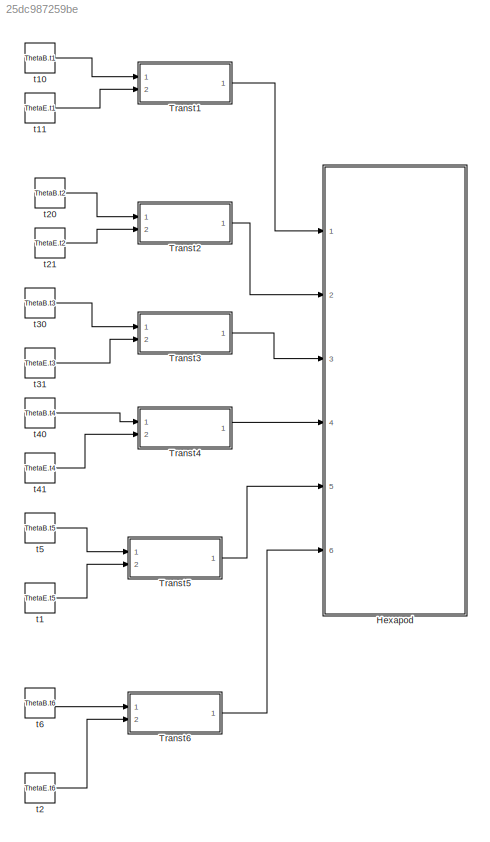
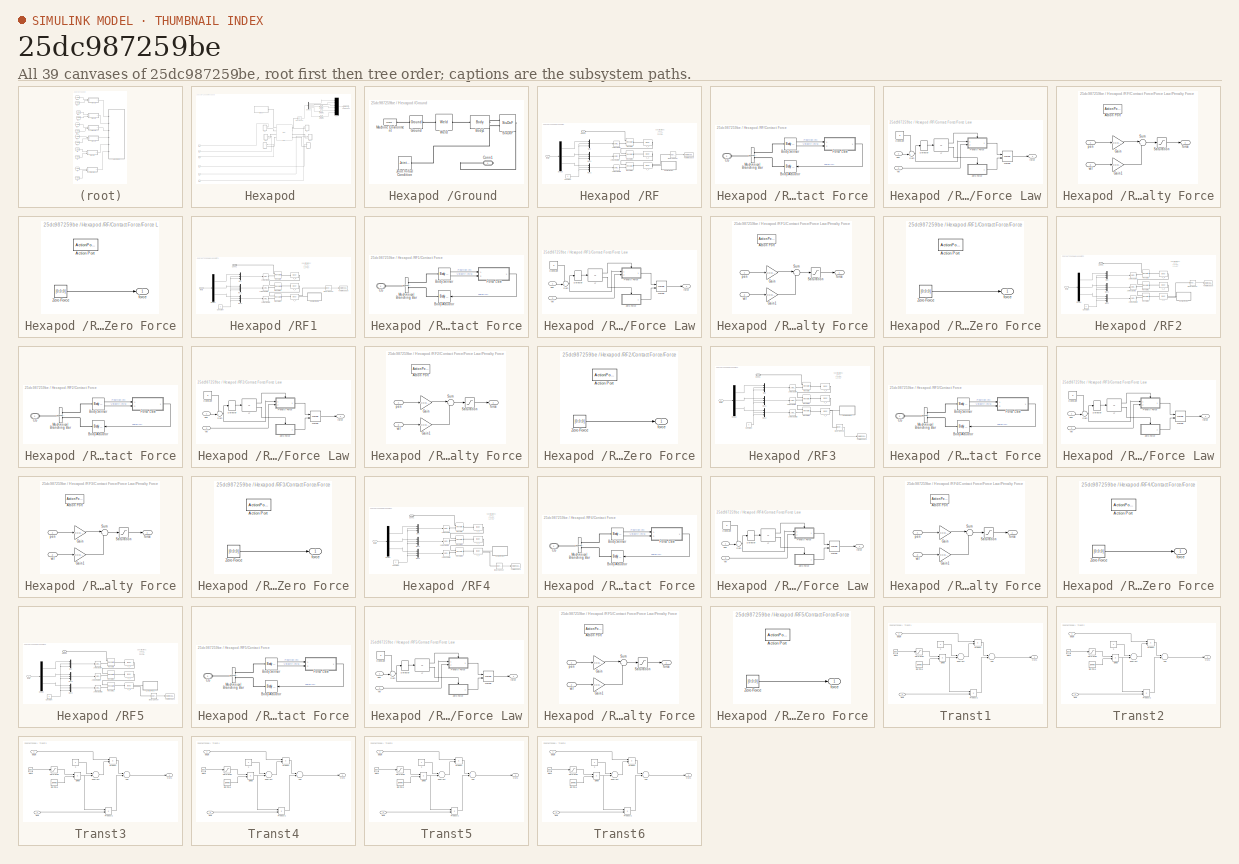
[diagram: thumbnail index - all 39 canvases of the model, root first then tree order]
MODEL slx_25dc987259be
KIND model
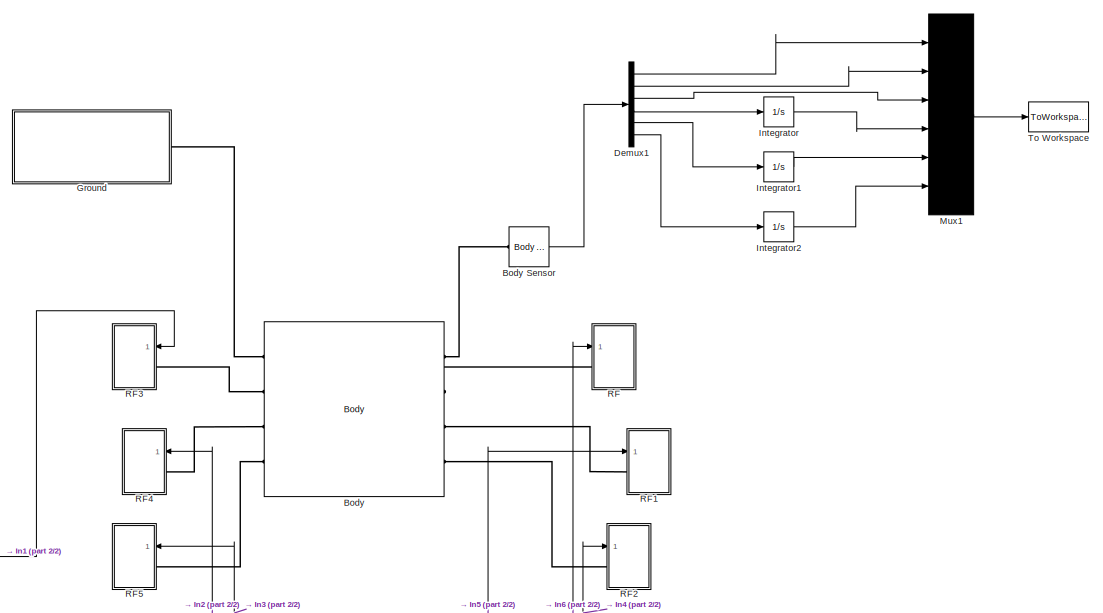
[diagram: Hexapod  - part 1/2, top right region]
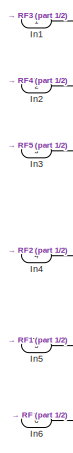
[diagram: Hexapod  - part 2/2, bottom left region]
BLOCK [SubSystem] Hexapod 
  FunctionWithSeparateData = off
  MaskHideContents = off
  MinAlgLoopOccurrences = off
  Opaque = off
  Ports = [6]
  PropExecContextOutsideSubsystem = off
  RTWSystemCode = Auto
  RequestExecContextInheritance = off
BLOCK [Reference] Hexapod /Body  REF=mblibv1/Bodies/Body
  AttachedToCS = CG
  BodyColor = [0.75686 0.86667 0.77647]
  BodyColorSelMode = COLORPALETTE
  CG = Left$CG$[0 0 0]$Adjoining$Adjoining$cm$[0 0 0]$Euler X-Y-Z$deg$WORLD$true$none
  CGPos = [0 0 0]
  CGRot = [0 0 0]
  CS0Pos = []
  CS0Rot = []
  CS10Pos = []
  CS10Rot = []
  CS11Pos = []
  CS11Rot = []
  CS12Pos = []
  CS12Rot = []
  CS13Pos = []
  CS13Rot = []
  CS14Pos = []
  CS14Rot = []
  CS15Pos = []
  CS15Rot = []
  CS16Pos = []
  CS16Rot = []
  CS17Pos = []
  CS17Rot = []
  CS18Pos = []
  CS18Rot = []
  CS19Pos = []
  CS19Rot = []
  CS1Pos = [6.1856 3.935 0]
  CS1Rot = [0 0 0]
  CS20Pos = []
  CS20Rot = []
  CS2Pos = [0 7.87 0]
  CS2Rot = [0 0 0]
  CS3Pos = [-6.1856 3.935 0]
  CS3Rot = [0 0 0]
  CS4Pos = [-6.1856 -3.935 0]
  CS4Rot = [0 0 0]
  CS5Pos = [0 -7.87 0]
  CS5Rot = [0 0 0]
  CS6Pos = [6.1856 -3.935 0]
  CS6Rot = [0 0 0]
  CS7Pos = [0 0 0]
  CS7Rot = [0 0 0]
  CS8Pos = []
  CS8Rot = []
  CS9Pos = []
  CS9Rot = []
  ClassName = Body
  Density = 1
  DensityUnits = kg/m^3
  DensityUse = false
  DialogClass = MechanicalBodyBlock
  GraphicsMode = CONVHULL
  Inertia = eye(3)
  InertiaUnits = kg*m^2
  LConnTagsString = CG|CS1|CS2|CS3
  Mass = 0.001
  MassUnits = kg
  Ports = [0, 0, 0, 0, 0, 4, 4]
  RConnTagsString = CS7|CS6|CS5|CS4
  Shape = Cylinder
  ShapeDims = [1 1]
  ShapeUnits = m
  ShapeUse = false
  SourceBlock = mblibv1/Bodies/Body
  SourceType = Body
  UpdateFromCAD = off
  WorkingFrames = Right$CS7$[0 0 0]$Adjoining$Adjoining$cm$[0 0 0]$Euler X-Y-Z$deg$WORLD$true$none#Right$CS6$[6.1856 -3.935 0]$CG$CG$cm$[0 0 0]$Euler X-Y-Z$deg$WORLD$true$none#Right$CS5$[0 -7.87 0]$CG$CG$cm$[0 0 0]$Euler X-Y-Z$deg$WORLD$true$none#Right$CS4$[-6.1856 -3.935 0]$CG$CG$cm$[0 0 0]$Euler X-Y-Z$deg$WORLD$true$none#Left$CS1$[6.1856 3.935 0]$CG$CG$cm$[0 0 0]$Euler X-Y-Z$deg$WORLD$true$none#Left$CS2$[0 7.87 0...<+126ch>
BLOCK [Reference] Hexapod /Body Sensor  REF=mblibv1/Sensors & 
Actuators/Body Sensor
  Acceleration = off
  AccelerationUnits = m/s^2
  ActiveIO = on
  Angle = on
  AngleUnits = deg
  ArcAcceleration = off
  ArcAccelerationUnits = deg/s^2
  ArcVelocity = on
  ArcVelocityUnits = deg/s
  ClassName = BodySensor
  CoordPosition = on
  CoordPositionUnits = m
  DialogClass = MechanicalSensorBlock
  Muxed = on
  OutputVector = [1]
  PhysicalDomain = Mechanical
  PortType = blob
  Ports = [0, 1, 0, 0, 0, 1]
  Pose = off
  Quaternion = on
  QuaternionDDT = off
  QuaternionDT = off
  QuaternionUnits = off
  ReferenceFrame = Absolute (World)
  SourceBlock = mblibv1/Sensors & \nActuators/Body Sensor
  SourceType = Body Sensor
  UpdateFromCAD = off
  Velocity = off
  VelocityUnits = m/s
  Width = 6
BLOCK [Demux] Hexapod /Demux1
  DisplayOption = bar
  Outputs = 6
  Ports = [1, 6]
BLOCK [SubSystem] Hexapod /Ground 
  FunctionWithSeparateData = off
  MaskHideContents = off
  MinAlgLoopOccurrences = off
  Opaque = off
  Ports = [0, 0, 0, 0, 0, 0, 1]
  PropExecContextOutsideSubsystem = off
  RTWSystemCode = Auto
  RequestExecContextInheritance = off
BLOCK [Reference] Hexapod /Ground /Body1  REF=mblibv1/Bodies/Body
  AttachedToCS = CG
  BodyColor = [0 0 1]
  BodyColorSelMode = COLORPALETTE
  CG = Left$CG$[0 0 0]$WORLD$WORLD$m$[0 0 0]$Euler X-Y-Z$deg$WORLD$true$none
  CGPos = [0 0 0]
  CGRot = [0 0 0]
  CS0Pos = []
  CS0Rot = []
  CS10Pos = []
  CS10Rot = []
  CS11Pos = []
  CS11Rot = []
  CS12Pos = []
  CS12Rot = []
  CS13Pos = []
  CS13Rot = []
  CS14Pos = []
  CS14Rot = []
  CS15Pos = []
  CS15Rot = []
  CS16Pos = []
  CS16Rot = []
  CS17Pos = []
  CS17Rot = []
  CS18Pos = []
  CS18Rot = []
  CS19Pos = []
  CS19Rot = []
  CS1Pos = [-.5 -.5 0]
  CS1Rot = [0 0 0]
  CS20Pos = []
  CS20Rot = []
  CS2Pos = [-.5 .5 0]
  CS2Rot = [0 0 0]
  CS3Pos = [.5 .5 0]
  CS3Rot = [0 0 0]
  CS4Pos = [.5 -.5 0]
  CS4Rot = [0 0 0]
  CS5Pos = [0 0 0]
  CS5Rot = [0 0 0]
  CS6Pos = []
  CS6Rot = []
  CS7Pos = []
  CS7Rot = []
  CS8Pos = []
  CS8Rot = []
  CS9Pos = []
  CS9Rot = []
  ClassName = Body
  Density = 1
  DensityUnits = kg/m^3
  DensityUse = false
  DialogClass = MechanicalBodyBlock
  GraphicsMode = CONVHULL
  Inertia = eye(3)
  InertiaUnits = kg*m^2
  LConnTagsString = CG
  Mass = 1000
  MassUnits = kg
  Ports = [0, 0, 0, 0, 0, 1, 1]
  RConnTagsString = CS5
  Shape = Cylinder
  ShapeDims = [1 1]
  ShapeUnits = m
  ShapeUse = false
  SourceBlock = mblibv1/Bodies/Body
  SourceType = Body
  UpdateFromCAD = off
  WorkingFrames = Right$CS5$[0 0 0]$WORLD$WORLD$m$[0 0 0]$Euler X-Y-Z$deg$WORLD$true$none#Left$CS1$[-.5 -.5 0]$CG$CG$m$[0 0 0]$Euler X-Y-Z$deg$WORLD$false$none#Left$CS4$[.5 -.5 0]$CG$CG$m$[0 0 0]$Euler X-Y-Z$deg$WORLD$false$none#Left$CS3$[.5 .5 0]$CG$CG$m$[0 0 0]$Euler X-Y-Z$deg$WORLD$false$none#Right$CS2$[-.5 .5 0]$CG$CG$m$[0 0 0]$Euler X-Y-Z$deg$WORLD$false$none
BLOCK [PMIOPort] Hexapod /Ground /Conn1
  Port = 1
  Side = Right
BLOCK [Reference] Hexapod /Ground /Ground  REF=mblibv1/Bodies/Ground
  ClassName = Ground
  CoordPosition = [0 0 0]
  CoordPositionUnits = m
  DialogClass = GroundBlock
  LeftPortType = env
  MachineId = [4 0]
  PhysicalDomain = Mechanical
  Ports = [0, 0, 0, 0, 0, 1, 1]
  RightPortType = workingframe
  ShowEnvPort = on
  SourceBlock = mblibv1/Bodies/Ground
  SourceType = Ground
  StateVectorMgrId = 3
  UpdateFromCAD = off
  UserDataPersistent = on
BLOCK [Reference] Hexapod /Ground /Joint Initial Condition  REF=mblibv1/Sensors & 
Actuators/Joint Initial Condition
  ClassName = InitialCondition
  DialogClass = InitialConditionBlock
  InitialConditions = P1$false$0$cm$deg$0$m/s$deg/s#P2$false$0$cm$deg$0$m/s$deg/s#P3$true$JointInit$cm$deg$0$m/s$deg/s#R1$false$0$m$deg$0$m/s$deg/s#R2$false$0$m$deg$0$m/s$deg/s#R3$false$0$m$deg$0$m/s$deg/s#S$false$0$m$deg$0$m/s$deg/s
  LeftPortType = blob
  P1PIC = 0
  P1VIC = 0
  P2PIC = 0
  P2VIC = 0
  P3PIC = JointInit
  P3VIC = 0
  PhysicalDomain = mechanical
  Ports = [0, 0, 0, 0, 0, 0, 1]
  R1PIC = 0
  R1VIC = 0
  R2PIC = 0
  R2VIC = 0
  R3PIC = 0
  R3VIC = 0
  RightPortType = blob
  SPIC = 0
  SVIC = 0
  SourceBlock = mblibv1/Sensors & \nActuators/Joint Initial Condition
  SourceType = Joint Initial Condition
  UpdateFromCAD = off
BLOCK [Reference] Hexapod /Ground /Machine Environment  REF=mblibv1/Bodies/Machine
Environment
  AnalysisType = Forward dynamics
  AngularAssemblyTolerance = 1e-3
  AngularAssemblyToleranceUnits = rad
  BodyColorSelMode = Use model default
  BodyVisualizationType = Use model default body geometries
  ClassName = Environment
  ConstraintAbsTolerance = 1e-4
  ConstraintRelTolerance = 1e-4
  ConstraintSolverType = Stabilizing
  DefaultBodyColor = [1 0 0]
  DialogTemplateClass = MECH.MachineEnvironment
  Dimensionality = Auto-detect
  Gravity = [0  0 -9.81]
  GravityAsSignal = off
  GravityUnits = m/s^2
  LinearAssemblyTolerance = 1e-3
  LinearAssemblyToleranceUnits = m
  PerturbationSize = 1e-5
  PhysicalDomain = Mechanical
  PortType = env
  Ports = [0, 0, 0, 0, 0, 0, 1]
  RedundancyAnalysisTolerance = 1e-14
  RedundancyAnalysisToleranceType = Automatically select tolerance
  SourceBlock = mblibv1/Bodies/Machine\nEnvironment
  SourceType = Machine Environment
  StatePerturbationType = Fixed
  SyncWhenCopied = off
  UseRobustSingularityHandling = off
  VisualizeMachine = on
BLOCK [Reference] Hexapod /Ground /Six-DoF  REF=mblibv1/Joints/Six-DoF
  ClassName = Joint
  CutJoint = off
  DialogClass = JointBlock
  LConnTagsString = __newl0|SA1
  MarkAsCut = off
  NumSAPorts = 1
  P1Axis = [1 0 0]
  P2Axis = [0 1 0]
  P3Axis = [0 0 1]
  Ports = [0, 0, 0, 0, 0, 2, 1]
  PrimitiveProps = P1$World$[1 0 0]$prismatic#P2$World$[0 1 0]$prismatic#P3$World$[0 0 1]$prismatic#S$World$[0 0 0]$spherical
  Primitives = prismatic_prismatic
  RConnTagsString = __newr0
  SAxis = [0 0 0]
  SourceBlock = mblibv1/Joints/Six-DoF
  SourceType = Six-DoF
  UpdateFromCAD = off
BLOCK [Reference] Hexapod /Ground /Weld  REF=mblibv1/Joints/Weld
  ClassName = Joint
  CutJoint = off
  DialogClass = JointBlock
  LConnTagsString = __newl0
  MarkAsCut = off
  NumSAPorts = 0
  Ports = [0, 0, 0, 0, 0, 1, 1]
  PrimitiveProps = W$WORLD$[0 0 0]$weld
  Primitives = weld
  RConnTagsString = __newr0
  SourceBlock = mblibv1/Joints/Weld
  SourceType = Weld
  UpdateFromCAD = off
  WAxis = [0 0 0]
BLOCK [Inport] Hexapod /In1
  IconDisplay = Port number
BLOCK [Inport] Hexapod /In2
  IconDisplay = Port number
  Port = 2
BLOCK [Inport] Hexapod /In3
  IconDisplay = Port number
  Port = 3
BLOCK [Inport] Hexapod /In4
  IconDisplay = Port number
  Port = 4
BLOCK [Inport] Hexapod /In5
  IconDisplay = Port number
  Port = 5
BLOCK [Inport] Hexapod /In6
  IconDisplay = Port number
  Port = 6
BLOCK [Integrator] Hexapod /Integrator
  Ports = [1, 1]
BLOCK [Integrator] Hexapod /Integrator1
  Ports = [1, 1]
BLOCK [Integrator] Hexapod /Integrator2
  Ports = [1, 1]
BLOCK [Mux] Hexapod /Mux1
  DisplayOption = bar
  Inputs = 6
  Ports = [6, 1]
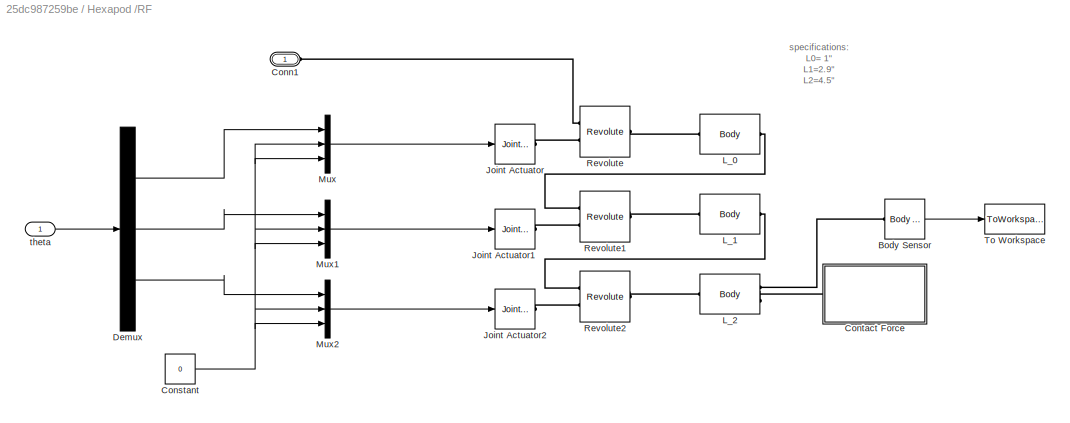
BLOCK [SubSystem] Hexapod /RF
  FunctionWithSeparateData = off
  MaskHideContents = off
  MinAlgLoopOccurrences = off
  Opaque = off
  Ports = [1, 0, 0, 0, 0, 1]
  PropExecContextOutsideSubsystem = off
  RTWSystemCode = Auto
  RequestExecContextInheritance = off
BLOCK [Reference] Hexapod /RF/Body Sensor  REF=mblibv1/Sensors & 
Actuators/Body Sensor
  Acceleration = off
  AccelerationUnits = m/s^2
  ActiveIO = on
  Angle = on
  AngleUnits = deg
  ArcAcceleration = off
  ArcAccelerationUnits = deg/s^2
  ArcVelocity = off
  ArcVelocityUnits = deg/s
  ClassName = BodySensor
  CoordPosition = on
  CoordPositionUnits = m
  DialogClass = MechanicalSensorBlock
  Muxed = on
  OutputVector = [1]
  PhysicalDomain = Mechanical
  PortType = blob
  Ports = [0, 1, 0, 0, 0, 1]
  Pose = off
  Quaternion = on
  QuaternionDDT = off
  QuaternionDT = off
  QuaternionUnits = off
  ReferenceFrame = Absolute (World)
  SourceBlock = mblibv1/Sensors & \nActuators/Body Sensor
  SourceType = Body Sensor
  UpdateFromCAD = off
  Velocity = off
  VelocityUnits = m/s
  Width = 3
BLOCK [PMIOPort] Hexapod /RF/Conn1
  Port = 1
  Side = Left
BLOCK [Constant] Hexapod /RF/Constant
  Value = 0
BLOCK [SubSystem] Hexapod /RF/Contact Force
  FunctionWithSeparateData = off
  MaskHideContents = off
  MinAlgLoopOccurrences = off
  Opaque = off
  Ports = [0, 0, 0, 0, 0, 1]
  PropExecContextOutsideSubsystem = off
  RTWSystemCode = Auto
  RequestExecContextInheritance = off
BLOCK [Reference] Hexapod /RF/Contact Force/Body Actuator  REF=mblibv1/Sensors & 
Actuators/Body Actuator
  AccelerationUnits = m/s^2
  ActiveIO = on
  ActuationStyle = Force
  Angle = off
  AngleUnits = deg
  ArcAccelerationUnits = deg/s^2
  ArcVelocityUnits = deg/s
  ClassName = BodyActuatorForceTorque
  CoordPosition = on
  CoordPositionUnits = m
  DialogClass = MechanicalActuatorBlock
  Force = on
  ForceUnits = N
  PhysicalDomain = Mechanical
  PortType = blob
  Ports = [1, 0, 0, 0, 0, 0, 1]
  ReferenceFrame = Absolute (INERTIAL)
  SourceBlock = mblibv1/Sensors & \nActuators/Body Actuator
  SourceType = Body Actuator
  Torque = off
  TorqueUnits = N-m
  UpdateFromCAD = off
  VelocityUnits = m/s
  Width = 3
BLOCK [Reference] Hexapod /RF/Contact Force/Body Sensor  REF=mblibv1/Sensors & 
Actuators/Body Sensor
  Acceleration = off
  AccelerationUnits = m/s^2
  ActiveIO = on
  Angle = on
  AngleUnits = deg
  ArcAcceleration = off
  ArcAccelerationUnits = deg/s^2
  ArcVelocity = off
  ArcVelocityUnits = deg/s
  ClassName = BodySensor
  CoordPosition = on
  CoordPositionUnits = m
  DialogClass = MechanicalSensorBlock
  Muxed = off
  OutputVector = [ 3 3 ]
  PhysicalDomain = Mechanical
  PortType = blob
  Ports = [0, 2, 0, 0, 0, 1]
  Pose = off
  Quaternion = on
  QuaternionDDT = off
  QuaternionDT = off
  QuaternionUnits = off
  ReferenceFrame = Absolute (World)
  SourceBlock = mblibv1/Sensors & \nActuators/Body Sensor
  SourceType = Body Sensor
  UpdateFromCAD = off
  Velocity = on
  VelocityUnits = m/s
  Width = 6
BLOCK [PMIOPort] Hexapod /RF/Contact Force/CG
  Port = 1
  Side = Left
  Tag = PMCPort
BLOCK [SubSystem] Hexapod /RF/Contact Force/Force Law
  FunctionWithSeparateData = off
  MaskHideContents = off
  MinAlgLoopOccurrences = off
  Opaque = off
  Ports = [2, 1]
  PropExecContextOutsideSubsystem = off
  RTWSystemCode = Auto
  RequestExecContextInheritance = off
BLOCK [Constant] Hexapod /RF/Contact Force/Force Law/Constant
  Value = 0
BLOCK [If] Hexapod /RF/Contact Force/Force Law/If
  IfExpression = u1 < 0
  Ports = [1, 2]
BLOCK [Merge] Hexapod /RF/Contact Force/Force Law/Merge
  InitialOutput = 0
  InputPortOffsets = 0
  Ports = [2, 1]
BLOCK [SubSystem] Hexapod /RF/Contact Force/Force Law/Penalty Force
  FunctionWithSeparateData = off
  MaskHideContents = off
  MinAlgLoopOccurrences = off
  Opaque = off
  Ports = [2, 1, 0, 0, 0, 0, 0, 1]
  PropExecContextOutsideSubsystem = off
  RTWSystemCode = Auto
  RequestExecContextInheritance = off
  TreatAsAtomicUnit = on
BLOCK [ActionPort] Hexapod /RF/Contact Force/Force Law/Penalty Force/Action Port
  ActionType = then
BLOCK [Gain] Hexapod /RF/Contact Force/Force Law/Penalty Force/Gain
  Gain = [0 0 0;0 0 0;0 0 Kgain]
  Multiplication = Matrix(K*u)
BLOCK [Gain] Hexapod /RF/Contact Force/Force Law/Penalty Force/Gain1
  Gain = [0 0 0;0 0 0;0 0 Dgain]
  Multiplication = Matrix(K*u)
BLOCK [Saturate] Hexapod /RF/Contact Force/Force Law/Penalty Force/Saturation
  InputPortMap = u0
  LowerLimit = 0
  Ports = [1, 1]
  UpperLimit = inf
BLOCK [Sum] Hexapod /RF/Contact Force/Force Law/Penalty Force/Sum
  IconShape = round
  InputSameDT = off
  Inputs = |++
  OutDataTypeStr = Inherit: Inherit via internal rule
  Ports = [2, 1]
BLOCK [Outport] Hexapod /RF/Contact Force/Force Law/Penalty Force/force
  IconDisplay = Port number
  InitialOutput = 0
BLOCK [Inport] Hexapod /RF/Contact Force/Force Law/Penalty Force/pen
  IconDisplay = Port number
BLOCK [Inport] Hexapod /RF/Contact Force/Force Law/Penalty Force/vel
  IconDisplay = Port number
  Port = 2
BLOCK [Selector] Hexapod /RF/Contact Force/Force Law/Selector
  IndexOptions = Index vector (dialog)
  Indices = [3]
  InputPortWidth = 3
  OutputSizes = 1
  Ports = [1, 1]
BLOCK [Sum] Hexapod /RF/Contact Force/Force Law/Sum
  IconShape = round
  InputSameDT = off
  Inputs = -+|
  OutDataTypeStr = Inherit: Inherit via internal rule
  Ports = [2, 1]
BLOCK [SubSystem] Hexapod /RF/Contact Force/Force Law/Zero Force
  FunctionWithSeparateData = off
  MaskHideContents = off
  MinAlgLoopOccurrences = off
  Opaque = off
  Ports = [0, 1, 0, 0, 0, 0, 0, 1]
  PropExecContextOutsideSubsystem = off
  RTWSystemCode = Auto
  RequestExecContextInheritance = off
  TreatAsAtomicUnit = on
BLOCK [ActionPort] Hexapod /RF/Contact Force/Force Law/Zero Force/Action Port
  ActionType = else
BLOCK [Constant] Hexapod /RF/Contact Force/Force Law/Zero Force/Zero Force
  Value = [0;0;0]
BLOCK [Outport] Hexapod /RF/Contact Force/Force Law/Zero Force/force
  IconDisplay = Port number
  InitialOutput = 0
BLOCK [Outport] Hexapod /RF/Contact Force/Force Law/force
  IconDisplay = Port number
BLOCK [Inport] Hexapod /RF/Contact Force/Force Law/pos
  IconDisplay = Port number
BLOCK [Inport] Hexapod /RF/Contact Force/Force Law/vel
  IconDisplay = Port number
  Port = 2
BLOCK [Reference] Hexapod /RF/Contact Force/Mechanical Branching Bar  REF=mblibv1/Utilities/Mechanical
Branching
Bar
  ClassName = BranchingBar
  DialogClass = MechanicalBranchingBarBlock
  LConnTagsString = _newl0
  NumSAPorts = 2
  Ports = [0, 0, 0, 0, 0, 1, 2]
  RConnTagsString = SA0|SA1
  SourceBlock = mblibv1/Utilities/Mechanical\nBranching\nBar
  SourceType = Mechanical Branching Bar
  UpdateFromCAD = off
BLOCK [Demux] Hexapod /RF/Demux
  DisplayOption = bar
  Outputs = 3
  Ports = [1, 3]
BLOCK [Reference] Hexapod /RF/Joint Actuator  REF=mblibv1/Sensors & 
Actuators/Joint Actuator
  AccelerationUnits = m/s^2
  ActiveIO = on
  ActuationStyle = Motion
  AngleUnits = rad
  ArcAccelerationUnits = deg/s^2
  ArcVelocityUnits = rad/s
  ClassName = JointActuator
  CoordPositionUnits = m
  DialogClass = MechanicalActuatorBlock
  ForceUnits = N
  PhysicalDomain = Mechanical
  PortType = blob
  Ports = [1, 0, 0, 0, 0, 0, 1]
  Primitive = R1
  ReferenceFrame = Absolute (World)
  SourceBlock = mblibv1/Sensors & \nActuators/Joint Actuator
  SourceType = Joint Actuator
  TorqueUnits = N*m
  UpdateFromCAD = off
  VelocityUnits = m/s
  Width = 3
BLOCK [Reference] Hexapod /RF/Joint Actuator1  REF=mblibv1/Sensors & 
Actuators/Joint Actuator
  AccelerationUnits = m/s^2
  ActiveIO = on
  ActuationStyle = Motion
  AngleUnits = rad
  ArcAccelerationUnits = deg/s^2
  ArcVelocityUnits = deg/s
  ClassName = JointActuator
  CoordPositionUnits = m
  DialogClass = MechanicalActuatorBlock
  ForceUnits = N
  PhysicalDomain = Mechanical
  PortType = blob
  Ports = [1, 0, 0, 0, 0, 0, 1]
  Primitive = R1
  ReferenceFrame = Absolute (World)
  SourceBlock = mblibv1/Sensors & \nActuators/Joint Actuator
  SourceType = Joint Actuator
  TorqueUnits = N*m
  UpdateFromCAD = off
  VelocityUnits = m/s
  Width = 3
BLOCK [Reference] Hexapod /RF/Joint Actuator2  REF=mblibv1/Sensors & 
Actuators/Joint Actuator
  AccelerationUnits = m/s^2
  ActiveIO = on
  ActuationStyle = Motion
  AngleUnits = rad
  ArcAccelerationUnits = deg/s^2
  ArcVelocityUnits = deg/s
  ClassName = JointActuator
  CoordPositionUnits = m
  DialogClass = MechanicalActuatorBlock
  ForceUnits = N
  PhysicalDomain = Mechanical
  PortType = blob
  Ports = [1, 0, 0, 0, 0, 0, 1]
  Primitive = R1
  ReferenceFrame = Absolute (World)
  SourceBlock = mblibv1/Sensors & \nActuators/Joint Actuator
  SourceType = Joint Actuator
  TorqueUnits = N*m
  UpdateFromCAD = off
  VelocityUnits = m/s
  Width = 3
BLOCK [Reference] Hexapod /RF/L_0  REF=mblibv1/Bodies/Body
  AttachedToCS = CG
  BodyColor = [1 0 0]
  BodyColorSelMode = MACHINE_DEFAULT
  CG = Left$CG$[1.25 0 0]$CS1$CS1$cm$[0 0 0]$Euler X-Y-Z$deg$WORLD$false$none
  CGPos = [1.25 0 0]
  CGRot = [0 0 0]
  CS0Pos = []
  CS0Rot = []
  CS10Pos = []
  CS10Rot = []
  CS11Pos = []
  CS11Rot = []
  CS12Pos = []
  CS12Rot = []
  CS13Pos = []
  CS13Rot = []
  CS14Pos = []
  CS14Rot = []
  CS15Pos = []
  CS15Rot = []
  CS16Pos = []
  CS16Rot = []
  CS17Pos = []
  CS17Rot = []
  CS18Pos = []
  CS18Rot = []
  CS19Pos = []
  CS19Rot = []
  CS1Pos = [0 0 0]
  CS1Rot = [0 0 0]
  CS20Pos = []
  CS20Rot = []
  CS2Pos = [2.5 0 0]
  CS2Rot = [0 0 0]
  CS3Pos = []
  CS3Rot = []
  CS4Pos = []
  CS4Rot = []
  CS5Pos = []
  CS5Rot = []
  CS6Pos = []
  CS6Rot = []
  CS7Pos = []
  CS7Rot = []
  CS8Pos = []
  CS8Rot = []
  CS9Pos = []
  CS9Rot = []
  ClassName = Body
  Density = 1
  DensityUnits = kg/m^3
  DensityUse = false
  DialogClass = MechanicalBodyBlock
  GraphicsMode = MACHINE_DEFAULT
  Inertia = eye(3)
  InertiaUnits = kg*m^2
  LConnTagsString = CS1
  Mass = .1
  MassUnits = kg
  Ports = [0, 0, 0, 0, 0, 1, 1]
  RConnTagsString = CS2
  Shape = Cylinder
  ShapeDims = [1 1]
  ShapeUnits = m
  ShapeUse = false
  SourceBlock = mblibv1/Bodies/Body
  SourceType = Body
  UpdateFromCAD = off
  WorkingFrames = Left$CS1$[0 0 0]$Adjoining$Adjoining$cm$[0 0 0]$Euler X-Y-Z$deg$WORLD$true$none#Right$CS2$[2.5 0 0]$CS1$CS1$cm$[0 0 0]$Euler X-Y-Z$deg$WORLD$true$none
BLOCK [Reference] Hexapod /RF/L_1  REF=mblibv1/Bodies/Body
  AttachedToCS = CG
  BodyColor = [1 0 0]
  BodyColorSelMode = MACHINE_DEFAULT
  CG = Left$CG$[3.7 0 0]$CS1$CS1$cm$[0 0 0]$Euler X-Y-Z$deg$WORLD$false$none
  CGPos = [3.7 0 0]
  CGRot = [0 0 0]
  CS0Pos = []
  CS0Rot = []
  CS10Pos = []
  CS10Rot = []
  CS11Pos = []
  CS11Rot = []
  CS12Pos = []
  CS12Rot = []
  CS13Pos = []
  CS13Rot = []
  CS14Pos = []
  CS14Rot = []
  CS15Pos = []
  CS15Rot = []
  CS16Pos = []
  CS16Rot = []
  CS17Pos = []
  CS17Rot = []
  CS18Pos = []
  CS18Rot = []
  CS19Pos = []
  CS19Rot = []
  CS1Pos = [0 0 0]
  CS1Rot = [0 0 0]
  CS20Pos = []
  CS20Rot = []
  CS2Pos = [7.4 0 0]
  CS2Rot = [0 0 0]
  CS3Pos = []
  CS3Rot = []
  CS4Pos = []
  CS4Rot = []
  CS5Pos = []
  CS5Rot = []
  CS6Pos = []
  CS6Rot = []
  CS7Pos = []
  CS7Rot = []
  CS8Pos = []
  CS8Rot = []
  CS9Pos = []
  CS9Rot = []
  ClassName = Body
  Density = 1
  DensityUnits = kg/m^3
  DensityUse = false
  DialogClass = MechanicalBodyBlock
  GraphicsMode = MACHINE_DEFAULT
  Inertia = eye(3)
  InertiaUnits = kg*m^2
  LConnTagsString = CS1
  Mass = .1
  MassUnits = kg
  Ports = [0, 0, 0, 0, 0, 1, 1]
  RConnTagsString = CS2
  Shape = Cylinder
  ShapeDims = [1 1]
  ShapeUnits = m
  ShapeUse = false
  SourceBlock = mblibv1/Bodies/Body
  SourceType = Body
  UpdateFromCAD = off
  WorkingFrames = Left$CS1$[0 0 0]$Adjoining$Adjoining$cm$[0 0 0]$Euler X-Y-Z$deg$WORLD$true$none#Right$CS2$[7.4 0 0]$CS1$CS1$cm$[0 0 0]$Euler X-Y-Z$deg$WORLD$true$none
BLOCK [Reference] Hexapod /RF/L_2  REF=mblibv1/Bodies/Body
  AttachedToCS = CG
  BodyColor = [1 0 0]
  BodyColorSelMode = MACHINE_DEFAULT
  CG = Left$CG$[5.7 0 0]$CS1$CS1$cm$[0 0 0]$Euler X-Y-Z$deg$WORLD$false$none
  CGPos = [5.7 0 0]
  CGRot = [0 0 0]
  CS0Pos = []
  CS0Rot = []
  CS10Pos = []
  CS10Rot = []
  CS11Pos = []
  CS11Rot = []
  CS12Pos = []
  CS12Rot = []
  CS13Pos = []
  CS13Rot = []
  CS14Pos = []
  CS14Rot = []
  CS15Pos = []
  CS15Rot = []
  CS16Pos = []
  CS16Rot = []
  CS17Pos = []
  CS17Rot = []
  CS18Pos = []
  CS18Rot = []
  CS19Pos = []
  CS19Rot = []
  CS1Pos = [0 0 0]
  CS1Rot = [0 0 0]
  CS20Pos = []
  CS20Rot = []
  CS2Pos = [11.4 0 0]
  CS2Rot = [0 0 0]
  CS3Pos = [11.4 0 0]
  CS3Rot = [0 0 0]
  CS4Pos = []
  CS4Rot = []
  CS5Pos = []
  CS5Rot = []
  CS6Pos = []
  CS6Rot = []
  CS7Pos = []
  CS7Rot = []
  CS8Pos = []
  CS8Rot = []
  CS9Pos = []
  CS9Rot = []
  ClassName = Body
  Density = 1
  DensityUnits = kg/m^3
  DensityUse = false
  DialogClass = MechanicalBodyBlock
  GraphicsMode = MACHINE_DEFAULT
  Inertia = eye(3)
  InertiaUnits = kg*m^2
  LConnTagsString = CS1
  Mass = .1
  MassUnits = kg
  Ports = [0, 0, 0, 0, 0, 1, 2]
  RConnTagsString = CS3|CS2
  Shape = Cylinder
  ShapeDims = [1 1]
  ShapeUnits = m
  ShapeUse = false
  SourceBlock = mblibv1/Bodies/Body
  SourceType = Body
  UpdateFromCAD = off
  WorkingFrames = Right$CS3$[11.4 0 0]$CS1$CS1$cm$[0 0 0]$Euler X-Y-Z$deg$WORLD$true$none#Left$CS1$[0 0 0]$Adjoining$Adjoining$cm$[0 0 0]$Euler X-Y-Z$deg$WORLD$true$none#Right$CS2$[11.4 0 0]$CS1$CS1$cm$[0 0 0]$Euler X-Y-Z$deg$WORLD$true$none  <repeated x3 — deduplicated; at blocks: L_2>
BLOCK [Mux] Hexapod /RF/Mux
  DisplayOption = bar
  Inputs = 3
  Ports = [3, 1]
BLOCK [Mux] Hexapod /RF/Mux1
  DisplayOption = bar
  Inputs = 3
  Ports = [3, 1]
BLOCK [Mux] Hexapod /RF/Mux2
  DisplayOption = bar
  Inputs = 3
  Ports = [3, 1]
BLOCK [Reference] Hexapod /RF/Revolute  REF=mblibv1/Joints/Revolute
  ClassName = Joint
  CutJoint = off
  DialogClass = JointBlock
  LConnTagsString = __newl0|SA1
  MarkAsCut = off
  NumSAPorts = 1
  Ports = [0, 0, 0, 0, 0, 2, 1]
  PrimitiveProps = R1$World$[0 0 1]$revolute
  Primitives = prismatic
  R1Axis = [0 0 1]
  RConnTagsString = __newr0
  SourceBlock = mblibv1/Joints/Revolute
  SourceType = Revolute
  UpdateFromCAD = off
BLOCK [Reference] Hexapod /RF/Revolute1  REF=mblibv1/Joints/Revolute
  ClassName = Joint
  CutJoint = off
  DialogClass = JointBlock
  LConnTagsString = __newl0|SA1
  MarkAsCut = off
  NumSAPorts = 1
  Ports = [0, 0, 0, 0, 0, 2, 1]
  PrimitiveProps = R1$Base$[0 1 0]$revolute
  Primitives = prismatic
  R1Axis = [0 1 0]
  RConnTagsString = __newr0
  SourceBlock = mblibv1/Joints/Revolute
  SourceType = Revolute
  UpdateFromCAD = off
BLOCK [Reference] Hexapod /RF/Revolute2  REF=mblibv1/Joints/Revolute
  ClassName = Joint
  CutJoint = off
  DialogClass = JointBlock
  LConnTagsString = __newl0|SA1
  MarkAsCut = off
  NumSAPorts = 1
  Ports = [0, 0, 0, 0, 0, 2, 1]
  PrimitiveProps = R1$Base$[0 1 0]$revolute
  Primitives = prismatic
  R1Axis = [0 1 0]
  RConnTagsString = __newr0
  SourceBlock = mblibv1/Joints/Revolute
  SourceType = Revolute
  UpdateFromCAD = off
BLOCK [ToWorkspace] Hexapod /RF/To Workspace
  MaxDataPoints = inf
  Ports = [1]
  SampleTime = -1
  VariableName = LeTi6
BLOCK [Inport] Hexapod /RF/theta 
  IconDisplay = Port number
BLOCK [SubSystem] Hexapod /RF1
  FunctionWithSeparateData = off
  MaskHideContents = off
  MinAlgLoopOccurrences = off
  Opaque = off
  Ports = [1, 0, 0, 0, 0, 1]
  PropExecContextOutsideSubsystem = off
  RTWSystemCode = Auto
  RequestExecContextInheritance = off
BLOCK [Reference] Hexapod /RF1/Body Sensor  REF=mblibv1/Sensors & 
Actuators/Body Sensor
  Acceleration = off
  AccelerationUnits = m/s^2
  ActiveIO = on
  Angle = on
  AngleUnits = deg
  ArcAcceleration = off
  ArcAccelerationUnits = deg/s^2
  ArcVelocity = off
  ArcVelocityUnits = deg/s
  ClassName = BodySensor
  CoordPosition = on
  CoordPositionUnits = m
  DialogClass = MechanicalSensorBlock
  Muxed = on
  OutputVector = [1]
  PhysicalDomain = Mechanical
  PortType = blob
  Ports = [0, 1, 0, 0, 0, 1]
  Pose = off
  Quaternion = on
  QuaternionDDT = off
  QuaternionDT = off
  QuaternionUnits = off
  ReferenceFrame = Absolute (World)
  SourceBlock = mblibv1/Sensors & \nActuators/Body Sensor
  SourceType = Body Sensor
  UpdateFromCAD = off
  Velocity = off
  VelocityUnits = m/s
  Width = 3
BLOCK [PMIOPort] Hexapod /RF1/Conn1
  Port = 1
  Side = Left
BLOCK [Constant] Hexapod /RF1/Constant
  Value = 0
BLOCK [SubSystem] Hexapod /RF1/Contact Force
  FunctionWithSeparateData = off
  MaskHideContents = off
  MinAlgLoopOccurrences = off
  Opaque = off
  Ports = [0, 0, 0, 0, 0, 1]
  PropExecContextOutsideSubsystem = off
  RTWSystemCode = Auto
  RequestExecContextInheritance = off
BLOCK [Reference] Hexapod /RF1/Contact Force/Body Actuator  REF=mblibv1/Sensors & 
Actuators/Body Actuator
  AccelerationUnits = m/s^2
  ActiveIO = on
  ActuationStyle = Force
  Angle = off
  AngleUnits = deg
  ArcAccelerationUnits = deg/s^2
  ArcVelocityUnits = deg/s
  ClassName = BodyActuatorForceTorque
  CoordPosition = on
  CoordPositionUnits = m
  DialogClass = MechanicalActuatorBlock
  Force = on
  ForceUnits = N
  PhysicalDomain = Mechanical
  PortType = blob
  Ports = [1, 0, 0, 0, 0, 0, 1]
  ReferenceFrame = Absolute (INERTIAL)
  SourceBlock = mblibv1/Sensors & \nActuators/Body Actuator
  SourceType = Body Actuator
  Torque = off
  TorqueUnits = N-m
  UpdateFromCAD = off
  VelocityUnits = m/s
  Width = 3
BLOCK [Reference] Hexapod /RF1/Contact Force/Body Sensor  REF=mblibv1/Sensors & 
Actuators/Body Sensor
  Acceleration = off
  AccelerationUnits = m/s^2
  ActiveIO = on
  Angle = on
  AngleUnits = deg
  ArcAcceleration = off
  ArcAccelerationUnits = deg/s^2
  ArcVelocity = off
  ArcVelocityUnits = deg/s
  ClassName = BodySensor
  CoordPosition = on
  CoordPositionUnits = m
  DialogClass = MechanicalSensorBlock
  Muxed = off
  OutputVector = [ 3 3 ]
  PhysicalDomain = Mechanical
  PortType = blob
  Ports = [0, 2, 0, 0, 0, 1]
  Pose = off
  Quaternion = on
  QuaternionDDT = off
  QuaternionDT = off
  QuaternionUnits = off
  ReferenceFrame = Absolute (World)
  SourceBlock = mblibv1/Sensors & \nActuators/Body Sensor
  SourceType = Body Sensor
  UpdateFromCAD = off
  Velocity = on
  VelocityUnits = m/s
  Width = 6
BLOCK [PMIOPort] Hexapod /RF1/Contact Force/CG
  Port = 1
  Side = Left
  Tag = PMCPort
BLOCK [SubSystem] Hexapod /RF1/Contact Force/Force Law
  FunctionWithSeparateData = off
  MaskHideContents = off
  MinAlgLoopOccurrences = off
  Opaque = off
  Ports = [2, 1]
  PropExecContextOutsideSubsystem = off
  RTWSystemCode = Auto
  RequestExecContextInheritance = off
BLOCK [Constant] Hexapod /RF1/Contact Force/Force Law/Constant
  Value = 0
BLOCK [If] Hexapod /RF1/Contact Force/Force Law/If
  IfExpression = u1 < 0
  Ports = [1, 2]
BLOCK [Merge] Hexapod /RF1/Contact Force/Force Law/Merge
  InitialOutput = 0
  InputPortOffsets = 0
  Ports = [2, 1]
BLOCK [SubSystem] Hexapod /RF1/Contact Force/Force Law/Penalty Force
  FunctionWithSeparateData = off
  MaskHideContents = off
  MinAlgLoopOccurrences = off
  Opaque = off
  Ports = [2, 1, 0, 0, 0, 0, 0, 1]
  PropExecContextOutsideSubsystem = off
  RTWSystemCode = Auto
  RequestExecContextInheritance = off
  TreatAsAtomicUnit = on
BLOCK [ActionPort] Hexapod /RF1/Contact Force/Force Law/Penalty Force/Action Port
  ActionType = then
BLOCK [Gain] Hexapod /RF1/Contact Force/Force Law/Penalty Force/Gain
  Gain = [0 0 0;0 0 0;0 0 Kgain]
  Multiplication = Matrix(K*u)
BLOCK [Gain] Hexapod /RF1/Contact Force/Force Law/Penalty Force/Gain1
  Gain = [0 0 0;0 0 0;0 0 Dgain]
  Multiplication = Matrix(K*u)
BLOCK [Saturate] Hexapod /RF1/Contact Force/Force Law/Penalty Force/Saturation
  InputPortMap = u0
  LowerLimit = 0
  Ports = [1, 1]
  UpperLimit = inf
BLOCK [Sum] Hexapod /RF1/Contact Force/Force Law/Penalty Force/Sum
  IconShape = round
  InputSameDT = off
  Inputs = |++
  OutDataTypeStr = Inherit: Inherit via internal rule
  Ports = [2, 1]
BLOCK [Outport] Hexapod /RF1/Contact Force/Force Law/Penalty Force/force
  IconDisplay = Port number
  InitialOutput = 0
BLOCK [Inport] Hexapod /RF1/Contact Force/Force Law/Penalty Force/pen
  IconDisplay = Port number
BLOCK [Inport] Hexapod /RF1/Contact Force/Force Law/Penalty Force/vel
  IconDisplay = Port number
  Port = 2
BLOCK [Selector] Hexapod /RF1/Contact Force/Force Law/Selector
  IndexOptions = Index vector (dialog)
  Indices = [3]
  InputPortWidth = 3
  OutputSizes = 1
  Ports = [1, 1]
BLOCK [Sum] Hexapod /RF1/Contact Force/Force Law/Sum
  IconShape = round
  InputSameDT = off
  Inputs = -+|
  OutDataTypeStr = Inherit: Inherit via internal rule
  Ports = [2, 1]
BLOCK [SubSystem] Hexapod /RF1/Contact Force/Force Law/Zero Force
  FunctionWithSeparateData = off
  MaskHideContents = off
  MinAlgLoopOccurrences = off
  Opaque = off
  Ports = [0, 1, 0, 0, 0, 0, 0, 1]
  PropExecContextOutsideSubsystem = off
  RTWSystemCode = Auto
  RequestExecContextInheritance = off
  TreatAsAtomicUnit = on
BLOCK [ActionPort] Hexapod /RF1/Contact Force/Force Law/Zero Force/Action Port
  ActionType = else
BLOCK [Constant] Hexapod /RF1/Contact Force/Force Law/Zero Force/Zero Force
  Value = [0;0;0]
BLOCK [Outport] Hexapod /RF1/Contact Force/Force Law/Zero Force/force
  IconDisplay = Port number
  InitialOutput = 0
BLOCK [Outport] Hexapod /RF1/Contact Force/Force Law/force
  IconDisplay = Port number
BLOCK [Inport] Hexapod /RF1/Contact Force/Force Law/pos
  IconDisplay = Port number
BLOCK [Inport] Hexapod /RF1/Contact Force/Force Law/vel
  IconDisplay = Port number
  Port = 2
BLOCK [Reference] Hexapod /RF1/Contact Force/Mechanical Branching Bar  REF=mblibv1/Utilities/Mechanical
Branching
Bar
  ClassName = BranchingBar
  DialogClass = MechanicalBranchingBarBlock
  LConnTagsString = _newl0
  NumSAPorts = 2
  Ports = [0, 0, 0, 0, 0, 1, 2]
  RConnTagsString = SA0|SA1
  SourceBlock = mblibv1/Utilities/Mechanical\nBranching\nBar
  SourceType = Mechanical Branching Bar
  UpdateFromCAD = off
BLOCK [Demux] Hexapod /RF1/Demux
  DisplayOption = bar
  Outputs = 3
  Ports = [1, 3]
BLOCK [Reference] Hexapod /RF1/Joint Actuator  REF=mblibv1/Sensors & 
Actuators/Joint Actuator
  AccelerationUnits = m/s^2
  ActiveIO = on
  ActuationStyle = Motion
  AngleUnits = rad
  ArcAccelerationUnits = deg/s^2
  ArcVelocityUnits = rad/s
  ClassName = JointActuator
  CoordPositionUnits = m
  DialogClass = MechanicalActuatorBlock
  ForceUnits = N
  PhysicalDomain = Mechanical
  PortType = blob
  Ports = [1, 0, 0, 0, 0, 0, 1]
  Primitive = R1
  ReferenceFrame = Absolute (World)
  SourceBlock = mblibv1/Sensors & \nActuators/Joint Actuator
  SourceType = Joint Actuator
  TorqueUnits = N*m
  UpdateFromCAD = off
  VelocityUnits = m/s
  Width = 3
BLOCK [Reference] Hexapod /RF1/Joint Actuator1  REF=mblibv1/Sensors & 
Actuators/Joint Actuator
  AccelerationUnits = m/s^2
  ActiveIO = on
  ActuationStyle = Motion
  AngleUnits = rad
  ArcAccelerationUnits = deg/s^2
  ArcVelocityUnits = deg/s
  ClassName = JointActuator
  CoordPositionUnits = m
  DialogClass = MechanicalActuatorBlock
  ForceUnits = N
  PhysicalDomain = Mechanical
  PortType = blob
  Ports = [1, 0, 0, 0, 0, 0, 1]
  Primitive = R1
  ReferenceFrame = Absolute (World)
  SourceBlock = mblibv1/Sensors & \nActuators/Joint Actuator
  SourceType = Joint Actuator
  TorqueUnits = N*m
  UpdateFromCAD = off
  VelocityUnits = m/s
  Width = 3
BLOCK [Reference] Hexapod /RF1/Joint Actuator2  REF=mblibv1/Sensors & 
Actuators/Joint Actuator
  AccelerationUnits = m/s^2
  ActiveIO = on
  ActuationStyle = Motion
  AngleUnits = rad
  ArcAccelerationUnits = deg/s^2
  ArcVelocityUnits = deg/s
  ClassName = JointActuator
  CoordPositionUnits = m
  DialogClass = MechanicalActuatorBlock
  ForceUnits = N
  PhysicalDomain = Mechanical
  PortType = blob
  Ports = [1, 0, 0, 0, 0, 0, 1]
  Primitive = R1
  ReferenceFrame = Absolute (World)
  SourceBlock = mblibv1/Sensors & \nActuators/Joint Actuator
  SourceType = Joint Actuator
  TorqueUnits = N*m
  UpdateFromCAD = off
  VelocityUnits = m/s
  Width = 3
BLOCK [Reference] Hexapod /RF1/L_0  REF=mblibv1/Bodies/Body
  AttachedToCS = CG
  BodyColor = [1 0 0]
  BodyColorSelMode = MACHINE_DEFAULT
  CG = Left$CG$[1.25 0 0]$CS1$CS1$cm$[0 0 0]$Euler X-Y-Z$deg$WORLD$false$none
  CGPos = [1.25 0 0]
  CGRot = [0 0 0]
  CS0Pos = []
  CS0Rot = []
  CS10Pos = []
  CS10Rot = []
  CS11Pos = []
  CS11Rot = []
  CS12Pos = []
  CS12Rot = []
  CS13Pos = []
  CS13Rot = []
  CS14Pos = []
  CS14Rot = []
  CS15Pos = []
  CS15Rot = []
  CS16Pos = []
  CS16Rot = []
  CS17Pos = []
  CS17Rot = []
  CS18Pos = []
  CS18Rot = []
  CS19Pos = []
  CS19Rot = []
  CS1Pos = [0 0 0]
  CS1Rot = [0 0 0]
  CS20Pos = []
  CS20Rot = []
  CS2Pos = [2.5 0 0]
  CS2Rot = [0 0 0]
  CS3Pos = []
  CS3Rot = []
  CS4Pos = []
  CS4Rot = []
  CS5Pos = []
  CS5Rot = []
  CS6Pos = []
  CS6Rot = []
  CS7Pos = []
  CS7Rot = []
  CS8Pos = []
  CS8Rot = []
  CS9Pos = []
  CS9Rot = []
  ClassName = Body
  Density = 1
  DensityUnits = kg/m^3
  DensityUse = false
  DialogClass = MechanicalBodyBlock
  GraphicsMode = MACHINE_DEFAULT
  Inertia = eye(3)
  InertiaUnits = kg*m^2
  LConnTagsString = CS1
  Mass = .1
  MassUnits = kg
  Ports = [0, 0, 0, 0, 0, 1, 1]
  RConnTagsString = CS2
  Shape = Cylinder
  ShapeDims = [1 1]
  ShapeUnits = m
  ShapeUse = false
  SourceBlock = mblibv1/Bodies/Body
  SourceType = Body
  UpdateFromCAD = off
  WorkingFrames = Left$CS1$[0 0 0]$Adjoining$Adjoining$cm$[0 0 0]$Euler X-Y-Z$deg$WORLD$true$none#Right$CS2$[2.5 0 0]$CS1$CS1$cm$[0 0 0]$Euler X-Y-Z$deg$WORLD$true$none
BLOCK [Reference] Hexapod /RF1/L_1  REF=mblibv1/Bodies/Body
  AttachedToCS = CG
  BodyColor = [1 0 0]
  BodyColorSelMode = MACHINE_DEFAULT
  CG = Left$CG$[3.7 0 0]$CS1$CS1$cm$[0 0 0]$Euler X-Y-Z$deg$WORLD$false$none
  CGPos = [3.7 0 0]
  CGRot = [0 0 0]
  CS0Pos = []
  CS0Rot = []
  CS10Pos = []
  CS10Rot = []
  CS11Pos = []
  CS11Rot = []
  CS12Pos = []
  CS12Rot = []
  CS13Pos = []
  CS13Rot = []
  CS14Pos = []
  CS14Rot = []
  CS15Pos = []
  CS15Rot = []
  CS16Pos = []
  CS16Rot = []
  CS17Pos = []
  CS17Rot = []
  CS18Pos = []
  CS18Rot = []
  CS19Pos = []
  CS19Rot = []
  CS1Pos = [0 0 0]
  CS1Rot = [0 0 0]
  CS20Pos = []
  CS20Rot = []
  CS2Pos = [7.4 0 0]
  CS2Rot = [0 0 0]
  CS3Pos = []
  CS3Rot = []
  CS4Pos = []
  CS4Rot = []
  CS5Pos = []
  CS5Rot = []
  CS6Pos = []
  CS6Rot = []
  CS7Pos = []
  CS7Rot = []
  CS8Pos = []
  CS8Rot = []
  CS9Pos = []
  CS9Rot = []
  ClassName = Body
  Density = 1
  DensityUnits = kg/m^3
  DensityUse = false
  DialogClass = MechanicalBodyBlock
  GraphicsMode = MACHINE_DEFAULT
  Inertia = eye(3)
  InertiaUnits = kg*m^2
  LConnTagsString = CS1
  Mass = .1
  MassUnits = kg
  Ports = [0, 0, 0, 0, 0, 1, 1]
  RConnTagsString = CS2
  Shape = Cylinder
  ShapeDims = [1 1]
  ShapeUnits = m
  ShapeUse = false
  SourceBlock = mblibv1/Bodies/Body
  SourceType = Body
  UpdateFromCAD = off
  WorkingFrames = Left$CS1$[0 0 0]$Adjoining$Adjoining$cm$[0 0 0]$Euler X-Y-Z$deg$WORLD$true$none#Right$CS2$[7.4 0 0]$CS1$CS1$cm$[0 0 0]$Euler X-Y-Z$deg$WORLD$true$none
BLOCK [Reference] Hexapod /RF1/L_2  REF=mblibv1/Bodies/Body
  AttachedToCS = CG
  BodyColor = [1 0 0]
  BodyColorSelMode = MACHINE_DEFAULT
  CG = Left$CG$[5.7 0 0]$CS1$CS1$cm$[0 0 0]$Euler X-Y-Z$deg$WORLD$false$none
  CGPos = [5.7 0 0]
  CGRot = [0 0 0]
  CS0Pos = []
  CS0Rot = []
  CS10Pos = []
  CS10Rot = []
  CS11Pos = []
  CS11Rot = []
  CS12Pos = []
  CS12Rot = []
  CS13Pos = []
  CS13Rot = []
  CS14Pos = []
  CS14Rot = []
  CS15Pos = []
  CS15Rot = []
  CS16Pos = []
  CS16Rot = []
  CS17Pos = []
  CS17Rot = []
  CS18Pos = []
  CS18Rot = []
  CS19Pos = []
  CS19Rot = []
  CS1Pos = [0 0 0]
  CS1Rot = [0 0 0]
  CS20Pos = []
  CS20Rot = []
  CS2Pos = [11.4 0 0]
  CS2Rot = [0 0 0]
  CS3Pos = [11.4 0 0]
  CS3Rot = [0 0 0]
  CS4Pos = []
  CS4Rot = []
  CS5Pos = []
  CS5Rot = []
  CS6Pos = []
  CS6Rot = []
  CS7Pos = []
  CS7Rot = []
  CS8Pos = []
  CS8Rot = []
  CS9Pos = []
  CS9Rot = []
  ClassName = Body
  Density = 1
  DensityUnits = kg/m^3
  DensityUse = false
  DialogClass = MechanicalBodyBlock
  GraphicsMode = MACHINE_DEFAULT
  Inertia = eye(3)
  InertiaUnits = kg*m^2
  LConnTagsString = CS1
  Mass = .1
  MassUnits = kg
  Ports = [0, 0, 0, 0, 0, 1, 2]
  RConnTagsString = CS3|CS2
  Shape = Cylinder
  ShapeDims = [1 1]
  ShapeUnits = m
  ShapeUse = false
  SourceBlock = mblibv1/Bodies/Body
  SourceType = Body
  UpdateFromCAD = off
BLOCK [Mux] Hexapod /RF1/Mux
  DisplayOption = bar
  Inputs = 3
  Ports = [3, 1]
BLOCK [Mux] Hexapod /RF1/Mux1
  DisplayOption = bar
  Inputs = 3
  Ports = [3, 1]
BLOCK [Mux] Hexapod /RF1/Mux2
  DisplayOption = bar
  Inputs = 3
  Ports = [3, 1]
BLOCK [Reference] Hexapod /RF1/Revolute  REF=mblibv1/Joints/Revolute
  ClassName = Joint
  CutJoint = off
  DialogClass = JointBlock
  LConnTagsString = __newl0|SA1
  MarkAsCut = off
  NumSAPorts = 1
  Ports = [0, 0, 0, 0, 0, 2, 1]
  PrimitiveProps = R1$World$[0 0 1]$revolute
  Primitives = prismatic
  R1Axis = [0 0 1]
  RConnTagsString = __newr0
  SourceBlock = mblibv1/Joints/Revolute
  SourceType = Revolute
  UpdateFromCAD = off
BLOCK [Reference] Hexapod /RF1/Revolute1  REF=mblibv1/Joints/Revolute
  ClassName = Joint
  CutJoint = off
  DialogClass = JointBlock
  LConnTagsString = __newl0|SA1
  MarkAsCut = off
  NumSAPorts = 1
  Ports = [0, 0, 0, 0, 0, 2, 1]
  PrimitiveProps = R1$Base$[0 1 0]$revolute
  Primitives = prismatic
  R1Axis = [0 1 0]
  RConnTagsString = __newr0
  SourceBlock = mblibv1/Joints/Revolute
  SourceType = Revolute
  UpdateFromCAD = off
BLOCK [Reference] Hexapod /RF1/Revolute2  REF=mblibv1/Joints/Revolute
  ClassName = Joint
  CutJoint = off
  DialogClass = JointBlock
  LConnTagsString = __newl0|SA1
  MarkAsCut = off
  NumSAPorts = 1
  Ports = [0, 0, 0, 0, 0, 2, 1]
  PrimitiveProps = R1$Base$[0 1 0]$revolute
  Primitives = prismatic
  R1Axis = [0 1 0]
  RConnTagsString = __newr0
  SourceBlock = mblibv1/Joints/Revolute
  SourceType = Revolute
  UpdateFromCAD = off
BLOCK [ToWorkspace] Hexapod /RF1/To Workspace
  MaxDataPoints = inf
  Ports = [1]
  SampleTime = -1
  VariableName = LeTi5
BLOCK [Inport] Hexapod /RF1/theta 
  IconDisplay = Port number
BLOCK [SubSystem] Hexapod /RF2
  FunctionWithSeparateData = off
  MaskHideContents = off
  MinAlgLoopOccurrences = off
  Opaque = off
  Ports = [1, 0, 0, 0, 0, 1]
  PropExecContextOutsideSubsystem = off
  RTWSystemCode = Auto
  RequestExecContextInheritance = off
BLOCK [Reference] Hexapod /RF2/Body Sensor  REF=mblibv1/Sensors & 
Actuators/Body Sensor
  Acceleration = off
  AccelerationUnits = m/s^2
  ActiveIO = on
  Angle = on
  AngleUnits = deg
  ArcAcceleration = off
  ArcAccelerationUnits = deg/s^2
  ArcVelocity = off
  ArcVelocityUnits = deg/s
  ClassName = BodySensor
  CoordPosition = on
  CoordPositionUnits = m
  DialogClass = MechanicalSensorBlock
  Muxed = on
  OutputVector = [1]
  PhysicalDomain = Mechanical
  PortType = blob
  Ports = [0, 1, 0, 0, 0, 1]
  Pose = off
  Quaternion = on
  QuaternionDDT = off
  QuaternionDT = off
  QuaternionUnits = off
  ReferenceFrame = Absolute (World)
  SourceBlock = mblibv1/Sensors & \nActuators/Body Sensor
  SourceType = Body Sensor
  UpdateFromCAD = off
  Velocity = off
  VelocityUnits = m/s
  Width = 3
BLOCK [PMIOPort] Hexapod /RF2/Conn1
  Port = 1
  Side = Left
BLOCK [Constant] Hexapod /RF2/Constant
  Value = 0
BLOCK [SubSystem] Hexapod /RF2/Contact Force
  FunctionWithSeparateData = off
  MaskHideContents = off
  MinAlgLoopOccurrences = off
  Opaque = off
  Ports = [0, 0, 0, 0, 0, 1]
  PropExecContextOutsideSubsystem = off
  RTWSystemCode = Auto
  RequestExecContextInheritance = off
BLOCK [Reference] Hexapod /RF2/Contact Force/Body Actuator  REF=mblibv1/Sensors & 
Actuators/Body Actuator
  AccelerationUnits = m/s^2
  ActiveIO = on
  ActuationStyle = Force
  Angle = off
  AngleUnits = deg
  ArcAccelerationUnits = deg/s^2
  ArcVelocityUnits = deg/s
  ClassName = BodyActuatorForceTorque
  CoordPosition = on
  CoordPositionUnits = m
  DialogClass = MechanicalActuatorBlock
  Force = on
  ForceUnits = N
  PhysicalDomain = Mechanical
  PortType = blob
  Ports = [1, 0, 0, 0, 0, 0, 1]
  ReferenceFrame = Absolute (INERTIAL)
  SourceBlock = mblibv1/Sensors & \nActuators/Body Actuator
  SourceType = Body Actuator
  Torque = off
  TorqueUnits = N-m
  UpdateFromCAD = off
  VelocityUnits = m/s
  Width = 3
BLOCK [Reference] Hexapod /RF2/Contact Force/Body Sensor  REF=mblibv1/Sensors & 
Actuators/Body Sensor
  Acceleration = off
  AccelerationUnits = m/s^2
  ActiveIO = on
  Angle = on
  AngleUnits = deg
  ArcAcceleration = off
  ArcAccelerationUnits = deg/s^2
  ArcVelocity = off
  ArcVelocityUnits = deg/s
  ClassName = BodySensor
  CoordPosition = on
  CoordPositionUnits = m
  DialogClass = MechanicalSensorBlock
  Muxed = off
  OutputVector = [ 3 3 ]
  PhysicalDomain = Mechanical
  PortType = blob
  Ports = [0, 2, 0, 0, 0, 1]
  Pose = off
  Quaternion = on
  QuaternionDDT = off
  QuaternionDT = off
  QuaternionUnits = off
  ReferenceFrame = Absolute (World)
  SourceBlock = mblibv1/Sensors & \nActuators/Body Sensor
  SourceType = Body Sensor
  UpdateFromCAD = off
  Velocity = on
  VelocityUnits = m/s
  Width = 6
BLOCK [PMIOPort] Hexapod /RF2/Contact Force/CG
  Port = 1
  Side = Left
  Tag = PMCPort
BLOCK [SubSystem] Hexapod /RF2/Contact Force/Force Law
  FunctionWithSeparateData = off
  MaskHideContents = off
  MinAlgLoopOccurrences = off
  Opaque = off
  Ports = [2, 1]
  PropExecContextOutsideSubsystem = off
  RTWSystemCode = Auto
  RequestExecContextInheritance = off
BLOCK [Constant] Hexapod /RF2/Contact Force/Force Law/Constant
  Value = 0
BLOCK [If] Hexapod /RF2/Contact Force/Force Law/If
  IfExpression = u1 < 0
  Ports = [1, 2]
BLOCK [Merge] Hexapod /RF2/Contact Force/Force Law/Merge
  InitialOutput = 0
  InputPortOffsets = 0
  Ports = [2, 1]
BLOCK [SubSystem] Hexapod /RF2/Contact Force/Force Law/Penalty Force
  FunctionWithSeparateData = off
  MaskHideContents = off
  MinAlgLoopOccurrences = off
  Opaque = off
  Ports = [2, 1, 0, 0, 0, 0, 0, 1]
  PropExecContextOutsideSubsystem = off
  RTWSystemCode = Auto
  RequestExecContextInheritance = off
  TreatAsAtomicUnit = on
BLOCK [ActionPort] Hexapod /RF2/Contact Force/Force Law/Penalty Force/Action Port
  ActionType = then
BLOCK [Gain] Hexapod /RF2/Contact Force/Force Law/Penalty Force/Gain
  Gain = [0 0 0;0 0 0;0 0 -Kgain]
  Multiplication = Matrix(K*u)
BLOCK [Gain] Hexapod /RF2/Contact Force/Force Law/Penalty Force/Gain1
  Gain = [0 0 0;0 0 0;0 0 Dgain]
  Multiplication = Matrix(K*u)
BLOCK [Saturate] Hexapod /RF2/Contact Force/Force Law/Penalty Force/Saturation
  InputPortMap = u0
  LowerLimit = 0
  Ports = [1, 1]
  UpperLimit = inf
BLOCK [Sum] Hexapod /RF2/Contact Force/Force Law/Penalty Force/Sum
  IconShape = round
  InputSameDT = off
  Inputs = |++
  OutDataTypeStr = Inherit: Inherit via internal rule
  Ports = [2, 1]
BLOCK [Outport] Hexapod /RF2/Contact Force/Force Law/Penalty Force/force
  IconDisplay = Port number
  InitialOutput = 0
BLOCK [Inport] Hexapod /RF2/Contact Force/Force Law/Penalty Force/pen
  IconDisplay = Port number
BLOCK [Inport] Hexapod /RF2/Contact Force/Force Law/Penalty Force/vel
  IconDisplay = Port number
  Port = 2
BLOCK [Selector] Hexapod /RF2/Contact Force/Force Law/Selector
  IndexOptions = Index vector (dialog)
  Indices = [3]
  InputPortWidth = 3
  OutputSizes = 1
  Ports = [1, 1]
BLOCK [Sum] Hexapod /RF2/Contact Force/Force Law/Sum
  IconShape = round
  InputSameDT = off
  Inputs = -+|
  OutDataTypeStr = Inherit: Inherit via internal rule
  Ports = [2, 1]
BLOCK [SubSystem] Hexapod /RF2/Contact Force/Force Law/Zero Force
  FunctionWithSeparateData = off
  MaskHideContents = off
  MinAlgLoopOccurrences = off
  Opaque = off
  Ports = [0, 1, 0, 0, 0, 0, 0, 1]
  PropExecContextOutsideSubsystem = off
  RTWSystemCode = Auto
  RequestExecContextInheritance = off
  TreatAsAtomicUnit = on
BLOCK [ActionPort] Hexapod /RF2/Contact Force/Force Law/Zero Force/Action Port
  ActionType = else
BLOCK [Constant] Hexapod /RF2/Contact Force/Force Law/Zero Force/Zero Force
  Value = [0;0;0]
BLOCK [Outport] Hexapod /RF2/Contact Force/Force Law/Zero Force/force
  IconDisplay = Port number
  InitialOutput = 0
BLOCK [Outport] Hexapod /RF2/Contact Force/Force Law/force
  IconDisplay = Port number
BLOCK [Inport] Hexapod /RF2/Contact Force/Force Law/pos
  IconDisplay = Port number
BLOCK [Inport] Hexapod /RF2/Contact Force/Force Law/vel
  IconDisplay = Port number
  Port = 2
BLOCK [Reference] Hexapod /RF2/Contact Force/Mechanical Branching Bar  REF=mblibv1/Utilities/Mechanical
Branching
Bar
  ClassName = BranchingBar
  DialogClass = MechanicalBranchingBarBlock
  LConnTagsString = _newl0
  NumSAPorts = 2
  Ports = [0, 0, 0, 0, 0, 1, 2]
  RConnTagsString = SA0|SA1
  SourceBlock = mblibv1/Utilities/Mechanical\nBranching\nBar
  SourceType = Mechanical Branching Bar
  UpdateFromCAD = off
BLOCK [Demux] Hexapod /RF2/Demux
  DisplayOption = bar
  Outputs = 3
  Ports = [1, 3]
BLOCK [Reference] Hexapod /RF2/Joint Actuator  REF=mblibv1/Sensors & 
Actuators/Joint Actuator
  AccelerationUnits = m/s^2
  ActiveIO = on
  ActuationStyle = Motion
  AngleUnits = rad
  ArcAccelerationUnits = deg/s^2
  ArcVelocityUnits = rad/s
  ClassName = JointActuator
  CoordPositionUnits = m
  DialogClass = MechanicalActuatorBlock
  ForceUnits = N
  PhysicalDomain = Mechanical
  PortType = blob
  Ports = [1, 0, 0, 0, 0, 0, 1]
  Primitive = R1
  ReferenceFrame = Absolute (World)
  SourceBlock = mblibv1/Sensors & \nActuators/Joint Actuator
  SourceType = Joint Actuator
  TorqueUnits = N*m
  UpdateFromCAD = off
  VelocityUnits = m/s
  Width = 3
BLOCK [Reference] Hexapod /RF2/Joint Actuator1  REF=mblibv1/Sensors & 
Actuators/Joint Actuator
  AccelerationUnits = m/s^2
  ActiveIO = on
  ActuationStyle = Motion
  AngleUnits = rad
  ArcAccelerationUnits = deg/s^2
  ArcVelocityUnits = deg/s
  ClassName = JointActuator
  CoordPositionUnits = m
  DialogClass = MechanicalActuatorBlock
  ForceUnits = N
  PhysicalDomain = Mechanical
  PortType = blob
  Ports = [1, 0, 0, 0, 0, 0, 1]
  Primitive = R1
  ReferenceFrame = Absolute (World)
  SourceBlock = mblibv1/Sensors & \nActuators/Joint Actuator
  SourceType = Joint Actuator
  TorqueUnits = N*m
  UpdateFromCAD = off
  VelocityUnits = m/s
  Width = 3
BLOCK [Reference] Hexapod /RF2/Joint Actuator2  REF=mblibv1/Sensors & 
Actuators/Joint Actuator
  AccelerationUnits = m/s^2
  ActiveIO = on
  ActuationStyle = Motion
  AngleUnits = rad
  ArcAccelerationUnits = deg/s^2
  ArcVelocityUnits = deg/s
  ClassName = JointActuator
  CoordPositionUnits = m
  DialogClass = MechanicalActuatorBlock
  ForceUnits = N
  PhysicalDomain = Mechanical
  PortType = blob
  Ports = [1, 0, 0, 0, 0, 0, 1]
  Primitive = R1
  ReferenceFrame = Absolute (World)
  SourceBlock = mblibv1/Sensors & \nActuators/Joint Actuator
  SourceType = Joint Actuator
  TorqueUnits = N*m
  UpdateFromCAD = off
  VelocityUnits = m/s
  Width = 3
BLOCK [Reference] Hexapod /RF2/L_0  REF=mblibv1/Bodies/Body
  AttachedToCS = CG
  BodyColor = [1 0 0]
  BodyColorSelMode = MACHINE_DEFAULT
  CG = Left$CG$[1.25 0 0]$CS1$CS1$cm$[0 0 0]$Euler X-Y-Z$deg$WORLD$false$none
  CGPos = [1.25 0 0]
  CGRot = [0 0 0]
  CS0Pos = []
  CS0Rot = []
  CS10Pos = []
  CS10Rot = []
  CS11Pos = []
  CS11Rot = []
  CS12Pos = []
  CS12Rot = []
  CS13Pos = []
  CS13Rot = []
  CS14Pos = []
  CS14Rot = []
  CS15Pos = []
  CS15Rot = []
  CS16Pos = []
  CS16Rot = []
  CS17Pos = []
  CS17Rot = []
  CS18Pos = []
  CS18Rot = []
  CS19Pos = []
  CS19Rot = []
  CS1Pos = [0 0 0]
  CS1Rot = [0 0 0]
  CS20Pos = []
  CS20Rot = []
  CS2Pos = [2.5 0 0]
  CS2Rot = [0 0 0]
  CS3Pos = []
  CS3Rot = []
  CS4Pos = []
  CS4Rot = []
  CS5Pos = []
  CS5Rot = []
  CS6Pos = []
  CS6Rot = []
  CS7Pos = []
  CS7Rot = []
  CS8Pos = []
  CS8Rot = []
  CS9Pos = []
  CS9Rot = []
  ClassName = Body
  Density = 1
  DensityUnits = kg/m^3
  DensityUse = false
  DialogClass = MechanicalBodyBlock
  GraphicsMode = MACHINE_DEFAULT
  Inertia = eye(3)
  InertiaUnits = kg*m^2
  LConnTagsString = CS1
  Mass = .1
  MassUnits = kg
  Ports = [0, 0, 0, 0, 0, 1, 1]
  RConnTagsString = CS2
  Shape = Cylinder
  ShapeDims = [1 1]
  ShapeUnits = m
  ShapeUse = false
  SourceBlock = mblibv1/Bodies/Body
  SourceType = Body
  UpdateFromCAD = off
  WorkingFrames = Left$CS1$[0 0 0]$Adjoining$Adjoining$cm$[0 0 0]$Euler X-Y-Z$deg$WORLD$true$none#Right$CS2$[2.5 0 0]$CS1$CS1$cm$[0 0 0]$Euler X-Y-Z$deg$WORLD$true$none
BLOCK [Reference] Hexapod /RF2/L_1  REF=mblibv1/Bodies/Body
  AttachedToCS = CG
  BodyColor = [1 0 0]
  BodyColorSelMode = MACHINE_DEFAULT
  CG = Left$CG$[3.7 0 0]$CS1$CS1$cm$[0 0 0]$Euler X-Y-Z$deg$WORLD$false$none
  CGPos = [3.7 0 0]
  CGRot = [0 0 0]
  CS0Pos = []
  CS0Rot = []
  CS10Pos = []
  CS10Rot = []
  CS11Pos = []
  CS11Rot = []
  CS12Pos = []
  CS12Rot = []
  CS13Pos = []
  CS13Rot = []
  CS14Pos = []
  CS14Rot = []
  CS15Pos = []
  CS15Rot = []
  CS16Pos = []
  CS16Rot = []
  CS17Pos = []
  CS17Rot = []
  CS18Pos = []
  CS18Rot = []
  CS19Pos = []
  CS19Rot = []
  CS1Pos = [0 0 0]
  CS1Rot = [0 0 0]
  CS20Pos = []
  CS20Rot = []
  CS2Pos = [7.4 0 0]
  CS2Rot = [0 0 0]
  CS3Pos = []
  CS3Rot = []
  CS4Pos = []
  CS4Rot = []
  CS5Pos = []
  CS5Rot = []
  CS6Pos = []
  CS6Rot = []
  CS7Pos = []
  CS7Rot = []
  CS8Pos = []
  CS8Rot = []
  CS9Pos = []
  CS9Rot = []
  ClassName = Body
  Density = 1
  DensityUnits = kg/m^3
  DensityUse = false
  DialogClass = MechanicalBodyBlock
  GraphicsMode = MACHINE_DEFAULT
  Inertia = eye(3)
  InertiaUnits = kg*m^2
  LConnTagsString = CS1
  Mass = .1
  MassUnits = kg
  Ports = [0, 0, 0, 0, 0, 1, 1]
  RConnTagsString = CS2
  Shape = Cylinder
  ShapeDims = [1 1]
  ShapeUnits = m
  ShapeUse = false
  SourceBlock = mblibv1/Bodies/Body
  SourceType = Body
  UpdateFromCAD = off
  WorkingFrames = Left$CS1$[0 0 0]$Adjoining$Adjoining$cm$[0 0 0]$Euler X-Y-Z$deg$WORLD$true$none#Right$CS2$[7.4 0 0]$CS1$CS1$cm$[0 0 0]$Euler X-Y-Z$deg$WORLD$true$none
BLOCK [Reference] Hexapod /RF2/L_2  REF=mblibv1/Bodies/Body
  AttachedToCS = CG
  BodyColor = [1 0 0]
  BodyColorSelMode = MACHINE_DEFAULT
  CG = Left$CG$[5.7 0 0]$CS1$CS1$cm$[0 0 0]$Euler X-Y-Z$deg$WORLD$false$none
  CGPos = [5.7 0 0]
  CGRot = [0 0 0]
  CS0Pos = []
  CS0Rot = []
  CS10Pos = []
  CS10Rot = []
  CS11Pos = []
  CS11Rot = []
  CS12Pos = []
  CS12Rot = []
  CS13Pos = []
  CS13Rot = []
  CS14Pos = []
  CS14Rot = []
  CS15Pos = []
  CS15Rot = []
  CS16Pos = []
  CS16Rot = []
  CS17Pos = []
  CS17Rot = []
  CS18Pos = []
  CS18Rot = []
  CS19Pos = []
  CS19Rot = []
  CS1Pos = [0 0 0]
  CS1Rot = [0 0 0]
  CS20Pos = []
  CS20Rot = []
  CS2Pos = [11.4 0 0]
  CS2Rot = [0 0 0]
  CS3Pos = [11.4 0 0]
  CS3Rot = [0 0 0]
  CS4Pos = []
  CS4Rot = []
  CS5Pos = []
  CS5Rot = []
  CS6Pos = []
  CS6Rot = []
  CS7Pos = []
  CS7Rot = []
  CS8Pos = []
  CS8Rot = []
  CS9Pos = []
  CS9Rot = []
  ClassName = Body
  Density = 1
  DensityUnits = kg/m^3
  DensityUse = false
  DialogClass = MechanicalBodyBlock
  GraphicsMode = MACHINE_DEFAULT
  Inertia = eye(3)
  InertiaUnits = kg*m^2
  LConnTagsString = CS1
  Mass = .1
  MassUnits = kg
  Ports = [0, 0, 0, 0, 0, 1, 2]
  RConnTagsString = CS2|CS3
  Shape = Cylinder
  ShapeDims = [1 1]
  ShapeUnits = m
  ShapeUse = false
  SourceBlock = mblibv1/Bodies/Body
  SourceType = Body
  UpdateFromCAD = off
  WorkingFrames = Left$CS1$[0 0 0]$Adjoining$Adjoining$cm$[0 0 0]$Euler X-Y-Z$deg$WORLD$true$none#Right$CS2$[11.4 0 0]$CS1$CS1$cm$[0 0 0]$Euler X-Y-Z$deg$WORLD$true$none#Right$CS3$[11.4 0 0]$CS1$CS1$cm$[0 0 0]$Euler X-Y-Z$deg$WORLD$true$none  <repeated x3 — deduplicated; at blocks: L_2>
BLOCK [Mux] Hexapod /RF2/Mux
  DisplayOption = bar
  Inputs = 3
  Ports = [3, 1]
BLOCK [Mux] Hexapod /RF2/Mux1
  DisplayOption = bar
  Inputs = 3
  Ports = [3, 1]
BLOCK [Mux] Hexapod /RF2/Mux2
  DisplayOption = bar
  Inputs = 3
  Ports = [3, 1]
BLOCK [Reference] Hexapod /RF2/Revolute  REF=mblibv1/Joints/Revolute
  ClassName = Joint
  CutJoint = off
  DialogClass = JointBlock
  LConnTagsString = __newl0|SA1
  MarkAsCut = off
  NumSAPorts = 1
  Ports = [0, 0, 0, 0, 0, 2, 1]
  PrimitiveProps = R1$World$[0 0 1]$revolute
  Primitives = prismatic
  R1Axis = [0 0 1]
  RConnTagsString = __newr0
  SourceBlock = mblibv1/Joints/Revolute
  SourceType = Revolute
  UpdateFromCAD = off
BLOCK [Reference] Hexapod /RF2/Revolute1  REF=mblibv1/Joints/Revolute
  ClassName = Joint
  CutJoint = off
  DialogClass = JointBlock
  LConnTagsString = __newl0|SA1
  MarkAsCut = off
  NumSAPorts = 1
  Ports = [0, 0, 0, 0, 0, 2, 1]
  PrimitiveProps = R1$Base$[0 1 0]$revolute
  Primitives = prismatic
  R1Axis = [0 1 0]
  RConnTagsString = __newr0
  SourceBlock = mblibv1/Joints/Revolute
  SourceType = Revolute
  UpdateFromCAD = off
BLOCK [Reference] Hexapod /RF2/Revolute2  REF=mblibv1/Joints/Revolute
  ClassName = Joint
  CutJoint = off
  DialogClass = JointBlock
  LConnTagsString = __newl0|SA1
  MarkAsCut = off
  NumSAPorts = 1
  Ports = [0, 0, 0, 0, 0, 2, 1]
  PrimitiveProps = R1$Base$[0 1 0]$revolute
  Primitives = prismatic
  R1Axis = [0 1 0]
  RConnTagsString = __newr0
  SourceBlock = mblibv1/Joints/Revolute
  SourceType = Revolute
  UpdateFromCAD = off
BLOCK [ToWorkspace] Hexapod /RF2/To Workspace
  MaxDataPoints = inf
  Ports = [1]
  SampleTime = -1
  VariableName = LeTi4
BLOCK [Inport] Hexapod /RF2/theta 
  IconDisplay = Port number
BLOCK [SubSystem] Hexapod /RF3
  FunctionWithSeparateData = off
  MaskHideContents = off
  MinAlgLoopOccurrences = off
  Opaque = off
  Ports = [1, 0, 0, 0, 0, 1]
  PropExecContextOutsideSubsystem = off
  RTWSystemCode = Auto
  RequestExecContextInheritance = off
BLOCK [Reference] Hexapod /RF3/Body Sensor  REF=mblibv1/Sensors & 
Actuators/Body Sensor
  Acceleration = off
  AccelerationUnits = m/s^2
  ActiveIO = on
  Angle = on
  AngleUnits = deg
  ArcAcceleration = off
  ArcAccelerationUnits = deg/s^2
  ArcVelocity = off
  ArcVelocityUnits = deg/s
  ClassName = BodySensor
  CoordPosition = on
  CoordPositionUnits = m
  DialogClass = MechanicalSensorBlock
  Muxed = on
  OutputVector = [1]
  PhysicalDomain = Mechanical
  PortType = blob
  Ports = [0, 1, 0, 0, 0, 1]
  Pose = off
  Quaternion = on
  QuaternionDDT = off
  QuaternionDT = off
  QuaternionUnits = off
  ReferenceFrame = Absolute (World)
  SourceBlock = mblibv1/Sensors & \nActuators/Body Sensor
  SourceType = Body Sensor
  UpdateFromCAD = off
  Velocity = off
  VelocityUnits = m/s
  Width = 3
BLOCK [PMIOPort] Hexapod /RF3/Conn1
  Port = 1
  Side = Left
BLOCK [Constant] Hexapod /RF3/Constant
  Value = 0
BLOCK [SubSystem] Hexapod /RF3/Contact Force
  FunctionWithSeparateData = off
  MaskHideContents = off
  MinAlgLoopOccurrences = off
  Opaque = off
  Ports = [0, 0, 0, 0, 0, 1]
  PropExecContextOutsideSubsystem = off
  RTWSystemCode = Auto
  RequestExecContextInheritance = off
BLOCK [Reference] Hexapod /RF3/Contact Force/Body Actuator  REF=mblibv1/Sensors & 
Actuators/Body Actuator
  AccelerationUnits = m/s^2
  ActiveIO = on
  ActuationStyle = Force
  Angle = off
  AngleUnits = deg
  ArcAccelerationUnits = deg/s^2
  ArcVelocityUnits = deg/s
  ClassName = BodyActuatorForceTorque
  CoordPosition = on
  CoordPositionUnits = m
  DialogClass = MechanicalActuatorBlock
  Force = on
  ForceUnits = N
  PhysicalDomain = Mechanical
  PortType = blob
  Ports = [1, 0, 0, 0, 0, 0, 1]
  ReferenceFrame = Absolute (INERTIAL)
  SourceBlock = mblibv1/Sensors & \nActuators/Body Actuator
  SourceType = Body Actuator
  Torque = off
  TorqueUnits = N-m
  UpdateFromCAD = off
  VelocityUnits = m/s
  Width = 3
BLOCK [Reference] Hexapod /RF3/Contact Force/Body Sensor  REF=mblibv1/Sensors & 
Actuators/Body Sensor
  Acceleration = off
  AccelerationUnits = m/s^2
  ActiveIO = on
  Angle = on
  AngleUnits = deg
  ArcAcceleration = off
  ArcAccelerationUnits = deg/s^2
  ArcVelocity = off
  ArcVelocityUnits = deg/s
  ClassName = BodySensor
  CoordPosition = on
  CoordPositionUnits = m
  DialogClass = MechanicalSensorBlock
  Muxed = off
  OutputVector = [ 3 3 ]
  PhysicalDomain = Mechanical
  PortType = blob
  Ports = [0, 2, 0, 0, 0, 1]
  Pose = off
  Quaternion = on
  QuaternionDDT = off
  QuaternionDT = off
  QuaternionUnits = off
  ReferenceFrame = Absolute (World)
  SourceBlock = mblibv1/Sensors & \nActuators/Body Sensor
  SourceType = Body Sensor
  UpdateFromCAD = off
  Velocity = on
  VelocityUnits = m/s
  Width = 6
BLOCK [PMIOPort] Hexapod /RF3/Contact Force/CG
  Port = 1
  Side = Left
  Tag = PMCPort
BLOCK [SubSystem] Hexapod /RF3/Contact Force/Force Law
  FunctionWithSeparateData = off
  MaskHideContents = off
  MinAlgLoopOccurrences = off
  Opaque = off
  Ports = [2, 1]
  PropExecContextOutsideSubsystem = off
  RTWSystemCode = Auto
  RequestExecContextInheritance = off
BLOCK [Constant] Hexapod /RF3/Contact Force/Force Law/Constant
  Value = 0
BLOCK [If] Hexapod /RF3/Contact Force/Force Law/If
  IfExpression = u1 < 0
  Ports = [1, 2]
BLOCK [Merge] Hexapod /RF3/Contact Force/Force Law/Merge
  InitialOutput = 0
  InputPortOffsets = 0
  Ports = [2, 1]
BLOCK [SubSystem] Hexapod /RF3/Contact Force/Force Law/Penalty Force
  FunctionWithSeparateData = off
  MaskHideContents = off
  MinAlgLoopOccurrences = off
  Opaque = off
  Ports = [2, 1, 0, 0, 0, 0, 0, 1]
  PropExecContextOutsideSubsystem = off
  RTWSystemCode = Auto
  RequestExecContextInheritance = off
  TreatAsAtomicUnit = on
BLOCK [ActionPort] Hexapod /RF3/Contact Force/Force Law/Penalty Force/Action Port
  ActionType = then
BLOCK [Gain] Hexapod /RF3/Contact Force/Force Law/Penalty Force/Gain
  Gain = [0 0 0;0 0 0;0 0 Kgain]
  Multiplication = Matrix(K*u)
BLOCK [Gain] Hexapod /RF3/Contact Force/Force Law/Penalty Force/Gain1
  Gain = [0 0 0;0 0 0;0 0 Dgain]
  Multiplication = Matrix(K*u)
BLOCK [Saturate] Hexapod /RF3/Contact Force/Force Law/Penalty Force/Saturation
  InputPortMap = u0
  LowerLimit = 0
  Ports = [1, 1]
  UpperLimit = inf
BLOCK [Sum] Hexapod /RF3/Contact Force/Force Law/Penalty Force/Sum
  IconShape = round
  InputSameDT = off
  Inputs = |++
  OutDataTypeStr = Inherit: Inherit via internal rule
  Ports = [2, 1]
BLOCK [Outport] Hexapod /RF3/Contact Force/Force Law/Penalty Force/force
  IconDisplay = Port number
  InitialOutput = 0
BLOCK [Inport] Hexapod /RF3/Contact Force/Force Law/Penalty Force/pen
  IconDisplay = Port number
BLOCK [Inport] Hexapod /RF3/Contact Force/Force Law/Penalty Force/vel
  IconDisplay = Port number
  Port = 2
BLOCK [Selector] Hexapod /RF3/Contact Force/Force Law/Selector
  IndexOptions = Index vector (dialog)
  Indices = [3]
  InputPortWidth = 3
  OutputSizes = 1
  Ports = [1, 1]
BLOCK [Sum] Hexapod /RF3/Contact Force/Force Law/Sum
  IconShape = round
  InputSameDT = off
  Inputs = -+|
  OutDataTypeStr = Inherit: Inherit via internal rule
  Ports = [2, 1]
BLOCK [SubSystem] Hexapod /RF3/Contact Force/Force Law/Zero Force
  FunctionWithSeparateData = off
  MaskHideContents = off
  MinAlgLoopOccurrences = off
  Opaque = off
  Ports = [0, 1, 0, 0, 0, 0, 0, 1]
  PropExecContextOutsideSubsystem = off
  RTWSystemCode = Auto
  RequestExecContextInheritance = off
  TreatAsAtomicUnit = on
BLOCK [ActionPort] Hexapod /RF3/Contact Force/Force Law/Zero Force/Action Port
  ActionType = else
BLOCK [Constant] Hexapod /RF3/Contact Force/Force Law/Zero Force/Zero Force
  Value = [0;0;0]
BLOCK [Outport] Hexapod /RF3/Contact Force/Force Law/Zero Force/force
  IconDisplay = Port number
  InitialOutput = 0
BLOCK [Outport] Hexapod /RF3/Contact Force/Force Law/force
  IconDisplay = Port number
BLOCK [Inport] Hexapod /RF3/Contact Force/Force Law/pos
  IconDisplay = Port number
BLOCK [Inport] Hexapod /RF3/Contact Force/Force Law/vel
  IconDisplay = Port number
  Port = 2
BLOCK [Reference] Hexapod /RF3/Contact Force/Mechanical Branching Bar  REF=mblibv1/Utilities/Mechanical
Branching
Bar
  ClassName = BranchingBar
  DialogClass = MechanicalBranchingBarBlock
  LConnTagsString = _newl0
  NumSAPorts = 2
  Ports = [0, 0, 0, 0, 0, 1, 2]
  RConnTagsString = SA0|SA1
  SourceBlock = mblibv1/Utilities/Mechanical\nBranching\nBar
  SourceType = Mechanical Branching Bar
  UpdateFromCAD = off
BLOCK [Demux] Hexapod /RF3/Demux
  DisplayOption = bar
  Outputs = 3
  Ports = [1, 3]
BLOCK [Reference] Hexapod /RF3/Joint Actuator  REF=mblibv1/Sensors & 
Actuators/Joint Actuator
  AccelerationUnits = m/s^2
  ActiveIO = on
  ActuationStyle = Motion
  AngleUnits = rad
  ArcAccelerationUnits = deg/s^2
  ArcVelocityUnits = rad/s
  ClassName = JointActuator
  CoordPositionUnits = m
  DialogClass = MechanicalActuatorBlock
  ForceUnits = N
  PhysicalDomain = Mechanical
  PortType = blob
  Ports = [1, 0, 0, 0, 0, 0, 1]
  Primitive = R1
  ReferenceFrame = Absolute (World)
  SourceBlock = mblibv1/Sensors & \nActuators/Joint Actuator
  SourceType = Joint Actuator
  TorqueUnits = N*m
  UpdateFromCAD = off
  VelocityUnits = m/s
  Width = 3
BLOCK [Reference] Hexapod /RF3/Joint Actuator1  REF=mblibv1/Sensors & 
Actuators/Joint Actuator
  AccelerationUnits = m/s^2
  ActiveIO = on
  ActuationStyle = Motion
  AngleUnits = rad
  ArcAccelerationUnits = deg/s^2
  ArcVelocityUnits = deg/s
  ClassName = JointActuator
  CoordPositionUnits = m
  DialogClass = MechanicalActuatorBlock
  ForceUnits = N
  PhysicalDomain = Mechanical
  PortType = blob
  Ports = [1, 0, 0, 0, 0, 0, 1]
  Primitive = R1
  ReferenceFrame = Absolute (World)
  SourceBlock = mblibv1/Sensors & \nActuators/Joint Actuator
  SourceType = Joint Actuator
  TorqueUnits = N*m
  UpdateFromCAD = off
  VelocityUnits = m/s
  Width = 3
BLOCK [Reference] Hexapod /RF3/Joint Actuator2  REF=mblibv1/Sensors & 
Actuators/Joint Actuator
  AccelerationUnits = m/s^2
  ActiveIO = on
  ActuationStyle = Motion
  AngleUnits = rad
  ArcAccelerationUnits = deg/s^2
  ArcVelocityUnits = deg/s
  ClassName = JointActuator
  CoordPositionUnits = m
  DialogClass = MechanicalActuatorBlock
  ForceUnits = N
  PhysicalDomain = Mechanical
  PortType = blob
  Ports = [1, 0, 0, 0, 0, 0, 1]
  Primitive = R1
  ReferenceFrame = Absolute (World)
  SourceBlock = mblibv1/Sensors & \nActuators/Joint Actuator
  SourceType = Joint Actuator
  TorqueUnits = N*m
  UpdateFromCAD = off
  VelocityUnits = m/s
  Width = 3
BLOCK [Reference] Hexapod /RF3/L_0  REF=mblibv1/Bodies/Body
  AttachedToCS = CG
  BodyColor = [1 0 0]
  BodyColorSelMode = MACHINE_DEFAULT
  CG = Left$CG$[1.25 0 0]$CS1$CS1$cm$[0 0 0]$Euler X-Y-Z$deg$WORLD$false$none
  CGPos = [1.25 0 0]
  CGRot = [0 0 0]
  CS0Pos = []
  CS0Rot = []
  CS10Pos = []
  CS10Rot = []
  CS11Pos = []
  CS11Rot = []
  CS12Pos = []
  CS12Rot = []
  CS13Pos = []
  CS13Rot = []
  CS14Pos = []
  CS14Rot = []
  CS15Pos = []
  CS15Rot = []
  CS16Pos = []
  CS16Rot = []
  CS17Pos = []
  CS17Rot = []
  CS18Pos = []
  CS18Rot = []
  CS19Pos = []
  CS19Rot = []
  CS1Pos = [0 0 0]
  CS1Rot = [0 0 0]
  CS20Pos = []
  CS20Rot = []
  CS2Pos = [2.5 0 0]
  CS2Rot = [0 0 0]
  CS3Pos = []
  CS3Rot = []
  CS4Pos = []
  CS4Rot = []
  CS5Pos = []
  CS5Rot = []
  CS6Pos = []
  CS6Rot = []
  CS7Pos = []
  CS7Rot = []
  CS8Pos = []
  CS8Rot = []
  CS9Pos = []
  CS9Rot = []
  ClassName = Body
  Density = 1
  DensityUnits = kg/m^3
  DensityUse = false
  DialogClass = MechanicalBodyBlock
  GraphicsMode = MACHINE_DEFAULT
  Inertia = eye(3)
  InertiaUnits = kg*m^2
  LConnTagsString = CS1
  Mass = .1
  MassUnits = kg
  Ports = [0, 0, 0, 0, 0, 1, 1]
  RConnTagsString = CS2
  Shape = Cylinder
  ShapeDims = [1 1]
  ShapeUnits = m
  ShapeUse = false
  SourceBlock = mblibv1/Bodies/Body
  SourceType = Body
  UpdateFromCAD = off
  WorkingFrames = Left$CS1$[0 0 0]$Adjoining$Adjoining$cm$[0 0 0]$Euler X-Y-Z$deg$WORLD$true$none#Right$CS2$[2.5 0 0]$CS1$CS1$cm$[0 0 0]$Euler X-Y-Z$deg$WORLD$true$none
BLOCK [Reference] Hexapod /RF3/L_1  REF=mblibv1/Bodies/Body
  AttachedToCS = CG
  BodyColor = [1 0 0]
  BodyColorSelMode = MACHINE_DEFAULT
  CG = Left$CG$[3.7 0 0]$CS1$CS1$cm$[0 0 0]$Euler X-Y-Z$deg$WORLD$false$none
  CGPos = [3.7 0 0]
  CGRot = [0 0 0]
  CS0Pos = []
  CS0Rot = []
  CS10Pos = []
  CS10Rot = []
  CS11Pos = []
  CS11Rot = []
  CS12Pos = []
  CS12Rot = []
  CS13Pos = []
  CS13Rot = []
  CS14Pos = []
  CS14Rot = []
  CS15Pos = []
  CS15Rot = []
  CS16Pos = []
  CS16Rot = []
  CS17Pos = []
  CS17Rot = []
  CS18Pos = []
  CS18Rot = []
  CS19Pos = []
  CS19Rot = []
  CS1Pos = [0 0 0]
  CS1Rot = [0 0 0]
  CS20Pos = []
  CS20Rot = []
  CS2Pos = [7.4 0 0]
  CS2Rot = [0 0 0]
  CS3Pos = []
  CS3Rot = []
  CS4Pos = []
  CS4Rot = []
  CS5Pos = []
  CS5Rot = []
  CS6Pos = []
  CS6Rot = []
  CS7Pos = []
  CS7Rot = []
  CS8Pos = []
  CS8Rot = []
  CS9Pos = []
  CS9Rot = []
  ClassName = Body
  Density = 1
  DensityUnits = kg/m^3
  DensityUse = false
  DialogClass = MechanicalBodyBlock
  GraphicsMode = MACHINE_DEFAULT
  Inertia = eye(3)
  InertiaUnits = kg*m^2
  LConnTagsString = CS1
  Mass = .1
  MassUnits = kg
  Ports = [0, 0, 0, 0, 0, 1, 1]
  RConnTagsString = CS2
  Shape = Cylinder
  ShapeDims = [1 1]
  ShapeUnits = m
  ShapeUse = false
  SourceBlock = mblibv1/Bodies/Body
  SourceType = Body
  UpdateFromCAD = off
  WorkingFrames = Left$CS1$[0 0 0]$Adjoining$Adjoining$cm$[0 0 0]$Euler X-Y-Z$deg$WORLD$true$none#Right$CS2$[7.4 0 0]$CS1$CS1$cm$[0 0 0]$Euler X-Y-Z$deg$WORLD$true$none
BLOCK [Reference] Hexapod /RF3/L_2  REF=mblibv1/Bodies/Body
  AttachedToCS = CG
  BodyColor = [1 0 0]
  BodyColorSelMode = MACHINE_DEFAULT
  CG = Left$CG$[5.7 0 0]$CS1$CS1$cm$[0 0 0]$Euler X-Y-Z$deg$WORLD$false$none
  CGPos = [5.7 0 0]
  CGRot = [0 0 0]
  CS0Pos = []
  CS0Rot = []
  CS10Pos = []
  CS10Rot = []
  CS11Pos = []
  CS11Rot = []
  CS12Pos = []
  CS12Rot = []
  CS13Pos = []
  CS13Rot = []
  CS14Pos = []
  CS14Rot = []
  CS15Pos = []
  CS15Rot = []
  CS16Pos = []
  CS16Rot = []
  CS17Pos = []
  CS17Rot = []
  CS18Pos = []
  CS18Rot = []
  CS19Pos = []
  CS19Rot = []
  CS1Pos = [0 0 0]
  CS1Rot = [0 0 0]
  CS20Pos = []
  CS20Rot = []
  CS2Pos = [11.4 0 0]
  CS2Rot = [0 0 0]
  CS3Pos = [11.4 0 0]
  CS3Rot = [0 0 0]
  CS4Pos = []
  CS4Rot = []
  CS5Pos = []
  CS5Rot = []
  CS6Pos = []
  CS6Rot = []
  CS7Pos = []
  CS7Rot = []
  CS8Pos = []
  CS8Rot = []
  CS9Pos = []
  CS9Rot = []
  ClassName = Body
  Density = 1
  DensityUnits = kg/m^3
  DensityUse = false
  DialogClass = MechanicalBodyBlock
  GraphicsMode = MACHINE_DEFAULT
  Inertia = eye(3)
  InertiaUnits = kg*m^2
  LConnTagsString = CS1
  Mass = .1
  MassUnits = kg
  Ports = [0, 0, 0, 0, 0, 1, 2]
  RConnTagsString = CS3|CS2
  Shape = Cylinder
  ShapeDims = [1 1]
  ShapeUnits = m
  ShapeUse = false
  SourceBlock = mblibv1/Bodies/Body
  SourceType = Body
  UpdateFromCAD = off
BLOCK [Mux] Hexapod /RF3/Mux
  DisplayOption = bar
  Inputs = 3
  Ports = [3, 1]
BLOCK [Mux] Hexapod /RF3/Mux1
  DisplayOption = bar
  Inputs = 3
  Ports = [3, 1]
BLOCK [Mux] Hexapod /RF3/Mux2
  DisplayOption = bar
  Inputs = 3
  Ports = [3, 1]
BLOCK [Reference] Hexapod /RF3/Revolute  REF=mblibv1/Joints/Revolute
  ClassName = Joint
  CutJoint = off
  DialogClass = JointBlock
  LConnTagsString = __newl0|SA1
  MarkAsCut = off
  NumSAPorts = 1
  Ports = [0, 0, 0, 0, 0, 2, 1]
  PrimitiveProps = R1$World$[0 0 1]$revolute
  Primitives = prismatic
  R1Axis = [0 0 1]
  RConnTagsString = __newr0
  SourceBlock = mblibv1/Joints/Revolute
  SourceType = Revolute
  UpdateFromCAD = off
BLOCK [Reference] Hexapod /RF3/Revolute1  REF=mblibv1/Joints/Revolute
  ClassName = Joint
  CutJoint = off
  DialogClass = JointBlock
  LConnTagsString = __newl0|SA1
  MarkAsCut = off
  NumSAPorts = 1
  Ports = [0, 0, 0, 0, 0, 2, 1]
  PrimitiveProps = R1$Base$[0 1 0]$revolute
  Primitives = prismatic
  R1Axis = [0 1 0]
  RConnTagsString = __newr0
  SourceBlock = mblibv1/Joints/Revolute
  SourceType = Revolute
  UpdateFromCAD = off
BLOCK [Reference] Hexapod /RF3/Revolute2  REF=mblibv1/Joints/Revolute
  ClassName = Joint
  CutJoint = off
  DialogClass = JointBlock
  LConnTagsString = __newl0|SA1
  MarkAsCut = off
  NumSAPorts = 1
  Ports = [0, 0, 0, 0, 0, 2, 1]
  PrimitiveProps = R1$Base$[0 1 0]$revolute
  Primitives = prismatic
  R1Axis = [0 1 0]
  RConnTagsString = __newr0
  SourceBlock = mblibv1/Joints/Revolute
  SourceType = Revolute
  UpdateFromCAD = off
BLOCK [ToWorkspace] Hexapod /RF3/To Workspace
  MaxDataPoints = inf
  Ports = [1]
  SampleTime = -1
  VariableName = LeTi1
BLOCK [Inport] Hexapod /RF3/theta 
  IconDisplay = Port number
BLOCK [SubSystem] Hexapod /RF4
  FunctionWithSeparateData = off
  MaskHideContents = off
  MinAlgLoopOccurrences = off
  Opaque = off
  Ports = [1, 0, 0, 0, 0, 1]
  PropExecContextOutsideSubsystem = off
  RTWSystemCode = Auto
  RequestExecContextInheritance = off
BLOCK [Reference] Hexapod /RF4/Body Sensor  REF=mblibv1/Sensors & 
Actuators/Body Sensor
  Acceleration = off
  AccelerationUnits = m/s^2
  ActiveIO = on
  Angle = on
  AngleUnits = deg
  ArcAcceleration = off
  ArcAccelerationUnits = deg/s^2
  ArcVelocity = off
  ArcVelocityUnits = deg/s
  ClassName = BodySensor
  CoordPosition = on
  CoordPositionUnits = m
  DialogClass = MechanicalSensorBlock
  Muxed = on
  OutputVector = [1]
  PhysicalDomain = Mechanical
  PortType = blob
  Ports = [0, 1, 0, 0, 0, 1]
  Pose = off
  Quaternion = on
  QuaternionDDT = off
  QuaternionDT = off
  QuaternionUnits = off
  ReferenceFrame = Absolute (World)
  SourceBlock = mblibv1/Sensors & \nActuators/Body Sensor
  SourceType = Body Sensor
  UpdateFromCAD = off
  Velocity = off
  VelocityUnits = m/s
  Width = 3
BLOCK [PMIOPort] Hexapod /RF4/Conn1
  Port = 1
  Side = Left
BLOCK [Constant] Hexapod /RF4/Constant
  Value = 0
BLOCK [SubSystem] Hexapod /RF4/Contact Force
  FunctionWithSeparateData = off
  MaskHideContents = off
  MinAlgLoopOccurrences = off
  Opaque = off
  Ports = [0, 0, 0, 0, 0, 1]
  PropExecContextOutsideSubsystem = off
  RTWSystemCode = Auto
  RequestExecContextInheritance = off
BLOCK [Reference] Hexapod /RF4/Contact Force/Body Actuator  REF=mblibv1/Sensors & 
Actuators/Body Actuator
  AccelerationUnits = m/s^2
  ActiveIO = on
  ActuationStyle = Force
  Angle = off
  AngleUnits = deg
  ArcAccelerationUnits = deg/s^2
  ArcVelocityUnits = deg/s
  ClassName = BodyActuatorForceTorque
  CoordPosition = on
  CoordPositionUnits = m
  DialogClass = MechanicalActuatorBlock
  Force = on
  ForceUnits = N
  PhysicalDomain = Mechanical
  PortType = blob
  Ports = [1, 0, 0, 0, 0, 0, 1]
  ReferenceFrame = Absolute (INERTIAL)
  SourceBlock = mblibv1/Sensors & \nActuators/Body Actuator
  SourceType = Body Actuator
  Torque = off
  TorqueUnits = N-m
  UpdateFromCAD = off
  VelocityUnits = m/s
  Width = 3
BLOCK [Reference] Hexapod /RF4/Contact Force/Body Sensor  REF=mblibv1/Sensors & 
Actuators/Body Sensor
  Acceleration = off
  AccelerationUnits = m/s^2
  ActiveIO = on
  Angle = on
  AngleUnits = deg
  ArcAcceleration = off
  ArcAccelerationUnits = deg/s^2
  ArcVelocity = off
  ArcVelocityUnits = deg/s
  ClassName = BodySensor
  CoordPosition = on
  CoordPositionUnits = m
  DialogClass = MechanicalSensorBlock
  Muxed = off
  OutputVector = [ 3 3 ]
  PhysicalDomain = Mechanical
  PortType = blob
  Ports = [0, 2, 0, 0, 0, 1]
  Pose = off
  Quaternion = on
  QuaternionDDT = off
  QuaternionDT = off
  QuaternionUnits = off
  ReferenceFrame = Absolute (World)
  SourceBlock = mblibv1/Sensors & \nActuators/Body Sensor
  SourceType = Body Sensor
  UpdateFromCAD = off
  Velocity = on
  VelocityUnits = m/s
  Width = 6
BLOCK [PMIOPort] Hexapod /RF4/Contact Force/CG
  Port = 1
  Side = Left
  Tag = PMCPort
BLOCK [SubSystem] Hexapod /RF4/Contact Force/Force Law
  FunctionWithSeparateData = off
  MaskHideContents = off
  MinAlgLoopOccurrences = off
  Opaque = off
  Ports = [2, 1]
  PropExecContextOutsideSubsystem = off
  RTWSystemCode = Auto
  RequestExecContextInheritance = off
BLOCK [Constant] Hexapod /RF4/Contact Force/Force Law/Constant
  Value = 0
BLOCK [If] Hexapod /RF4/Contact Force/Force Law/If
  IfExpression = u1 < 0
  Ports = [1, 2]
BLOCK [Merge] Hexapod /RF4/Contact Force/Force Law/Merge
  InitialOutput = 0
  InputPortOffsets = 0
  Ports = [2, 1]
BLOCK [SubSystem] Hexapod /RF4/Contact Force/Force Law/Penalty Force
  FunctionWithSeparateData = off
  MaskHideContents = off
  MinAlgLoopOccurrences = off
  Opaque = off
  Ports = [2, 1, 0, 0, 0, 0, 0, 1]
  PropExecContextOutsideSubsystem = off
  RTWSystemCode = Auto
  RequestExecContextInheritance = off
  TreatAsAtomicUnit = on
BLOCK [ActionPort] Hexapod /RF4/Contact Force/Force Law/Penalty Force/Action Port
  ActionType = then
BLOCK [Gain] Hexapod /RF4/Contact Force/Force Law/Penalty Force/Gain
  Gain = [0 0 0;0 0 0;0 0 Kgain]
  Multiplication = Matrix(K*u)
BLOCK [Gain] Hexapod /RF4/Contact Force/Force Law/Penalty Force/Gain1
  Gain = [0 0 0;0 0 0;0 0 Dgain]
  Multiplication = Matrix(K*u)
BLOCK [Saturate] Hexapod /RF4/Contact Force/Force Law/Penalty Force/Saturation
  InputPortMap = u0
  LowerLimit = 0
  Ports = [1, 1]
  UpperLimit = inf
BLOCK [Sum] Hexapod /RF4/Contact Force/Force Law/Penalty Force/Sum
  IconShape = round
  InputSameDT = off
  Inputs = |++
  OutDataTypeStr = Inherit: Inherit via internal rule
  Ports = [2, 1]
BLOCK [Outport] Hexapod /RF4/Contact Force/Force Law/Penalty Force/force
  IconDisplay = Port number
  InitialOutput = 0
BLOCK [Inport] Hexapod /RF4/Contact Force/Force Law/Penalty Force/pen
  IconDisplay = Port number
BLOCK [Inport] Hexapod /RF4/Contact Force/Force Law/Penalty Force/vel
  IconDisplay = Port number
  Port = 2
BLOCK [Selector] Hexapod /RF4/Contact Force/Force Law/Selector
  IndexOptions = Index vector (dialog)
  Indices = [3]
  InputPortWidth = 3
  OutputSizes = 1
  Ports = [1, 1]
BLOCK [Sum] Hexapod /RF4/Contact Force/Force Law/Sum
  IconShape = round
  InputSameDT = off
  Inputs = -+|
  OutDataTypeStr = Inherit: Inherit via internal rule
  Ports = [2, 1]
BLOCK [SubSystem] Hexapod /RF4/Contact Force/Force Law/Zero Force
  FunctionWithSeparateData = off
  MaskHideContents = off
  MinAlgLoopOccurrences = off
  Opaque = off
  Ports = [0, 1, 0, 0, 0, 0, 0, 1]
  PropExecContextOutsideSubsystem = off
  RTWSystemCode = Auto
  RequestExecContextInheritance = off
  TreatAsAtomicUnit = on
BLOCK [ActionPort] Hexapod /RF4/Contact Force/Force Law/Zero Force/Action Port
  ActionType = else
BLOCK [Constant] Hexapod /RF4/Contact Force/Force Law/Zero Force/Zero Force
  Value = [0;0;0]
BLOCK [Outport] Hexapod /RF4/Contact Force/Force Law/Zero Force/force
  IconDisplay = Port number
  InitialOutput = 0
BLOCK [Outport] Hexapod /RF4/Contact Force/Force Law/force
  IconDisplay = Port number
BLOCK [Inport] Hexapod /RF4/Contact Force/Force Law/pos
  IconDisplay = Port number
BLOCK [Inport] Hexapod /RF4/Contact Force/Force Law/vel
  IconDisplay = Port number
  Port = 2
BLOCK [Reference] Hexapod /RF4/Contact Force/Mechanical Branching Bar  REF=mblibv1/Utilities/Mechanical
Branching
Bar
  ClassName = BranchingBar
  DialogClass = MechanicalBranchingBarBlock
  LConnTagsString = _newl0
  NumSAPorts = 2
  Ports = [0, 0, 0, 0, 0, 1, 2]
  RConnTagsString = SA0|SA1
  SourceBlock = mblibv1/Utilities/Mechanical\nBranching\nBar
  SourceType = Mechanical Branching Bar
  UpdateFromCAD = off
BLOCK [Demux] Hexapod /RF4/Demux
  DisplayOption = bar
  Outputs = 3
  Ports = [1, 3]
BLOCK [Reference] Hexapod /RF4/Joint Actuator  REF=mblibv1/Sensors & 
Actuators/Joint Actuator
  AccelerationUnits = m/s^2
  ActiveIO = on
  ActuationStyle = Motion
  AngleUnits = rad
  ArcAccelerationUnits = deg/s^2
  ArcVelocityUnits = rad/s
  ClassName = JointActuator
  CoordPositionUnits = m
  DialogClass = MechanicalActuatorBlock
  ForceUnits = N
  PhysicalDomain = Mechanical
  PortType = blob
  Ports = [1, 0, 0, 0, 0, 0, 1]
  Primitive = R1
  ReferenceFrame = Absolute (World)
  SourceBlock = mblibv1/Sensors & \nActuators/Joint Actuator
  SourceType = Joint Actuator
  TorqueUnits = N*m
  UpdateFromCAD = off
  VelocityUnits = m/s
  Width = 3
BLOCK [Reference] Hexapod /RF4/Joint Actuator1  REF=mblibv1/Sensors & 
Actuators/Joint Actuator
  AccelerationUnits = m/s^2
  ActiveIO = on
  ActuationStyle = Motion
  AngleUnits = rad
  ArcAccelerationUnits = deg/s^2
  ArcVelocityUnits = deg/s
  ClassName = JointActuator
  CoordPositionUnits = m
  DialogClass = MechanicalActuatorBlock
  ForceUnits = N
  PhysicalDomain = Mechanical
  PortType = blob
  Ports = [1, 0, 0, 0, 0, 0, 1]
  Primitive = R1
  ReferenceFrame = Absolute (World)
  SourceBlock = mblibv1/Sensors & \nActuators/Joint Actuator
  SourceType = Joint Actuator
  TorqueUnits = N*m
  UpdateFromCAD = off
  VelocityUnits = m/s
  Width = 3
BLOCK [Reference] Hexapod /RF4/Joint Actuator2  REF=mblibv1/Sensors & 
Actuators/Joint Actuator
  AccelerationUnits = m/s^2
  ActiveIO = on
  ActuationStyle = Motion
  AngleUnits = rad
  ArcAccelerationUnits = deg/s^2
  ArcVelocityUnits = deg/s
  ClassName = JointActuator
  CoordPositionUnits = m
  DialogClass = MechanicalActuatorBlock
  ForceUnits = N
  PhysicalDomain = Mechanical
  PortType = blob
  Ports = [1, 0, 0, 0, 0, 0, 1]
  Primitive = R1
  ReferenceFrame = Absolute (World)
  SourceBlock = mblibv1/Sensors & \nActuators/Joint Actuator
  SourceType = Joint Actuator
  TorqueUnits = N*m
  UpdateFromCAD = off
  VelocityUnits = m/s
  Width = 3
BLOCK [Reference] Hexapod /RF4/L_0  REF=mblibv1/Bodies/Body
  AttachedToCS = CG
  BodyColor = [1 0 0]
  BodyColorSelMode = MACHINE_DEFAULT
  CG = Left$CG$[1.25 0 0]$CS1$CS1$cm$[0 0 0]$Euler X-Y-Z$deg$WORLD$false$none
  CGPos = [1.25 0 0]
  CGRot = [0 0 0]
  CS0Pos = []
  CS0Rot = []
  CS10Pos = []
  CS10Rot = []
  CS11Pos = []
  CS11Rot = []
  CS12Pos = []
  CS12Rot = []
  CS13Pos = []
  CS13Rot = []
  CS14Pos = []
  CS14Rot = []
  CS15Pos = []
  CS15Rot = []
  CS16Pos = []
  CS16Rot = []
  CS17Pos = []
  CS17Rot = []
  CS18Pos = []
  CS18Rot = []
  CS19Pos = []
  CS19Rot = []
  CS1Pos = [0 0 0]
  CS1Rot = [0 0 0]
  CS20Pos = []
  CS20Rot = []
  CS2Pos = [2.5 0 0]
  CS2Rot = [0 0 0]
  CS3Pos = []
  CS3Rot = []
  CS4Pos = []
  CS4Rot = []
  CS5Pos = []
  CS5Rot = []
  CS6Pos = []
  CS6Rot = []
  CS7Pos = []
  CS7Rot = []
  CS8Pos = []
  CS8Rot = []
  CS9Pos = []
  CS9Rot = []
  ClassName = Body
  Density = 1
  DensityUnits = kg/m^3
  DensityUse = false
  DialogClass = MechanicalBodyBlock
  GraphicsMode = MACHINE_DEFAULT
  Inertia = eye(3)
  InertiaUnits = kg*m^2
  LConnTagsString = CS1
  Mass = .1
  MassUnits = kg
  Ports = [0, 0, 0, 0, 0, 1, 1]
  RConnTagsString = CS2
  Shape = Cylinder
  ShapeDims = [1 1]
  ShapeUnits = m
  ShapeUse = false
  SourceBlock = mblibv1/Bodies/Body
  SourceType = Body
  UpdateFromCAD = off
  WorkingFrames = Left$CS1$[0 0 0]$Adjoining$Adjoining$cm$[0 0 0]$Euler X-Y-Z$deg$WORLD$true$none#Right$CS2$[2.5 0 0]$CS1$CS1$cm$[0 0 0]$Euler X-Y-Z$deg$WORLD$true$none
BLOCK [Reference] Hexapod /RF4/L_1  REF=mblibv1/Bodies/Body
  AttachedToCS = CG
  BodyColor = [1 0 0]
  BodyColorSelMode = MACHINE_DEFAULT
  CG = Left$CG$[3.7 0 0]$CS1$CS1$cm$[0 0 0]$Euler X-Y-Z$deg$WORLD$false$none
  CGPos = [3.7 0 0]
  CGRot = [0 0 0]
  CS0Pos = []
  CS0Rot = []
  CS10Pos = []
  CS10Rot = []
  CS11Pos = []
  CS11Rot = []
  CS12Pos = []
  CS12Rot = []
  CS13Pos = []
  CS13Rot = []
  CS14Pos = []
  CS14Rot = []
  CS15Pos = []
  CS15Rot = []
  CS16Pos = []
  CS16Rot = []
  CS17Pos = []
  CS17Rot = []
  CS18Pos = []
  CS18Rot = []
  CS19Pos = []
  CS19Rot = []
  CS1Pos = [0 0 0]
  CS1Rot = [0 0 0]
  CS20Pos = []
  CS20Rot = []
  CS2Pos = [7.4 0 0]
  CS2Rot = [0 0 0]
  CS3Pos = []
  CS3Rot = []
  CS4Pos = []
  CS4Rot = []
  CS5Pos = []
  CS5Rot = []
  CS6Pos = []
  CS6Rot = []
  CS7Pos = []
  CS7Rot = []
  CS8Pos = []
  CS8Rot = []
  CS9Pos = []
  CS9Rot = []
  ClassName = Body
  Density = 1
  DensityUnits = kg/m^3
  DensityUse = false
  DialogClass = MechanicalBodyBlock
  GraphicsMode = MACHINE_DEFAULT
  Inertia = eye(3)
  InertiaUnits = kg*m^2
  LConnTagsString = CS1
  Mass = .1
  MassUnits = kg
  Ports = [0, 0, 0, 0, 0, 1, 1]
  RConnTagsString = CS2
  Shape = Cylinder
  ShapeDims = [1 1]
  ShapeUnits = m
  ShapeUse = false
  SourceBlock = mblibv1/Bodies/Body
  SourceType = Body
  UpdateFromCAD = off
  WorkingFrames = Left$CS1$[0 0 0]$Adjoining$Adjoining$cm$[0 0 0]$Euler X-Y-Z$deg$WORLD$true$none#Right$CS2$[7.4 0 0]$CS1$CS1$cm$[0 0 0]$Euler X-Y-Z$deg$WORLD$true$none
BLOCK [Reference] Hexapod /RF4/L_2  REF=mblibv1/Bodies/Body
  AttachedToCS = CG
  BodyColor = [1 0 0]
  BodyColorSelMode = MACHINE_DEFAULT
  CG = Left$CG$[5.7 0 0]$CS1$CS1$cm$[0 0 0]$Euler X-Y-Z$deg$WORLD$false$none
  CGPos = [5.7 0 0]
  CGRot = [0 0 0]
  CS0Pos = []
  CS0Rot = []
  CS10Pos = []
  CS10Rot = []
  CS11Pos = []
  CS11Rot = []
  CS12Pos = []
  CS12Rot = []
  CS13Pos = []
  CS13Rot = []
  CS14Pos = []
  CS14Rot = []
  CS15Pos = []
  CS15Rot = []
  CS16Pos = []
  CS16Rot = []
  CS17Pos = []
  CS17Rot = []
  CS18Pos = []
  CS18Rot = []
  CS19Pos = []
  CS19Rot = []
  CS1Pos = [0 0 0]
  CS1Rot = [0 0 0]
  CS20Pos = []
  CS20Rot = []
  CS2Pos = [11.4 0 0]
  CS2Rot = [0 0 0]
  CS3Pos = [11.4 0 0]
  CS3Rot = [0 0 0]
  CS4Pos = []
  CS4Rot = []
  CS5Pos = []
  CS5Rot = []
  CS6Pos = []
  CS6Rot = []
  CS7Pos = []
  CS7Rot = []
  CS8Pos = []
  CS8Rot = []
  CS9Pos = []
  CS9Rot = []
  ClassName = Body
  Density = 1
  DensityUnits = kg/m^3
  DensityUse = false
  DialogClass = MechanicalBodyBlock
  GraphicsMode = MACHINE_DEFAULT
  Inertia = eye(3)
  InertiaUnits = kg*m^2
  LConnTagsString = CS1
  Mass = .1
  MassUnits = kg
  Ports = [0, 0, 0, 0, 0, 1, 2]
  RConnTagsString = CS2|CS3
  Shape = Cylinder
  ShapeDims = [1 1]
  ShapeUnits = m
  ShapeUse = false
  SourceBlock = mblibv1/Bodies/Body
  SourceType = Body
  UpdateFromCAD = off
BLOCK [Mux] Hexapod /RF4/Mux
  DisplayOption = bar
  Inputs = 3
  Ports = [3, 1]
BLOCK [Mux] Hexapod /RF4/Mux1
  DisplayOption = bar
  Inputs = 3
  Ports = [3, 1]
BLOCK [Mux] Hexapod /RF4/Mux2
  DisplayOption = bar
  Inputs = 3
  Ports = [3, 1]
BLOCK [Reference] Hexapod /RF4/Revolute  REF=mblibv1/Joints/Revolute
  ClassName = Joint
  CutJoint = off
  DialogClass = JointBlock
  LConnTagsString = __newl0|SA1
  MarkAsCut = off
  NumSAPorts = 1
  Ports = [0, 0, 0, 0, 0, 2, 1]
  PrimitiveProps = R1$World$[0 0 1]$revolute
  Primitives = prismatic
  R1Axis = [0 0 1]
  RConnTagsString = __newr0
  SourceBlock = mblibv1/Joints/Revolute
  SourceType = Revolute
  UpdateFromCAD = off
BLOCK [Reference] Hexapod /RF4/Revolute1  REF=mblibv1/Joints/Revolute
  ClassName = Joint
  CutJoint = off
  DialogClass = JointBlock
  LConnTagsString = __newl0|SA1
  MarkAsCut = off
  NumSAPorts = 1
  Ports = [0, 0, 0, 0, 0, 2, 1]
  PrimitiveProps = R1$Base$[0 1 0]$revolute
  Primitives = prismatic
  R1Axis = [0 1 0]
  RConnTagsString = __newr0
  SourceBlock = mblibv1/Joints/Revolute
  SourceType = Revolute
  UpdateFromCAD = off
BLOCK [Reference] Hexapod /RF4/Revolute2  REF=mblibv1/Joints/Revolute
  ClassName = Joint
  CutJoint = off
  DialogClass = JointBlock
  LConnTagsString = __newl0|SA1
  MarkAsCut = off
  NumSAPorts = 1
  Ports = [0, 0, 0, 0, 0, 2, 1]
  PrimitiveProps = R1$Base$[0 1 0]$revolute
  Primitives = prismatic
  R1Axis = [0 1 0]
  RConnTagsString = __newr0
  SourceBlock = mblibv1/Joints/Revolute
  SourceType = Revolute
  UpdateFromCAD = off
BLOCK [ToWorkspace] Hexapod /RF4/To Workspace
  MaxDataPoints = inf
  Ports = [1]
  SampleTime = -1
  VariableName = LeTi2
BLOCK [Inport] Hexapod /RF4/theta 
  IconDisplay = Port number
BLOCK [SubSystem] Hexapod /RF5
  FunctionWithSeparateData = off
  MaskHideContents = off
  MinAlgLoopOccurrences = off
  Opaque = off
  Ports = [1, 0, 0, 0, 0, 1]
  PropExecContextOutsideSubsystem = off
  RTWSystemCode = Auto
  RequestExecContextInheritance = off
BLOCK [Reference] Hexapod /RF5/Body Sensor  REF=mblibv1/Sensors & 
Actuators/Body Sensor
  Acceleration = off
  AccelerationUnits = m/s^2
  ActiveIO = on
  Angle = on
  AngleUnits = deg
  ArcAcceleration = off
  ArcAccelerationUnits = deg/s^2
  ArcVelocity = off
  ArcVelocityUnits = deg/s
  ClassName = BodySensor
  CoordPosition = on
  CoordPositionUnits = m
  DialogClass = MechanicalSensorBlock
  Muxed = on
  OutputVector = [1]
  PhysicalDomain = Mechanical
  PortType = blob
  Ports = [0, 1, 0, 0, 0, 1]
  Pose = off
  Quaternion = on
  QuaternionDDT = off
  QuaternionDT = off
  QuaternionUnits = off
  ReferenceFrame = Absolute (World)
  SourceBlock = mblibv1/Sensors & \nActuators/Body Sensor
  SourceType = Body Sensor
  UpdateFromCAD = off
  Velocity = off
  VelocityUnits = m/s
  Width = 3
BLOCK [PMIOPort] Hexapod /RF5/Conn1
  Port = 1
  Side = Left
BLOCK [Constant] Hexapod /RF5/Constant
  Value = 0
BLOCK [SubSystem] Hexapod /RF5/Contact Force
  FunctionWithSeparateData = off
  MaskHideContents = off
  MinAlgLoopOccurrences = off
  Opaque = off
  Ports = [0, 0, 0, 0, 0, 1]
  PropExecContextOutsideSubsystem = off
  RTWSystemCode = Auto
  RequestExecContextInheritance = off
BLOCK [Reference] Hexapod /RF5/Contact Force/Body Actuator  REF=mblibv1/Sensors & 
Actuators/Body Actuator
  AccelerationUnits = m/s^2
  ActiveIO = on
  ActuationStyle = Force
  Angle = off
  AngleUnits = deg
  ArcAccelerationUnits = deg/s^2
  ArcVelocityUnits = deg/s
  ClassName = BodyActuatorForceTorque
  CoordPosition = on
  CoordPositionUnits = m
  DialogClass = MechanicalActuatorBlock
  Force = on
  ForceUnits = N
  PhysicalDomain = Mechanical
  PortType = blob
  Ports = [1, 0, 0, 0, 0, 0, 1]
  ReferenceFrame = Absolute (INERTIAL)
  SourceBlock = mblibv1/Sensors & \nActuators/Body Actuator
  SourceType = Body Actuator
  Torque = off
  TorqueUnits = N-m
  UpdateFromCAD = off
  VelocityUnits = m/s
  Width = 3
BLOCK [Reference] Hexapod /RF5/Contact Force/Body Sensor  REF=mblibv1/Sensors & 
Actuators/Body Sensor
  Acceleration = off
  AccelerationUnits = m/s^2
  ActiveIO = on
  Angle = on
  AngleUnits = deg
  ArcAcceleration = off
  ArcAccelerationUnits = deg/s^2
  ArcVelocity = off
  ArcVelocityUnits = deg/s
  ClassName = BodySensor
  CoordPosition = on
  CoordPositionUnits = m
  DialogClass = MechanicalSensorBlock
  Muxed = off
  OutputVector = [ 3 3 ]
  PhysicalDomain = Mechanical
  PortType = blob
  Ports = [0, 2, 0, 0, 0, 1]
  Pose = off
  Quaternion = on
  QuaternionDDT = off
  QuaternionDT = off
  QuaternionUnits = off
  ReferenceFrame = Absolute (World)
  SourceBlock = mblibv1/Sensors & \nActuators/Body Sensor
  SourceType = Body Sensor
  UpdateFromCAD = off
  Velocity = on
  VelocityUnits = m/s
  Width = 6
BLOCK [PMIOPort] Hexapod /RF5/Contact Force/CG
  Port = 1
  Side = Left
  Tag = PMCPort
BLOCK [SubSystem] Hexapod /RF5/Contact Force/Force Law
  FunctionWithSeparateData = off
  MaskHideContents = off
  MinAlgLoopOccurrences = off
  Opaque = off
  Ports = [2, 1]
  PropExecContextOutsideSubsystem = off
  RTWSystemCode = Auto
  RequestExecContextInheritance = off
BLOCK [Constant] Hexapod /RF5/Contact Force/Force Law/Constant
  Value = 0
BLOCK [If] Hexapod /RF5/Contact Force/Force Law/If
  IfExpression = u1 < 0
  Ports = [1, 2]
BLOCK [Merge] Hexapod /RF5/Contact Force/Force Law/Merge
  InitialOutput = 0
  InputPortOffsets = 0
  Ports = [2, 1]
BLOCK [SubSystem] Hexapod /RF5/Contact Force/Force Law/Penalty Force
  FunctionWithSeparateData = off
  MaskHideContents = off
  MinAlgLoopOccurrences = off
  Opaque = off
  Ports = [2, 1, 0, 0, 0, 0, 0, 1]
  PropExecContextOutsideSubsystem = off
  RTWSystemCode = Auto
  RequestExecContextInheritance = off
  TreatAsAtomicUnit = on
BLOCK [ActionPort] Hexapod /RF5/Contact Force/Force Law/Penalty Force/Action Port
  ActionType = then
BLOCK [Gain] Hexapod /RF5/Contact Force/Force Law/Penalty Force/Gain
  Gain = [0 0 0;0 0 0;0 0 Kgain]
  Multiplication = Matrix(K*u)
BLOCK [Gain] Hexapod /RF5/Contact Force/Force Law/Penalty Force/Gain1
  Gain = [0 0 0;0 0 0;0 0 Dgain]
  Multiplication = Matrix(K*u)
BLOCK [Saturate] Hexapod /RF5/Contact Force/Force Law/Penalty Force/Saturation
  InputPortMap = u0
  LowerLimit = 0
  Ports = [1, 1]
  UpperLimit = inf
BLOCK [Sum] Hexapod /RF5/Contact Force/Force Law/Penalty Force/Sum
  IconShape = round
  InputSameDT = off
  Inputs = |++
  OutDataTypeStr = Inherit: Inherit via internal rule
  Ports = [2, 1]
BLOCK [Outport] Hexapod /RF5/Contact Force/Force Law/Penalty Force/force
  IconDisplay = Port number
  InitialOutput = 0
BLOCK [Inport] Hexapod /RF5/Contact Force/Force Law/Penalty Force/pen
  IconDisplay = Port number
BLOCK [Inport] Hexapod /RF5/Contact Force/Force Law/Penalty Force/vel
  IconDisplay = Port number
  Port = 2
BLOCK [Selector] Hexapod /RF5/Contact Force/Force Law/Selector
  IndexOptions = Index vector (dialog)
  Indices = [3]
  InputPortWidth = 3
  OutputSizes = 1
  Ports = [1, 1]
BLOCK [Sum] Hexapod /RF5/Contact Force/Force Law/Sum
  IconShape = round
  InputSameDT = off
  Inputs = -+|
  OutDataTypeStr = Inherit: Inherit via internal rule
  Ports = [2, 1]
BLOCK [SubSystem] Hexapod /RF5/Contact Force/Force Law/Zero Force
  FunctionWithSeparateData = off
  MaskHideContents = off
  MinAlgLoopOccurrences = off
  Opaque = off
  Ports = [0, 1, 0, 0, 0, 0, 0, 1]
  PropExecContextOutsideSubsystem = off
  RTWSystemCode = Auto
  RequestExecContextInheritance = off
  TreatAsAtomicUnit = on
BLOCK [ActionPort] Hexapod /RF5/Contact Force/Force Law/Zero Force/Action Port
  ActionType = else
BLOCK [Constant] Hexapod /RF5/Contact Force/Force Law/Zero Force/Zero Force
  Value = [0;0;0]
BLOCK [Outport] Hexapod /RF5/Contact Force/Force Law/Zero Force/force
  IconDisplay = Port number
  InitialOutput = 0
BLOCK [Outport] Hexapod /RF5/Contact Force/Force Law/force
  IconDisplay = Port number
BLOCK [Inport] Hexapod /RF5/Contact Force/Force Law/pos
  IconDisplay = Port number
BLOCK [Inport] Hexapod /RF5/Contact Force/Force Law/vel
  IconDisplay = Port number
  Port = 2
BLOCK [Reference] Hexapod /RF5/Contact Force/Mechanical Branching Bar  REF=mblibv1/Utilities/Mechanical
Branching
Bar
  ClassName = BranchingBar
  DialogClass = MechanicalBranchingBarBlock
  LConnTagsString = _newl0
  NumSAPorts = 2
  Ports = [0, 0, 0, 0, 0, 1, 2]
  RConnTagsString = SA0|SA1
  SourceBlock = mblibv1/Utilities/Mechanical\nBranching\nBar
  SourceType = Mechanical Branching Bar
  UpdateFromCAD = off
BLOCK [Demux] Hexapod /RF5/Demux
  DisplayOption = bar
  Outputs = 3
  Ports = [1, 3]
BLOCK [Reference] Hexapod /RF5/Joint Actuator  REF=mblibv1/Sensors & 
Actuators/Joint Actuator
  AccelerationUnits = m/s^2
  ActiveIO = on
  ActuationStyle = Motion
  AngleUnits = rad
  ArcAccelerationUnits = deg/s^2
  ArcVelocityUnits = rad/s
  ClassName = JointActuator
  CoordPositionUnits = m
  DialogClass = MechanicalActuatorBlock
  ForceUnits = N
  PhysicalDomain = Mechanical
  PortType = blob
  Ports = [1, 0, 0, 0, 0, 0, 1]
  Primitive = R1
  ReferenceFrame = Absolute (World)
  SourceBlock = mblibv1/Sensors & \nActuators/Joint Actuator
  SourceType = Joint Actuator
  TorqueUnits = N*m
  UpdateFromCAD = off
  VelocityUnits = m/s
  Width = 3
BLOCK [Reference] Hexapod /RF5/Joint Actuator1  REF=mblibv1/Sensors & 
Actuators/Joint Actuator
  AccelerationUnits = m/s^2
  ActiveIO = on
  ActuationStyle = Motion
  AngleUnits = rad
  ArcAccelerationUnits = deg/s^2
  ArcVelocityUnits = deg/s
  ClassName = JointActuator
  CoordPositionUnits = m
  DialogClass = MechanicalActuatorBlock
  ForceUnits = N
  PhysicalDomain = Mechanical
  PortType = blob
  Ports = [1, 0, 0, 0, 0, 0, 1]
  Primitive = R1
  ReferenceFrame = Absolute (World)
  SourceBlock = mblibv1/Sensors & \nActuators/Joint Actuator
  SourceType = Joint Actuator
  TorqueUnits = N*m
  UpdateFromCAD = off
  VelocityUnits = m/s
  Width = 3
BLOCK [Reference] Hexapod /RF5/Joint Actuator2  REF=mblibv1/Sensors & 
Actuators/Joint Actuator
  AccelerationUnits = m/s^2
  ActiveIO = on
  ActuationStyle = Motion
  AngleUnits = rad
  ArcAccelerationUnits = deg/s^2
  ArcVelocityUnits = deg/s
  ClassName = JointActuator
  CoordPositionUnits = m
  DialogClass = MechanicalActuatorBlock
  ForceUnits = N
  PhysicalDomain = Mechanical
  PortType = blob
  Ports = [1, 0, 0, 0, 0, 0, 1]
  Primitive = R1
  ReferenceFrame = Absolute (World)
  SourceBlock = mblibv1/Sensors & \nActuators/Joint Actuator
  SourceType = Joint Actuator
  TorqueUnits = N*m
  UpdateFromCAD = off
  VelocityUnits = m/s
  Width = 3
BLOCK [Reference] Hexapod /RF5/L_0  REF=mblibv1/Bodies/Body
  AttachedToCS = CG
  BodyColor = [1 0 0]
  BodyColorSelMode = MACHINE_DEFAULT
  CG = Left$CG$[1.25 0 0]$CS1$CS1$cm$[0 0 0]$Euler X-Y-Z$deg$WORLD$false$none
  CGPos = [1.25 0 0]
  CGRot = [0 0 0]
  CS0Pos = []
  CS0Rot = []
  CS10Pos = []
  CS10Rot = []
  CS11Pos = []
  CS11Rot = []
  CS12Pos = []
  CS12Rot = []
  CS13Pos = []
  CS13Rot = []
  CS14Pos = []
  CS14Rot = []
  CS15Pos = []
  CS15Rot = []
  CS16Pos = []
  CS16Rot = []
  CS17Pos = []
  CS17Rot = []
  CS18Pos = []
  CS18Rot = []
  CS19Pos = []
  CS19Rot = []
  CS1Pos = [0 0 0]
  CS1Rot = [0 0 0]
  CS20Pos = []
  CS20Rot = []
  CS2Pos = [2.5 0 0]
  CS2Rot = [0 0 0]
  CS3Pos = []
  CS3Rot = []
  CS4Pos = []
  CS4Rot = []
  CS5Pos = []
  CS5Rot = []
  CS6Pos = []
  CS6Rot = []
  CS7Pos = []
  CS7Rot = []
  CS8Pos = []
  CS8Rot = []
  CS9Pos = []
  CS9Rot = []
  ClassName = Body
  Density = 1
  DensityUnits = kg/m^3
  DensityUse = false
  DialogClass = MechanicalBodyBlock
  GraphicsMode = MACHINE_DEFAULT
  Inertia = eye(3)
  InertiaUnits = kg*m^2
  LConnTagsString = CS1
  Mass = .1
  MassUnits = kg
  Ports = [0, 0, 0, 0, 0, 1, 1]
  RConnTagsString = CS2
  Shape = Cylinder
  ShapeDims = [1 1]
  ShapeUnits = m
  ShapeUse = false
  SourceBlock = mblibv1/Bodies/Body
  SourceType = Body
  UpdateFromCAD = off
  WorkingFrames = Left$CS1$[0 0 0]$Adjoining$Adjoining$cm$[0 0 0]$Euler X-Y-Z$deg$WORLD$true$none#Right$CS2$[2.5 0 0]$CS1$CS1$cm$[0 0 0]$Euler X-Y-Z$deg$WORLD$true$none
BLOCK [Reference] Hexapod /RF5/L_1  REF=mblibv1/Bodies/Body
  AttachedToCS = CG
  BodyColor = [1 0 0]
  BodyColorSelMode = MACHINE_DEFAULT
  CG = Left$CG$[3.7 0 0]$CS1$CS1$cm$[0 0 0]$Euler X-Y-Z$deg$WORLD$false$none
  CGPos = [3.7 0 0]
  CGRot = [0 0 0]
  CS0Pos = []
  CS0Rot = []
  CS10Pos = []
  CS10Rot = []
  CS11Pos = []
  CS11Rot = []
  CS12Pos = []
  CS12Rot = []
  CS13Pos = []
  CS13Rot = []
  CS14Pos = []
  CS14Rot = []
  CS15Pos = []
  CS15Rot = []
  CS16Pos = []
  CS16Rot = []
  CS17Pos = []
  CS17Rot = []
  CS18Pos = []
  CS18Rot = []
  CS19Pos = []
  CS19Rot = []
  CS1Pos = [0 0 0]
  CS1Rot = [0 0 0]
  CS20Pos = []
  CS20Rot = []
  CS2Pos = [7.4 0 0]
  CS2Rot = [0 0 0]
  CS3Pos = []
  CS3Rot = []
  CS4Pos = []
  CS4Rot = []
  CS5Pos = []
  CS5Rot = []
  CS6Pos = []
  CS6Rot = []
  CS7Pos = []
  CS7Rot = []
  CS8Pos = []
  CS8Rot = []
  CS9Pos = []
  CS9Rot = []
  ClassName = Body
  Density = 1
  DensityUnits = kg/m^3
  DensityUse = false
  DialogClass = MechanicalBodyBlock
  GraphicsMode = MACHINE_DEFAULT
  Inertia = eye(3)
  InertiaUnits = kg*m^2
  LConnTagsString = CS1
  Mass = .1
  MassUnits = kg
  Ports = [0, 0, 0, 0, 0, 1, 1]
  RConnTagsString = CS2
  Shape = Cylinder
  ShapeDims = [1 1]
  ShapeUnits = m
  ShapeUse = false
  SourceBlock = mblibv1/Bodies/Body
  SourceType = Body
  UpdateFromCAD = off
  WorkingFrames = Left$CS1$[0 0 0]$Adjoining$Adjoining$cm$[0 0 0]$Euler X-Y-Z$deg$WORLD$true$none#Right$CS2$[7.4 0 0]$CS1$CS1$cm$[0 0 0]$Euler X-Y-Z$deg$WORLD$true$none
BLOCK [Reference] Hexapod /RF5/L_2  REF=mblibv1/Bodies/Body
  AttachedToCS = CG
  BodyColor = [1 0 0]
  BodyColorSelMode = MACHINE_DEFAULT
  CG = Left$CG$[5.7 0 0]$CS1$CS1$cm$[0 0 0]$Euler X-Y-Z$deg$WORLD$false$none
  CGPos = [5.7 0 0]
  CGRot = [0 0 0]
  CS0Pos = []
  CS0Rot = []
  CS10Pos = []
  CS10Rot = []
  CS11Pos = []
  CS11Rot = []
  CS12Pos = []
  CS12Rot = []
  CS13Pos = []
  CS13Rot = []
  CS14Pos = []
  CS14Rot = []
  CS15Pos = []
  CS15Rot = []
  CS16Pos = []
  CS16Rot = []
  CS17Pos = []
  CS17Rot = []
  CS18Pos = []
  CS18Rot = []
  CS19Pos = []
  CS19Rot = []
  CS1Pos = [0 0 0]
  CS1Rot = [0 0 0]
  CS20Pos = []
  CS20Rot = []
  CS2Pos = [11.4 0 0]
  CS2Rot = [0 0 0]
  CS3Pos = [11.4 0 0]
  CS3Rot = [0 0 0]
  CS4Pos = []
  CS4Rot = []
  CS5Pos = []
  CS5Rot = []
  CS6Pos = []
  CS6Rot = []
  CS7Pos = []
  CS7Rot = []
  CS8Pos = []
  CS8Rot = []
  CS9Pos = []
  CS9Rot = []
  ClassName = Body
  Density = 1
  DensityUnits = kg/m^3
  DensityUse = false
  DialogClass = MechanicalBodyBlock
  GraphicsMode = MACHINE_DEFAULT
  Inertia = eye(3)
  InertiaUnits = kg*m^2
  LConnTagsString = CS1
  Mass = .1
  MassUnits = kg
  Ports = [0, 0, 0, 0, 0, 1, 2]
  RConnTagsString = CS2|CS3
  Shape = Cylinder
  ShapeDims = [1 1]
  ShapeUnits = m
  ShapeUse = false
  SourceBlock = mblibv1/Bodies/Body
  SourceType = Body
  UpdateFromCAD = off
BLOCK [Mux] Hexapod /RF5/Mux
  DisplayOption = bar
  Inputs = 3
  Ports = [3, 1]
BLOCK [Mux] Hexapod /RF5/Mux1
  DisplayOption = bar
  Inputs = 3
  Ports = [3, 1]
BLOCK [Mux] Hexapod /RF5/Mux2
  DisplayOption = bar
  Inputs = 3
  Ports = [3, 1]
BLOCK [Reference] Hexapod /RF5/Revolute  REF=mblibv1/Joints/Revolute
  ClassName = Joint
  CutJoint = off
  DialogClass = JointBlock
  LConnTagsString = __newl0|SA1
  MarkAsCut = off
  NumSAPorts = 1
  Ports = [0, 0, 0, 0, 0, 2, 1]
  PrimitiveProps = R1$World$[0 0 1]$revolute
  Primitives = prismatic
  R1Axis = [0 0 1]
  RConnTagsString = __newr0
  SourceBlock = mblibv1/Joints/Revolute
  SourceType = Revolute
  UpdateFromCAD = off
BLOCK [Reference] Hexapod /RF5/Revolute1  REF=mblibv1/Joints/Revolute
  ClassName = Joint
  CutJoint = off
  DialogClass = JointBlock
  LConnTagsString = __newl0|SA1
  MarkAsCut = off
  NumSAPorts = 1
  Ports = [0, 0, 0, 0, 0, 2, 1]
  PrimitiveProps = R1$Base$[0 1 0]$revolute
  Primitives = prismatic
  R1Axis = [0 1 0]
  RConnTagsString = __newr0
  SourceBlock = mblibv1/Joints/Revolute
  SourceType = Revolute
  UpdateFromCAD = off
BLOCK [Reference] Hexapod /RF5/Revolute2  REF=mblibv1/Joints/Revolute
  ClassName = Joint
  CutJoint = off
  DialogClass = JointBlock
  LConnTagsString = __newl0|SA1
  MarkAsCut = off
  NumSAPorts = 1
  Ports = [0, 0, 0, 0, 0, 2, 1]
  PrimitiveProps = R1$Base$[0 1 0]$revolute
  Primitives = prismatic
  R1Axis = [0 1 0]
  RConnTagsString = __newr0
  SourceBlock = mblibv1/Joints/Revolute
  SourceType = Revolute
  UpdateFromCAD = off
BLOCK [ToWorkspace] Hexapod /RF5/To Workspace
  MaxDataPoints = inf
  Ports = [1]
  SampleTime = -1
  VariableName = LeTi3
BLOCK [Inport] Hexapod /RF5/theta 
  IconDisplay = Port number
BLOCK [ToWorkspace] Hexapod /To Workspace
  MaxDataPoints = inf
  Ports = [1]
  SampleTime = -1
  VariableName = BodPos
BLOCK [SubSystem] Transt1
  FunctionWithSeparateData = off
  MaskHideContents = off
  MinAlgLoopOccurrences = off
  Opaque = off
  Ports = [2, 1]
  PropExecContextOutsideSubsystem = off
  RTWSystemCode = Auto
  RequestExecContextInheritance = off
BLOCK [Constant] Transt1/1
BLOCK [Sum] Transt1/Add
  InputSameDT = off
  OutDataTypeStr = Inherit: Inherit via internal rule
  Ports = [2, 1]
  SaturateOnIntegerOverflow = off
BLOCK [Inport] Transt1/Begin
  IconDisplay = Port number
BLOCK [Clock] Transt1/Clock
BLOCK [Product] Transt1/Divide
  InputSameDT = off
  Inputs = */
  OutDataTypeStr = Inherit: Inherit via internal rule
  Ports = [2, 1]
  RndMeth = Floor
  SaturateOnIntegerOverflow = off
BLOCK [Inport] Transt1/End 
  IconDisplay = Port number
  Port = 2
BLOCK [Outport] Transt1/Out1
  IconDisplay = Port number
BLOCK [Product] Transt1/Product
  InputSameDT = off
  OutDataTypeStr = Inherit: Inherit via internal rule
  Ports = [2, 1]
  SaturateOnIntegerOverflow = off
BLOCK [Product] Transt1/Product1
  InputSameDT = off
  OutDataTypeStr = Inherit: Inherit via internal rule
  Ports = [2, 1]
  SaturateOnIntegerOverflow = off
BLOCK [Saturate] Transt1/Saturation
  InputPortMap = u0
  Ports = [1, 1]
  UpperLimit = SimTime
BLOCK [Constant] Transt1/SimTime 
  Value = SimTime
BLOCK [Sum] Transt1/Subtract
  InputSameDT = off
  Inputs = +-
  OutDataTypeStr = Inherit: Inherit via internal rule
  Ports = [2, 1]
  SaturateOnIntegerOverflow = off
BLOCK [SubSystem] Transt2
  FunctionWithSeparateData = off
  MaskHideContents = off
  MinAlgLoopOccurrences = off
  Opaque = off
  Ports = [2, 1]
  PropExecContextOutsideSubsystem = off
  RTWSystemCode = Auto
  RequestExecContextInheritance = off
BLOCK [Constant] Transt2/1
BLOCK [Sum] Transt2/Add
  InputSameDT = off
  OutDataTypeStr = Inherit: Inherit via internal rule
  Ports = [2, 1]
  SaturateOnIntegerOverflow = off
BLOCK [Inport] Transt2/Begin
  IconDisplay = Port number
BLOCK [Clock] Transt2/Clock
BLOCK [Product] Transt2/Divide
  InputSameDT = off
  Inputs = */
  OutDataTypeStr = Inherit: Inherit via internal rule
  Ports = [2, 1]
  RndMeth = Floor
  SaturateOnIntegerOverflow = off
BLOCK [Inport] Transt2/End 
  IconDisplay = Port number
  Port = 2
BLOCK [Outport] Transt2/Out1
  IconDisplay = Port number
BLOCK [Product] Transt2/Product
  InputSameDT = off
  OutDataTypeStr = Inherit: Inherit via internal rule
  Ports = [2, 1]
  SaturateOnIntegerOverflow = off
BLOCK [Product] Transt2/Product1
  InputSameDT = off
  OutDataTypeStr = Inherit: Inherit via internal rule
  Ports = [2, 1]
  SaturateOnIntegerOverflow = off
BLOCK [Saturate] Transt2/Saturation
  InputPortMap = u0
  Ports = [1, 1]
  UpperLimit = SimTime
BLOCK [Constant] Transt2/SimTime 
  Value = SimTime
BLOCK [Sum] Transt2/Subtract
  InputSameDT = off
  Inputs = +-
  OutDataTypeStr = Inherit: Inherit via internal rule
  Ports = [2, 1]
  SaturateOnIntegerOverflow = off
BLOCK [SubSystem] Transt3
  FunctionWithSeparateData = off
  MaskHideContents = off
  MinAlgLoopOccurrences = off
  Opaque = off
  Ports = [2, 1]
  PropExecContextOutsideSubsystem = off
  RTWSystemCode = Auto
  RequestExecContextInheritance = off
BLOCK [Constant] Transt3/1
BLOCK [Sum] Transt3/Add
  InputSameDT = off
  OutDataTypeStr = Inherit: Inherit via internal rule
  Ports = [2, 1]
  SaturateOnIntegerOverflow = off
BLOCK [Inport] Transt3/Begin
  IconDisplay = Port number
BLOCK [Clock] Transt3/Clock
BLOCK [Product] Transt3/Divide
  InputSameDT = off
  Inputs = */
  OutDataTypeStr = Inherit: Inherit via internal rule
  Ports = [2, 1]
  RndMeth = Floor
  SaturateOnIntegerOverflow = off
BLOCK [Inport] Transt3/End 
  IconDisplay = Port number
  Port = 2
BLOCK [Outport] Transt3/Out1
  IconDisplay = Port number
BLOCK [Product] Transt3/Product
  InputSameDT = off
  OutDataTypeStr = Inherit: Inherit via internal rule
  Ports = [2, 1]
  SaturateOnIntegerOverflow = off
BLOCK [Product] Transt3/Product1
  InputSameDT = off
  OutDataTypeStr = Inherit: Inherit via internal rule
  Ports = [2, 1]
  SaturateOnIntegerOverflow = off
BLOCK [Saturate] Transt3/Saturation
  InputPortMap = u0
  Ports = [1, 1]
  UpperLimit = SimTime
BLOCK [Constant] Transt3/SimTime 
  Value = SimTime
BLOCK [Sum] Transt3/Subtract
  InputSameDT = off
  Inputs = +-
  OutDataTypeStr = Inherit: Inherit via internal rule
  Ports = [2, 1]
  SaturateOnIntegerOverflow = off
BLOCK [SubSystem] Transt4
  FunctionWithSeparateData = off
  MaskHideContents = off
  MinAlgLoopOccurrences = off
  Opaque = off
  Ports = [2, 1]
  PropExecContextOutsideSubsystem = off
  RTWSystemCode = Auto
  RequestExecContextInheritance = off
BLOCK [Constant] Transt4/1
BLOCK [Sum] Transt4/Add
  InputSameDT = off
  OutDataTypeStr = Inherit: Inherit via internal rule
  Ports = [2, 1]
  SaturateOnIntegerOverflow = off
BLOCK [Inport] Transt4/Begin
  IconDisplay = Port number
BLOCK [Clock] Transt4/Clock
BLOCK [Product] Transt4/Divide
  InputSameDT = off
  Inputs = */
  OutDataTypeStr = Inherit: Inherit via internal rule
  Ports = [2, 1]
  RndMeth = Floor
  SaturateOnIntegerOverflow = off
BLOCK [Inport] Transt4/End 
  IconDisplay = Port number
  Port = 2
BLOCK [Outport] Transt4/Out1
  IconDisplay = Port number
BLOCK [Product] Transt4/Product
  InputSameDT = off
  OutDataTypeStr = Inherit: Inherit via internal rule
  Ports = [2, 1]
  SaturateOnIntegerOverflow = off
BLOCK [Product] Transt4/Product1
  InputSameDT = off
  OutDataTypeStr = Inherit: Inherit via internal rule
  Ports = [2, 1]
  SaturateOnIntegerOverflow = off
BLOCK [Saturate] Transt4/Saturation
  InputPortMap = u0
  Ports = [1, 1]
  UpperLimit = SimTime
BLOCK [Constant] Transt4/SimTime 
  Value = SimTime
BLOCK [Sum] Transt4/Subtract
  InputSameDT = off
  Inputs = +-
  OutDataTypeStr = Inherit: Inherit via internal rule
  Ports = [2, 1]
  SaturateOnIntegerOverflow = off
BLOCK [SubSystem] Transt5
  FunctionWithSeparateData = off
  MaskHideContents = off
  MinAlgLoopOccurrences = off
  Opaque = off
  Ports = [2, 1]
  PropExecContextOutsideSubsystem = off
  RTWSystemCode = Auto
  RequestExecContextInheritance = off
BLOCK [Constant] Transt5/1
BLOCK [Sum] Transt5/Add
  InputSameDT = off
  OutDataTypeStr = Inherit: Inherit via internal rule
  Ports = [2, 1]
  SaturateOnIntegerOverflow = off
BLOCK [Inport] Transt5/Begin
  IconDisplay = Port number
BLOCK [Clock] Transt5/Clock
BLOCK [Product] Transt5/Divide
  InputSameDT = off
  Inputs = */
  OutDataTypeStr = Inherit: Inherit via internal rule
  Ports = [2, 1]
  RndMeth = Floor
  SaturateOnIntegerOverflow = off
BLOCK [Inport] Transt5/End 
  IconDisplay = Port number
  Port = 2
BLOCK [Outport] Transt5/Out1
  IconDisplay = Port number
BLOCK [Product] Transt5/Product
  InputSameDT = off
  OutDataTypeStr = Inherit: Inherit via internal rule
  Ports = [2, 1]
  SaturateOnIntegerOverflow = off
BLOCK [Product] Transt5/Product1
  InputSameDT = off
  OutDataTypeStr = Inherit: Inherit via internal rule
  Ports = [2, 1]
  SaturateOnIntegerOverflow = off
BLOCK [Saturate] Transt5/Saturation
  InputPortMap = u0
  Ports = [1, 1]
  UpperLimit = SimTime
BLOCK [Constant] Transt5/SimTime 
  Value = SimTime
BLOCK [Sum] Transt5/Subtract
  InputSameDT = off
  Inputs = +-
  OutDataTypeStr = Inherit: Inherit via internal rule
  Ports = [2, 1]
  SaturateOnIntegerOverflow = off
BLOCK [SubSystem] Transt6
  FunctionWithSeparateData = off
  MaskHideContents = off
  MinAlgLoopOccurrences = off
  Opaque = off
  Ports = [2, 1]
  PropExecContextOutsideSubsystem = off
  RTWSystemCode = Auto
  RequestExecContextInheritance = off
BLOCK [Constant] Transt6/1
BLOCK [Sum] Transt6/Add
  InputSameDT = off
  OutDataTypeStr = Inherit: Inherit via internal rule
  Ports = [2, 1]
  SaturateOnIntegerOverflow = off
BLOCK [Inport] Transt6/Begin
  IconDisplay = Port number
BLOCK [Clock] Transt6/Clock
BLOCK [Product] Transt6/Divide
  InputSameDT = off
  Inputs = */
  OutDataTypeStr = Inherit: Inherit via internal rule
  Ports = [2, 1]
  RndMeth = Floor
  SaturateOnIntegerOverflow = off
BLOCK [Inport] Transt6/End 
  IconDisplay = Port number
  Port = 2
BLOCK [Outport] Transt6/Out1
  IconDisplay = Port number
BLOCK [Product] Transt6/Product
  InputSameDT = off
  OutDataTypeStr = Inherit: Inherit via internal rule
  Ports = [2, 1]
  SaturateOnIntegerOverflow = off
BLOCK [Product] Transt6/Product1
  InputSameDT = off
  OutDataTypeStr = Inherit: Inherit via internal rule
  Ports = [2, 1]
  SaturateOnIntegerOverflow = off
BLOCK [Saturate] Transt6/Saturation
  InputPortMap = u0
  Ports = [1, 1]
  UpperLimit = SimTime
BLOCK [Constant] Transt6/SimTime 
  Value = SimTime
BLOCK [Sum] Transt6/Subtract
  InputSameDT = off
  Inputs = +-
  OutDataTypeStr = Inherit: Inherit via internal rule
  Ports = [2, 1]
  SaturateOnIntegerOverflow = off
BLOCK [Constant] t1
  Value = ThetaE.t5
BLOCK [Constant] t10
  Value = ThetaB.t1
BLOCK [Constant] t11 
  Value = ThetaE.t1
BLOCK [Constant] t2
  Value = ThetaE.t6
BLOCK [Constant] t20
  Value = ThetaB.t2
BLOCK [Constant] t21
  Value = ThetaE.t2
BLOCK [Constant] t30
  Value = ThetaB.t3
BLOCK [Constant] t31
  Value = ThetaE.t3
BLOCK [Constant] t40
  Value = ThetaB.t4
BLOCK [Constant] t41
  Value = ThetaE.t4
BLOCK [Constant] t5
  Value = ThetaB.t5
BLOCK [Constant] t6
  Value = ThetaB.t6
ANNOTATION Hexapod /RF: specifications: L0= 1" L1=2.9" L2=4.5"
ANNOTATION Hexapod /RF1: specifications: L0= 1" L1=2.9" L2=4.5"
ANNOTATION Hexapod /RF2: specifications: L0= 1" L1=2.9" L2=4.5"
ANNOTATION Hexapod /RF3: specifications: L0= 1" L1=2.9" L2=4.5"
ANNOTATION Hexapod /RF4: specifications: L0= 1" L1=2.9" L2=4.5"
ANNOTATION Hexapod /RF5: specifications: L0= 1" L1=2.9" L2=4.5"
LINE Hexapod /Body Sensor:1 -> Hexapod /Demux1:1
LINE Hexapod /Demux1:1 -> Hexapod /Mux1:1
LINE Hexapod /Demux1:2 -> Hexapod /Mux1:2
LINE Hexapod /Demux1:3 -> Hexapod /Mux1:3
LINE Hexapod /Demux1:4 -> Hexapod /Integrator:1
LINE Hexapod /Demux1:5 -> Hexapod /Integrator1:1
LINE Hexapod /Demux1:6 -> Hexapod /Integrator2:1
LINE Hexapod /In1:1 -> Hexapod /RF3:1
LINE Hexapod /In2:1 -> Hexapod /RF4:1
LINE Hexapod /In3:1 -> Hexapod /RF5:1
LINE Hexapod /In4:1 -> Hexapod /RF2:1
LINE Hexapod /In5:1 -> Hexapod /RF1:1
LINE Hexapod /In6:1 -> Hexapod /RF:1
LINE Hexapod /Integrator1:1 -> Hexapod /Mux1:5
LINE Hexapod /Integrator2:1 -> Hexapod /Mux1:6
LINE Hexapod /Integrator:1 -> Hexapod /Mux1:4
LINE Hexapod /Mux1:1 -> Hexapod /To Workspace:1
LINE Hexapod /RF/Body Sensor:1 -> Hexapod /RF/To Workspace:1
NET Hexapod /RF/Constant:1 -> Hexapod /RF/Mux1:2, Hexapod /RF/Mux1:3, Hexapod /RF/Mux2:2, Hexapod /RF/Mux2:3, Hexapod /RF/Mux:2, Hexapod /RF/Mux:3
LINE Hexapod /RF/Contact Force/Body Sensor:1 -> Hexapod /RF/Contact Force/Force Law:1
LINE Hexapod /RF/Contact Force/Body Sensor:2 -> Hexapod /RF/Contact Force/Force Law:2
LINE Hexapod /RF/Contact Force/Force Law/Constant:1 -> Hexapod /RF/Contact Force/Force Law/Sum:1
LINE Hexapod /RF/Contact Force/Force Law/If:1 -> Hexapod /RF/Contact Force/Force Law/Penalty Force:ifaction
LINE Hexapod /RF/Contact Force/Force Law/If:2 -> Hexapod /RF/Contact Force/Force Law/Zero Force:ifaction
LINE Hexapod /RF/Contact Force/Force Law/Merge:1 -> Hexapod /RF/Contact Force/Force Law/force:1
LINE Hexapod /RF/Contact Force/Force Law/Penalty Force/Gain1:1 -> Hexapod /RF/Contact Force/Force Law/Penalty Force/Sum:2
LINE Hexapod /RF/Contact Force/Force Law/Penalty Force/Gain:1 -> Hexapod /RF/Contact Force/Force Law/Penalty Force/Sum:1
LINE Hexapod /RF/Contact Force/Force Law/Penalty Force/Saturation:1 -> Hexapod /RF/Contact Force/Force Law/Penalty Force/force:1
LINE Hexapod /RF/Contact Force/Force Law/Penalty Force/Sum:1 -> Hexapod /RF/Contact Force/Force Law/Penalty Force/Saturation:1
LINE Hexapod /RF/Contact Force/Force Law/Penalty Force/pen:1 -> Hexapod /RF/Contact Force/Force Law/Penalty Force/Gain:1
LINE Hexapod /RF/Contact Force/Force Law/Penalty Force/vel:1 -> Hexapod /RF/Contact Force/Force Law/Penalty Force/Gain1:1
LINE Hexapod /RF/Contact Force/Force Law/Penalty Force:1 -> Hexapod /RF/Contact Force/Force Law/Merge:1
LINE Hexapod /RF/Contact Force/Force Law/Selector:1 -> Hexapod /RF/Contact Force/Force Law/If:1
NET Hexapod /RF/Contact Force/Force Law/Sum:1 -> Hexapod /RF/Contact Force/Force Law/Penalty Force:1, Hexapod /RF/Contact Force/Force Law/Selector:1
LINE Hexapod /RF/Contact Force/Force Law/Zero Force/Zero Force:1 -> Hexapod /RF/Contact Force/Force Law/Zero Force/force:1
LINE Hexapod /RF/Contact Force/Force Law/Zero Force:1 -> Hexapod /RF/Contact Force/Force Law/Merge:2
LINE Hexapod /RF/Contact Force/Force Law/pos:1 -> Hexapod /RF/Contact Force/Force Law/Sum:2
LINE Hexapod /RF/Contact Force/Force Law/vel:1 -> Hexapod /RF/Contact Force/Force Law/Penalty Force:2
LINE Hexapod /RF/Contact Force/Force Law:1 -> Hexapod /RF/Contact Force/Body Actuator:1
LINE Hexapod /RF/Demux:1 -> Hexapod /RF/Mux:1
LINE Hexapod /RF/Demux:2 -> Hexapod /RF/Mux1:1
LINE Hexapod /RF/Demux:3 -> Hexapod /RF/Mux2:1
LINE Hexapod /RF/Mux1:1 -> Hexapod /RF/Joint Actuator1:1
LINE Hexapod /RF/Mux2:1 -> Hexapod /RF/Joint Actuator2:1
LINE Hexapod /RF/Mux:1 -> Hexapod /RF/Joint Actuator:1
LINE Hexapod /RF/theta :1 -> Hexapod /RF/Demux:1
LINE Hexapod /RF1/Body Sensor:1 -> Hexapod /RF1/To Workspace:1
NET Hexapod /RF1/Constant:1 -> Hexapod /RF1/Mux1:2, Hexapod /RF1/Mux1:3, Hexapod /RF1/Mux2:2, Hexapod /RF1/Mux2:3, Hexapod /RF1/Mux:2, Hexapod /RF1/Mux:3
LINE Hexapod /RF1/Contact Force/Body Sensor:1 -> Hexapod /RF1/Contact Force/Force Law:1
LINE Hexapod /RF1/Contact Force/Body Sensor:2 -> Hexapod /RF1/Contact Force/Force Law:2
LINE Hexapod /RF1/Contact Force/Force Law/Constant:1 -> Hexapod /RF1/Contact Force/Force Law/Sum:1
LINE Hexapod /RF1/Contact Force/Force Law/If:1 -> Hexapod /RF1/Contact Force/Force Law/Penalty Force:ifaction
LINE Hexapod /RF1/Contact Force/Force Law/If:2 -> Hexapod /RF1/Contact Force/Force Law/Zero Force:ifaction
LINE Hexapod /RF1/Contact Force/Force Law/Merge:1 -> Hexapod /RF1/Contact Force/Force Law/force:1
LINE Hexapod /RF1/Contact Force/Force Law/Penalty Force/Gain1:1 -> Hexapod /RF1/Contact Force/Force Law/Penalty Force/Sum:2
LINE Hexapod /RF1/Contact Force/Force Law/Penalty Force/Gain:1 -> Hexapod /RF1/Contact Force/Force Law/Penalty Force/Sum:1
LINE Hexapod /RF1/Contact Force/Force Law/Penalty Force/Saturation:1 -> Hexapod /RF1/Contact Force/Force Law/Penalty Force/force:1
LINE Hexapod /RF1/Contact Force/Force Law/Penalty Force/Sum:1 -> Hexapod /RF1/Contact Force/Force Law/Penalty Force/Saturation:1
LINE Hexapod /RF1/Contact Force/Force Law/Penalty Force/pen:1 -> Hexapod /RF1/Contact Force/Force Law/Penalty Force/Gain:1
LINE Hexapod /RF1/Contact Force/Force Law/Penalty Force/vel:1 -> Hexapod /RF1/Contact Force/Force Law/Penalty Force/Gain1:1
LINE Hexapod /RF1/Contact Force/Force Law/Penalty Force:1 -> Hexapod /RF1/Contact Force/Force Law/Merge:1
LINE Hexapod /RF1/Contact Force/Force Law/Selector:1 -> Hexapod /RF1/Contact Force/Force Law/If:1
NET Hexapod /RF1/Contact Force/Force Law/Sum:1 -> Hexapod /RF1/Contact Force/Force Law/Penalty Force:1, Hexapod /RF1/Contact Force/Force Law/Selector:1
LINE Hexapod /RF1/Contact Force/Force Law/Zero Force/Zero Force:1 -> Hexapod /RF1/Contact Force/Force Law/Zero Force/force:1
LINE Hexapod /RF1/Contact Force/Force Law/Zero Force:1 -> Hexapod /RF1/Contact Force/Force Law/Merge:2
LINE Hexapod /RF1/Contact Force/Force Law/pos:1 -> Hexapod /RF1/Contact Force/Force Law/Sum:2
LINE Hexapod /RF1/Contact Force/Force Law/vel:1 -> Hexapod /RF1/Contact Force/Force Law/Penalty Force:2
LINE Hexapod /RF1/Contact Force/Force Law:1 -> Hexapod /RF1/Contact Force/Body Actuator:1
LINE Hexapod /RF1/Demux:1 -> Hexapod /RF1/Mux:1
LINE Hexapod /RF1/Demux:2 -> Hexapod /RF1/Mux1:1
LINE Hexapod /RF1/Demux:3 -> Hexapod /RF1/Mux2:1
LINE Hexapod /RF1/Mux1:1 -> Hexapod /RF1/Joint Actuator1:1
LINE Hexapod /RF1/Mux2:1 -> Hexapod /RF1/Joint Actuator2:1
LINE Hexapod /RF1/Mux:1 -> Hexapod /RF1/Joint Actuator:1
LINE Hexapod /RF1/theta :1 -> Hexapod /RF1/Demux:1
LINE Hexapod /RF2/Body Sensor:1 -> Hexapod /RF2/To Workspace:1
NET Hexapod /RF2/Constant:1 -> Hexapod /RF2/Mux1:2, Hexapod /RF2/Mux1:3, Hexapod /RF2/Mux2:2, Hexapod /RF2/Mux2:3, Hexapod /RF2/Mux:2, Hexapod /RF2/Mux:3
LINE Hexapod /RF2/Contact Force/Body Sensor:1 -> Hexapod /RF2/Contact Force/Force Law:1
LINE Hexapod /RF2/Contact Force/Body Sensor:2 -> Hexapod /RF2/Contact Force/Force Law:2
LINE Hexapod /RF2/Contact Force/Force Law/Constant:1 -> Hexapod /RF2/Contact Force/Force Law/Sum:1
LINE Hexapod /RF2/Contact Force/Force Law/If:1 -> Hexapod /RF2/Contact Force/Force Law/Penalty Force:ifaction
LINE Hexapod /RF2/Contact Force/Force Law/If:2 -> Hexapod /RF2/Contact Force/Force Law/Zero Force:ifaction
LINE Hexapod /RF2/Contact Force/Force Law/Merge:1 -> Hexapod /RF2/Contact Force/Force Law/force:1
LINE Hexapod /RF2/Contact Force/Force Law/Penalty Force/Gain1:1 -> Hexapod /RF2/Contact Force/Force Law/Penalty Force/Sum:2
LINE Hexapod /RF2/Contact Force/Force Law/Penalty Force/Gain:1 -> Hexapod /RF2/Contact Force/Force Law/Penalty Force/Sum:1
LINE Hexapod /RF2/Contact Force/Force Law/Penalty Force/Saturation:1 -> Hexapod /RF2/Contact Force/Force Law/Penalty Force/force:1
LINE Hexapod /RF2/Contact Force/Force Law/Penalty Force/Sum:1 -> Hexapod /RF2/Contact Force/Force Law/Penalty Force/Saturation:1
LINE Hexapod /RF2/Contact Force/Force Law/Penalty Force/pen:1 -> Hexapod /RF2/Contact Force/Force Law/Penalty Force/Gain:1
LINE Hexapod /RF2/Contact Force/Force Law/Penalty Force/vel:1 -> Hexapod /RF2/Contact Force/Force Law/Penalty Force/Gain1:1
LINE Hexapod /RF2/Contact Force/Force Law/Penalty Force:1 -> Hexapod /RF2/Contact Force/Force Law/Merge:1
LINE Hexapod /RF2/Contact Force/Force Law/Selector:1 -> Hexapod /RF2/Contact Force/Force Law/If:1
NET Hexapod /RF2/Contact Force/Force Law/Sum:1 -> Hexapod /RF2/Contact Force/Force Law/Penalty Force:1, Hexapod /RF2/Contact Force/Force Law/Selector:1
LINE Hexapod /RF2/Contact Force/Force Law/Zero Force/Zero Force:1 -> Hexapod /RF2/Contact Force/Force Law/Zero Force/force:1
LINE Hexapod /RF2/Contact Force/Force Law/Zero Force:1 -> Hexapod /RF2/Contact Force/Force Law/Merge:2
LINE Hexapod /RF2/Contact Force/Force Law/pos:1 -> Hexapod /RF2/Contact Force/Force Law/Sum:2
LINE Hexapod /RF2/Contact Force/Force Law/vel:1 -> Hexapod /RF2/Contact Force/Force Law/Penalty Force:2
LINE Hexapod /RF2/Contact Force/Force Law:1 -> Hexapod /RF2/Contact Force/Body Actuator:1
LINE Hexapod /RF2/Demux:1 -> Hexapod /RF2/Mux:1
LINE Hexapod /RF2/Demux:2 -> Hexapod /RF2/Mux1:1
LINE Hexapod /RF2/Demux:3 -> Hexapod /RF2/Mux2:1
LINE Hexapod /RF2/Mux1:1 -> Hexapod /RF2/Joint Actuator1:1
LINE Hexapod /RF2/Mux2:1 -> Hexapod /RF2/Joint Actuator2:1
LINE Hexapod /RF2/Mux:1 -> Hexapod /RF2/Joint Actuator:1
LINE Hexapod /RF2/theta :1 -> Hexapod /RF2/Demux:1
LINE Hexapod /RF3/Body Sensor:1 -> Hexapod /RF3/To Workspace:1
NET Hexapod /RF3/Constant:1 -> Hexapod /RF3/Mux1:2, Hexapod /RF3/Mux1:3, Hexapod /RF3/Mux2:2, Hexapod /RF3/Mux2:3, Hexapod /RF3/Mux:2, Hexapod /RF3/Mux:3
LINE Hexapod /RF3/Contact Force/Body Sensor:1 -> Hexapod /RF3/Contact Force/Force Law:1
LINE Hexapod /RF3/Contact Force/Body Sensor:2 -> Hexapod /RF3/Contact Force/Force Law:2
LINE Hexapod /RF3/Contact Force/Force Law/Constant:1 -> Hexapod /RF3/Contact Force/Force Law/Sum:1
LINE Hexapod /RF3/Contact Force/Force Law/If:1 -> Hexapod /RF3/Contact Force/Force Law/Penalty Force:ifaction
LINE Hexapod /RF3/Contact Force/Force Law/If:2 -> Hexapod /RF3/Contact Force/Force Law/Zero Force:ifaction
LINE Hexapod /RF3/Contact Force/Force Law/Merge:1 -> Hexapod /RF3/Contact Force/Force Law/force:1
LINE Hexapod /RF3/Contact Force/Force Law/Penalty Force/Gain1:1 -> Hexapod /RF3/Contact Force/Force Law/Penalty Force/Sum:2
LINE Hexapod /RF3/Contact Force/Force Law/Penalty Force/Gain:1 -> Hexapod /RF3/Contact Force/Force Law/Penalty Force/Sum:1
LINE Hexapod /RF3/Contact Force/Force Law/Penalty Force/Saturation:1 -> Hexapod /RF3/Contact Force/Force Law/Penalty Force/force:1
LINE Hexapod /RF3/Contact Force/Force Law/Penalty Force/Sum:1 -> Hexapod /RF3/Contact Force/Force Law/Penalty Force/Saturation:1
LINE Hexapod /RF3/Contact Force/Force Law/Penalty Force/pen:1 -> Hexapod /RF3/Contact Force/Force Law/Penalty Force/Gain:1
LINE Hexapod /RF3/Contact Force/Force Law/Penalty Force/vel:1 -> Hexapod /RF3/Contact Force/Force Law/Penalty Force/Gain1:1
LINE Hexapod /RF3/Contact Force/Force Law/Penalty Force:1 -> Hexapod /RF3/Contact Force/Force Law/Merge:1
LINE Hexapod /RF3/Contact Force/Force Law/Selector:1 -> Hexapod /RF3/Contact Force/Force Law/If:1
NET Hexapod /RF3/Contact Force/Force Law/Sum:1 -> Hexapod /RF3/Contact Force/Force Law/Penalty Force:1, Hexapod /RF3/Contact Force/Force Law/Selector:1
LINE Hexapod /RF3/Contact Force/Force Law/Zero Force/Zero Force:1 -> Hexapod /RF3/Contact Force/Force Law/Zero Force/force:1
LINE Hexapod /RF3/Contact Force/Force Law/Zero Force:1 -> Hexapod /RF3/Contact Force/Force Law/Merge:2
LINE Hexapod /RF3/Contact Force/Force Law/pos:1 -> Hexapod /RF3/Contact Force/Force Law/Sum:2
LINE Hexapod /RF3/Contact Force/Force Law/vel:1 -> Hexapod /RF3/Contact Force/Force Law/Penalty Force:2
LINE Hexapod /RF3/Contact Force/Force Law:1 -> Hexapod /RF3/Contact Force/Body Actuator:1
LINE Hexapod /RF3/Demux:1 -> Hexapod /RF3/Mux:1
LINE Hexapod /RF3/Demux:2 -> Hexapod /RF3/Mux1:1
LINE Hexapod /RF3/Demux:3 -> Hexapod /RF3/Mux2:1
LINE Hexapod /RF3/Mux1:1 -> Hexapod /RF3/Joint Actuator1:1
LINE Hexapod /RF3/Mux2:1 -> Hexapod /RF3/Joint Actuator2:1
LINE Hexapod /RF3/Mux:1 -> Hexapod /RF3/Joint Actuator:1
LINE Hexapod /RF3/theta :1 -> Hexapod /RF3/Demux:1
LINE Hexapod /RF4/Body Sensor:1 -> Hexapod /RF4/To Workspace:1
NET Hexapod /RF4/Constant:1 -> Hexapod /RF4/Mux1:2, Hexapod /RF4/Mux1:3, Hexapod /RF4/Mux2:2, Hexapod /RF4/Mux2:3, Hexapod /RF4/Mux:2, Hexapod /RF4/Mux:3
LINE Hexapod /RF4/Contact Force/Body Sensor:1 -> Hexapod /RF4/Contact Force/Force Law:1
LINE Hexapod /RF4/Contact Force/Body Sensor:2 -> Hexapod /RF4/Contact Force/Force Law:2
LINE Hexapod /RF4/Contact Force/Force Law/Constant:1 -> Hexapod /RF4/Contact Force/Force Law/Sum:1
LINE Hexapod /RF4/Contact Force/Force Law/If:1 -> Hexapod /RF4/Contact Force/Force Law/Penalty Force:ifaction
LINE Hexapod /RF4/Contact Force/Force Law/If:2 -> Hexapod /RF4/Contact Force/Force Law/Zero Force:ifaction
LINE Hexapod /RF4/Contact Force/Force Law/Merge:1 -> Hexapod /RF4/Contact Force/Force Law/force:1
LINE Hexapod /RF4/Contact Force/Force Law/Penalty Force/Gain1:1 -> Hexapod /RF4/Contact Force/Force Law/Penalty Force/Sum:2
LINE Hexapod /RF4/Contact Force/Force Law/Penalty Force/Gain:1 -> Hexapod /RF4/Contact Force/Force Law/Penalty Force/Sum:1
LINE Hexapod /RF4/Contact Force/Force Law/Penalty Force/Saturation:1 -> Hexapod /RF4/Contact Force/Force Law/Penalty Force/force:1
LINE Hexapod /RF4/Contact Force/Force Law/Penalty Force/Sum:1 -> Hexapod /RF4/Contact Force/Force Law/Penalty Force/Saturation:1
LINE Hexapod /RF4/Contact Force/Force Law/Penalty Force/pen:1 -> Hexapod /RF4/Contact Force/Force Law/Penalty Force/Gain:1
LINE Hexapod /RF4/Contact Force/Force Law/Penalty Force/vel:1 -> Hexapod /RF4/Contact Force/Force Law/Penalty Force/Gain1:1
LINE Hexapod /RF4/Contact Force/Force Law/Penalty Force:1 -> Hexapod /RF4/Contact Force/Force Law/Merge:1
LINE Hexapod /RF4/Contact Force/Force Law/Selector:1 -> Hexapod /RF4/Contact Force/Force Law/If:1
NET Hexapod /RF4/Contact Force/Force Law/Sum:1 -> Hexapod /RF4/Contact Force/Force Law/Penalty Force:1, Hexapod /RF4/Contact Force/Force Law/Selector:1
LINE Hexapod /RF4/Contact Force/Force Law/Zero Force/Zero Force:1 -> Hexapod /RF4/Contact Force/Force Law/Zero Force/force:1
LINE Hexapod /RF4/Contact Force/Force Law/Zero Force:1 -> Hexapod /RF4/Contact Force/Force Law/Merge:2
LINE Hexapod /RF4/Contact Force/Force Law/pos:1 -> Hexapod /RF4/Contact Force/Force Law/Sum:2
LINE Hexapod /RF4/Contact Force/Force Law/vel:1 -> Hexapod /RF4/Contact Force/Force Law/Penalty Force:2
LINE Hexapod /RF4/Contact Force/Force Law:1 -> Hexapod /RF4/Contact Force/Body Actuator:1
LINE Hexapod /RF4/Demux:1 -> Hexapod /RF4/Mux:1
LINE Hexapod /RF4/Demux:2 -> Hexapod /RF4/Mux1:1
LINE Hexapod /RF4/Demux:3 -> Hexapod /RF4/Mux2:1
LINE Hexapod /RF4/Mux1:1 -> Hexapod /RF4/Joint Actuator1:1
LINE Hexapod /RF4/Mux2:1 -> Hexapod /RF4/Joint Actuator2:1
LINE Hexapod /RF4/Mux:1 -> Hexapod /RF4/Joint Actuator:1
LINE Hexapod /RF4/theta :1 -> Hexapod /RF4/Demux:1
LINE Hexapod /RF5/Body Sensor:1 -> Hexapod /RF5/To Workspace:1
NET Hexapod /RF5/Constant:1 -> Hexapod /RF5/Mux1:2, Hexapod /RF5/Mux1:3, Hexapod /RF5/Mux2:2, Hexapod /RF5/Mux2:3, Hexapod /RF5/Mux:2, Hexapod /RF5/Mux:3
LINE Hexapod /RF5/Contact Force/Body Sensor:1 -> Hexapod /RF5/Contact Force/Force Law:1
LINE Hexapod /RF5/Contact Force/Body Sensor:2 -> Hexapod /RF5/Contact Force/Force Law:2
LINE Hexapod /RF5/Contact Force/Force Law/Constant:1 -> Hexapod /RF5/Contact Force/Force Law/Sum:1
LINE Hexapod /RF5/Contact Force/Force Law/If:1 -> Hexapod /RF5/Contact Force/Force Law/Penalty Force:ifaction
LINE Hexapod /RF5/Contact Force/Force Law/If:2 -> Hexapod /RF5/Contact Force/Force Law/Zero Force:ifaction
LINE Hexapod /RF5/Contact Force/Force Law/Merge:1 -> Hexapod /RF5/Contact Force/Force Law/force:1
LINE Hexapod /RF5/Contact Force/Force Law/Penalty Force/Gain1:1 -> Hexapod /RF5/Contact Force/Force Law/Penalty Force/Sum:2
LINE Hexapod /RF5/Contact Force/Force Law/Penalty Force/Gain:1 -> Hexapod /RF5/Contact Force/Force Law/Penalty Force/Sum:1
LINE Hexapod /RF5/Contact Force/Force Law/Penalty Force/Saturation:1 -> Hexapod /RF5/Contact Force/Force Law/Penalty Force/force:1
LINE Hexapod /RF5/Contact Force/Force Law/Penalty Force/Sum:1 -> Hexapod /RF5/Contact Force/Force Law/Penalty Force/Saturation:1
LINE Hexapod /RF5/Contact Force/Force Law/Penalty Force/pen:1 -> Hexapod /RF5/Contact Force/Force Law/Penalty Force/Gain:1
LINE Hexapod /RF5/Contact Force/Force Law/Penalty Force/vel:1 -> Hexapod /RF5/Contact Force/Force Law/Penalty Force/Gain1:1
LINE Hexapod /RF5/Contact Force/Force Law/Penalty Force:1 -> Hexapod /RF5/Contact Force/Force Law/Merge:1
LINE Hexapod /RF5/Contact Force/Force Law/Selector:1 -> Hexapod /RF5/Contact Force/Force Law/If:1
NET Hexapod /RF5/Contact Force/Force Law/Sum:1 -> Hexapod /RF5/Contact Force/Force Law/Penalty Force:1, Hexapod /RF5/Contact Force/Force Law/Selector:1
LINE Hexapod /RF5/Contact Force/Force Law/Zero Force/Zero Force:1 -> Hexapod /RF5/Contact Force/Force Law/Zero Force/force:1
LINE Hexapod /RF5/Contact Force/Force Law/Zero Force:1 -> Hexapod /RF5/Contact Force/Force Law/Merge:2
LINE Hexapod /RF5/Contact Force/Force Law/pos:1 -> Hexapod /RF5/Contact Force/Force Law/Sum:2
LINE Hexapod /RF5/Contact Force/Force Law/vel:1 -> Hexapod /RF5/Contact Force/Force Law/Penalty Force:2
LINE Hexapod /RF5/Contact Force/Force Law:1 -> Hexapod /RF5/Contact Force/Body Actuator:1
LINE Hexapod /RF5/Demux:1 -> Hexapod /RF5/Mux:1
LINE Hexapod /RF5/Demux:2 -> Hexapod /RF5/Mux1:1
LINE Hexapod /RF5/Demux:3 -> Hexapod /RF5/Mux2:1
LINE Hexapod /RF5/Mux1:1 -> Hexapod /RF5/Joint Actuator1:1
LINE Hexapod /RF5/Mux2:1 -> Hexapod /RF5/Joint Actuator2:1
LINE Hexapod /RF5/Mux:1 -> Hexapod /RF5/Joint Actuator:1
LINE Hexapod /RF5/theta :1 -> Hexapod /RF5/Demux:1
LINE Transt1/1:1 -> Transt1/Subtract:1
LINE Transt1/Add:1 -> Transt1/Out1:1
LINE Transt1/Begin:1 -> Transt1/Product:1
LINE Transt1/Clock:1 -> Transt1/Saturation:1
NET Transt1/Divide:1 -> Transt1/Product1:1, Transt1/Subtract:2
LINE Transt1/End :1 -> Transt1/Product1:2
LINE Transt1/Product1:1 -> Transt1/Add:2
LINE Transt1/Product:1 -> Transt1/Add:1
LINE Transt1/Saturation:1 -> Transt1/Divide:1
LINE Transt1/SimTime :1 -> Transt1/Divide:2
LINE Transt1/Subtract:1 -> Transt1/Product:2
LINE Transt1:1 -> Hexapod :1
LINE Transt2/1:1 -> Transt2/Subtract:1
LINE Transt2/Add:1 -> Transt2/Out1:1
LINE Transt2/Begin:1 -> Transt2/Product:1
LINE Transt2/Clock:1 -> Transt2/Saturation:1
NET Transt2/Divide:1 -> Transt2/Product1:1, Transt2/Subtract:2
LINE Transt2/End :1 -> Transt2/Product1:2
LINE Transt2/Product1:1 -> Transt2/Add:2
LINE Transt2/Product:1 -> Transt2/Add:1
LINE Transt2/Saturation:1 -> Transt2/Divide:1
LINE Transt2/SimTime :1 -> Transt2/Divide:2
LINE Transt2/Subtract:1 -> Transt2/Product:2
LINE Transt2:1 -> Hexapod :2
LINE Transt3/1:1 -> Transt3/Subtract:1
LINE Transt3/Add:1 -> Transt3/Out1:1
LINE Transt3/Begin:1 -> Transt3/Product:1
LINE Transt3/Clock:1 -> Transt3/Saturation:1
NET Transt3/Divide:1 -> Transt3/Product1:1, Transt3/Subtract:2
LINE Transt3/End :1 -> Transt3/Product1:2
LINE Transt3/Product1:1 -> Transt3/Add:2
LINE Transt3/Product:1 -> Transt3/Add:1
LINE Transt3/Saturation:1 -> Transt3/Divide:1
LINE Transt3/SimTime :1 -> Transt3/Divide:2
LINE Transt3/Subtract:1 -> Transt3/Product:2
LINE Transt3:1 -> Hexapod :3
LINE Transt4/1:1 -> Transt4/Subtract:1
LINE Transt4/Add:1 -> Transt4/Out1:1
LINE Transt4/Begin:1 -> Transt4/Product:1
LINE Transt4/Clock:1 -> Transt4/Saturation:1
NET Transt4/Divide:1 -> Transt4/Product1:1, Transt4/Subtract:2
LINE Transt4/End :1 -> Transt4/Product1:2
LINE Transt4/Product1:1 -> Transt4/Add:2
LINE Transt4/Product:1 -> Transt4/Add:1
LINE Transt4/Saturation:1 -> Transt4/Divide:1
LINE Transt4/SimTime :1 -> Transt4/Divide:2
LINE Transt4/Subtract:1 -> Transt4/Product:2
LINE Transt4:1 -> Hexapod :4
LINE Transt5/1:1 -> Transt5/Subtract:1
LINE Transt5/Add:1 -> Transt5/Out1:1
LINE Transt5/Begin:1 -> Transt5/Product:1
LINE Transt5/Clock:1 -> Transt5/Saturation:1
NET Transt5/Divide:1 -> Transt5/Product1:1, Transt5/Subtract:2
LINE Transt5/End :1 -> Transt5/Product1:2
LINE Transt5/Product1:1 -> Transt5/Add:2
LINE Transt5/Product:1 -> Transt5/Add:1
LINE Transt5/Saturation:1 -> Transt5/Divide:1
LINE Transt5/SimTime :1 -> Transt5/Divide:2
LINE Transt5/Subtract:1 -> Transt5/Product:2
LINE Transt5:1 -> Hexapod :5
LINE Transt6/1:1 -> Transt6/Subtract:1
LINE Transt6/Add:1 -> Transt6/Out1:1
LINE Transt6/Begin:1 -> Transt6/Product:1
LINE Transt6/Clock:1 -> Transt6/Saturation:1
NET Transt6/Divide:1 -> Transt6/Product1:1, Transt6/Subtract:2
LINE Transt6/End :1 -> Transt6/Product1:2
LINE Transt6/Product1:1 -> Transt6/Add:2
LINE Transt6/Product:1 -> Transt6/Add:1
LINE Transt6/Saturation:1 -> Transt6/Divide:1
LINE Transt6/SimTime :1 -> Transt6/Divide:2
LINE Transt6/Subtract:1 -> Transt6/Product:2
LINE Transt6:1 -> Hexapod :6
LINE t10:1 -> Transt1:1
LINE t11 :1 -> Transt1:2
LINE t1:1 -> Transt5:2
LINE t20:1 -> Transt2:1
LINE t21:1 -> Transt2:2
LINE t2:1 -> Transt6:2
LINE t30:1 -> Transt3:1
LINE t31:1 -> Transt3:2
LINE t40:1 -> Transt4:1
LINE t41:1 -> Transt4:2
LINE t5:1 -> Transt5:1
LINE t6:1 -> Transt6:1
PLINE Hexapod /Body Sensor:LConn1 -- Hexapod /Body:RConn1
PLINE Hexapod /Body:LConn1 -- Hexapod /Ground :RConn1
PLINE Hexapod /Body:LConn2 -- Hexapod /RF3:LConn1
PLINE Hexapod /Body:LConn3 -- Hexapod /RF4:LConn1
PLINE Hexapod /Body:LConn4 -- Hexapod /RF5:LConn1
PLINE Hexapod /Body:RConn2 -- Hexapod /RF:LConn1
PLINE Hexapod /Body:RConn3 -- Hexapod /RF1:LConn1
PLINE Hexapod /Body:RConn4 -- Hexapod /RF2:LConn1
PLINE Hexapod /Ground /Body1:LConn1 -- Hexapod /Ground /Weld:RConn1
PLINE Hexapod /Ground /Body1:RConn1 -- Hexapod /Ground /Six-DoF:LConn1
PLINE Hexapod /Ground /Conn1:RConn1 -- Hexapod /Ground /Six-DoF:RConn1
PLINE Hexapod /Ground /Ground:LConn1 -- Hexapod /Ground /Machine Environment:RConn1
PLINE Hexapod /Ground /Ground:RConn1 -- Hexapod /Ground /Weld:LConn1
PLINE Hexapod /Ground /Joint Initial Condition:RConn1 -- Hexapod /Ground /Six-DoF:LConn2
PLINE Hexapod /RF/Body Sensor:LConn1 -- Hexapod /RF/L_2:RConn1
PLINE Hexapod /RF/Conn1:RConn1 -- Hexapod /RF/Revolute:LConn1
PLINE Hexapod /RF/Contact Force/Body Actuator:RConn1 -- Hexapod /RF/Contact Force/Mechanical Branching Bar:RConn2
PLINE Hexapod /RF/Contact Force/Body Sensor:LConn1 -- Hexapod /RF/Contact Force/Mechanical Branching Bar:RConn1
PLINE Hexapod /RF/Contact Force/CG:RConn1 -- Hexapod /RF/Contact Force/Mechanical Branching Bar:LConn1
PLINE Hexapod /RF/Contact Force:LConn1 -- Hexapod /RF/L_2:RConn2
PLINE Hexapod /RF/Joint Actuator1:RConn1 -- Hexapod /RF/Revolute1:LConn2
PLINE Hexapod /RF/Joint Actuator2:RConn1 -- Hexapod /RF/Revolute2:LConn2
PLINE Hexapod /RF/Joint Actuator:RConn1 -- Hexapod /RF/Revolute:LConn2
PLINE Hexapod /RF/L_0:LConn1 -- Hexapod /RF/Revolute:RConn1
PLINE Hexapod /RF/L_0:RConn1 -- Hexapod /RF/Revolute1:LConn1
PLINE Hexapod /RF/L_1:LConn1 -- Hexapod /RF/Revolute1:RConn1
PLINE Hexapod /RF/L_1:RConn1 -- Hexapod /RF/Revolute2:LConn1
PLINE Hexapod /RF/L_2:LConn1 -- Hexapod /RF/Revolute2:RConn1
PLINE Hexapod /RF1/Body Sensor:LConn1 -- Hexapod /RF1/L_2:RConn1
PLINE Hexapod /RF1/Conn1:RConn1 -- Hexapod /RF1/Revolute:LConn1
PLINE Hexapod /RF1/Contact Force/Body Actuator:RConn1 -- Hexapod /RF1/Contact Force/Mechanical Branching Bar:RConn2
PLINE Hexapod /RF1/Contact Force/Body Sensor:LConn1 -- Hexapod /RF1/Contact Force/Mechanical Branching Bar:RConn1
PLINE Hexapod /RF1/Contact Force/CG:RConn1 -- Hexapod /RF1/Contact Force/Mechanical Branching Bar:LConn1
PLINE Hexapod /RF1/Contact Force:LConn1 -- Hexapod /RF1/L_2:RConn2
PLINE Hexapod /RF1/Joint Actuator1:RConn1 -- Hexapod /RF1/Revolute1:LConn2
PLINE Hexapod /RF1/Joint Actuator2:RConn1 -- Hexapod /RF1/Revolute2:LConn2
PLINE Hexapod /RF1/Joint Actuator:RConn1 -- Hexapod /RF1/Revolute:LConn2
PLINE Hexapod /RF1/L_0:LConn1 -- Hexapod /RF1/Revolute:RConn1
PLINE Hexapod /RF1/L_0:RConn1 -- Hexapod /RF1/Revolute1:LConn1
PLINE Hexapod /RF1/L_1:LConn1 -- Hexapod /RF1/Revolute1:RConn1
PLINE Hexapod /RF1/L_1:RConn1 -- Hexapod /RF1/Revolute2:LConn1
PLINE Hexapod /RF1/L_2:LConn1 -- Hexapod /RF1/Revolute2:RConn1
PLINE Hexapod /RF2/Body Sensor:LConn1 -- Hexapod /RF2/L_2:RConn2
PLINE Hexapod /RF2/Conn1:RConn1 -- Hexapod /RF2/Revolute:LConn1
PLINE Hexapod /RF2/Contact Force/Body Actuator:RConn1 -- Hexapod /RF2/Contact Force/Mechanical Branching Bar:RConn2
PLINE Hexapod /RF2/Contact Force/Body Sensor:LConn1 -- Hexapod /RF2/Contact Force/Mechanical Branching Bar:RConn1
PLINE Hexapod /RF2/Contact Force/CG:RConn1 -- Hexapod /RF2/Contact Force/Mechanical Branching Bar:LConn1
PLINE Hexapod /RF2/Contact Force:LConn1 -- Hexapod /RF2/L_2:RConn1
PLINE Hexapod /RF2/Joint Actuator1:RConn1 -- Hexapod /RF2/Revolute1:LConn2
PLINE Hexapod /RF2/Joint Actuator2:RConn1 -- Hexapod /RF2/Revolute2:LConn2
PLINE Hexapod /RF2/Joint Actuator:RConn1 -- Hexapod /RF2/Revolute:LConn2
PLINE Hexapod /RF2/L_0:LConn1 -- Hexapod /RF2/Revolute:RConn1
PLINE Hexapod /RF2/L_0:RConn1 -- Hexapod /RF2/Revolute1:LConn1
PLINE Hexapod /RF2/L_1:LConn1 -- Hexapod /RF2/Revolute1:RConn1
PLINE Hexapod /RF2/L_1:RConn1 -- Hexapod /RF2/Revolute2:LConn1
PLINE Hexapod /RF2/L_2:LConn1 -- Hexapod /RF2/Revolute2:RConn1
PLINE Hexapod /RF3/Body Sensor:LConn1 -- Hexapod /RF3/L_2:RConn1
PLINE Hexapod /RF3/Conn1:RConn1 -- Hexapod /RF3/Revolute:LConn1
PLINE Hexapod /RF3/Contact Force/Body Actuator:RConn1 -- Hexapod /RF3/Contact Force/Mechanical Branching Bar:RConn2
PLINE Hexapod /RF3/Contact Force/Body Sensor:LConn1 -- Hexapod /RF3/Contact Force/Mechanical Branching Bar:RConn1
PLINE Hexapod /RF3/Contact Force/CG:RConn1 -- Hexapod /RF3/Contact Force/Mechanical Branching Bar:LConn1
PLINE Hexapod /RF3/Contact Force:LConn1 -- Hexapod /RF3/L_2:RConn2
PLINE Hexapod /RF3/Joint Actuator1:RConn1 -- Hexapod /RF3/Revolute1:LConn2
PLINE Hexapod /RF3/Joint Actuator2:RConn1 -- Hexapod /RF3/Revolute2:LConn2
PLINE Hexapod /RF3/Joint Actuator:RConn1 -- Hexapod /RF3/Revolute:LConn2
PLINE Hexapod /RF3/L_0:LConn1 -- Hexapod /RF3/Revolute:RConn1
PLINE Hexapod /RF3/L_0:RConn1 -- Hexapod /RF3/Revolute1:LConn1
PLINE Hexapod /RF3/L_1:LConn1 -- Hexapod /RF3/Revolute1:RConn1
PLINE Hexapod /RF3/L_1:RConn1 -- Hexapod /RF3/Revolute2:LConn1
PLINE Hexapod /RF3/L_2:LConn1 -- Hexapod /RF3/Revolute2:RConn1
PLINE Hexapod /RF4/Body Sensor:LConn1 -- Hexapod /RF4/L_2:RConn2
PLINE Hexapod /RF4/Conn1:RConn1 -- Hexapod /RF4/Revolute:LConn1
PLINE Hexapod /RF4/Contact Force/Body Actuator:RConn1 -- Hexapod /RF4/Contact Force/Mechanical Branching Bar:RConn2
PLINE Hexapod /RF4/Contact Force/Body Sensor:LConn1 -- Hexapod /RF4/Contact Force/Mechanical Branching Bar:RConn1
PLINE Hexapod /RF4/Contact Force/CG:RConn1 -- Hexapod /RF4/Contact Force/Mechanical Branching Bar:LConn1
PLINE Hexapod /RF4/Contact Force:LConn1 -- Hexapod /RF4/L_2:RConn1
PLINE Hexapod /RF4/Joint Actuator1:RConn1 -- Hexapod /RF4/Revolute1:LConn2
PLINE Hexapod /RF4/Joint Actuator2:RConn1 -- Hexapod /RF4/Revolute2:LConn2
PLINE Hexapod /RF4/Joint Actuator:RConn1 -- Hexapod /RF4/Revolute:LConn2
PLINE Hexapod /RF4/L_0:LConn1 -- Hexapod /RF4/Revolute:RConn1
PLINE Hexapod /RF4/L_0:RConn1 -- Hexapod /RF4/Revolute1:LConn1
PLINE Hexapod /RF4/L_1:LConn1 -- Hexapod /RF4/Revolute1:RConn1
PLINE Hexapod /RF4/L_1:RConn1 -- Hexapod /RF4/Revolute2:LConn1
PLINE Hexapod /RF4/L_2:LConn1 -- Hexapod /RF4/Revolute2:RConn1
PLINE Hexapod /RF5/Body Sensor:LConn1 -- Hexapod /RF5/L_2:RConn2
PLINE Hexapod /RF5/Conn1:RConn1 -- Hexapod /RF5/Revolute:LConn1
PLINE Hexapod /RF5/Contact Force/Body Actuator:RConn1 -- Hexapod /RF5/Contact Force/Mechanical Branching Bar:RConn2
PLINE Hexapod /RF5/Contact Force/Body Sensor:LConn1 -- Hexapod /RF5/Contact Force/Mechanical Branching Bar:RConn1
PLINE Hexapod /RF5/Contact Force/CG:RConn1 -- Hexapod /RF5/Contact Force/Mechanical Branching Bar:LConn1
PLINE Hexapod /RF5/Contact Force:LConn1 -- Hexapod /RF5/L_2:RConn1
PLINE Hexapod /RF5/Joint Actuator1:RConn1 -- Hexapod /RF5/Revolute1:LConn2
PLINE Hexapod /RF5/Joint Actuator2:RConn1 -- Hexapod /RF5/Revolute2:LConn2
PLINE Hexapod /RF5/Joint Actuator:RConn1 -- Hexapod /RF5/Revolute:LConn2
PLINE Hexapod /RF5/L_0:LConn1 -- Hexapod /RF5/Revolute:RConn1
PLINE Hexapod /RF5/L_0:RConn1 -- Hexapod /RF5/Revolute1:LConn1
PLINE Hexapod /RF5/L_1:LConn1 -- Hexapod /RF5/Revolute1:RConn1
PLINE Hexapod /RF5/L_1:RConn1 -- Hexapod /RF5/Revolute2:LConn1
PLINE Hexapod /RF5/L_2:LConn1 -- Hexapod /RF5/Revolute2:RConn1
note: NET lines group one-source signal fan-out (src -> all destinations, sorted); 1:1 wires keep LINE
